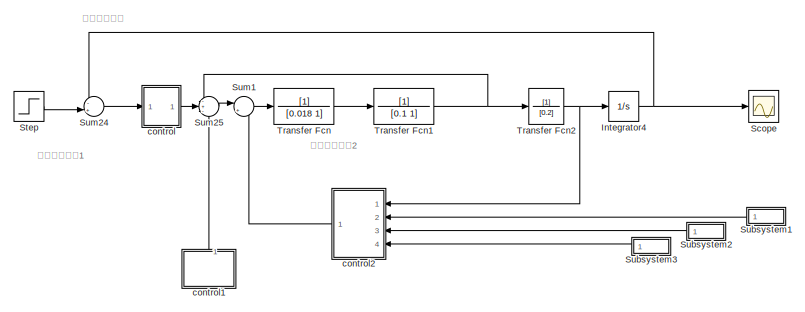
[diagram: root canvas - part 1/5, top left region]
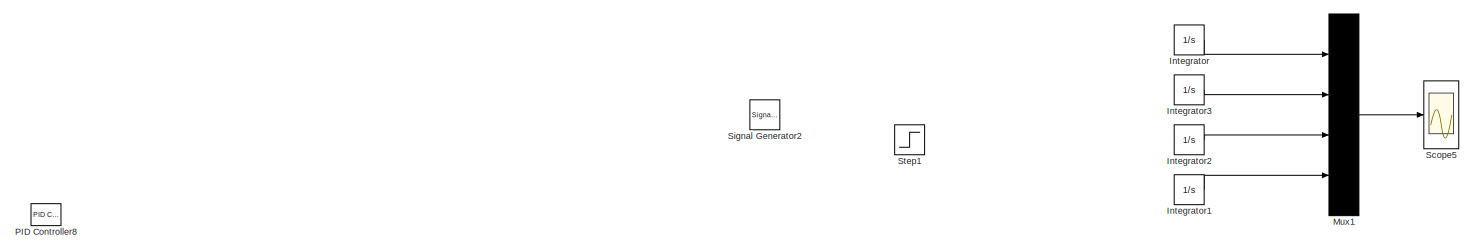
[diagram: root canvas - part 2/5, top right region]
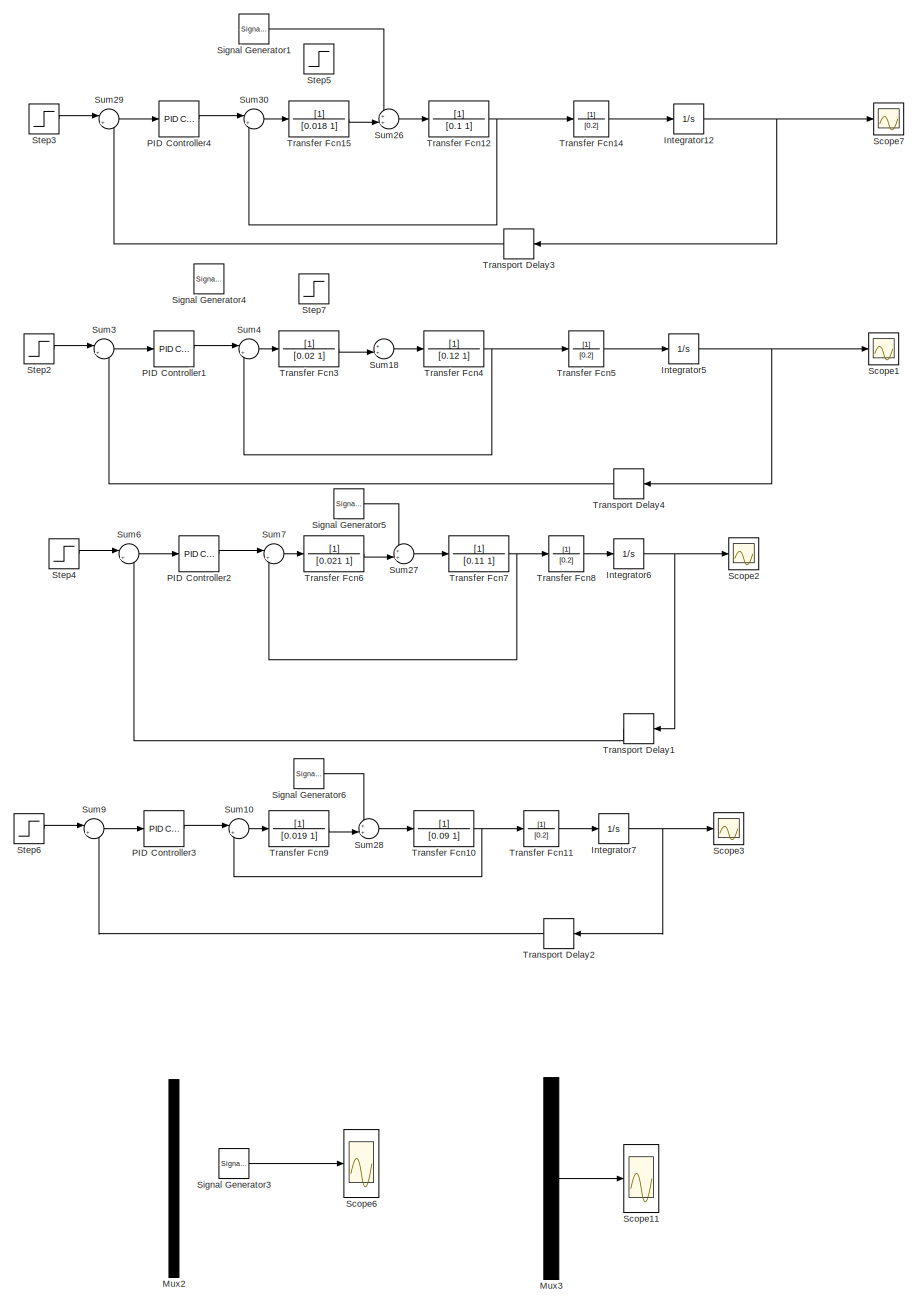
[diagram: root canvas - part 3/5, middle left region]
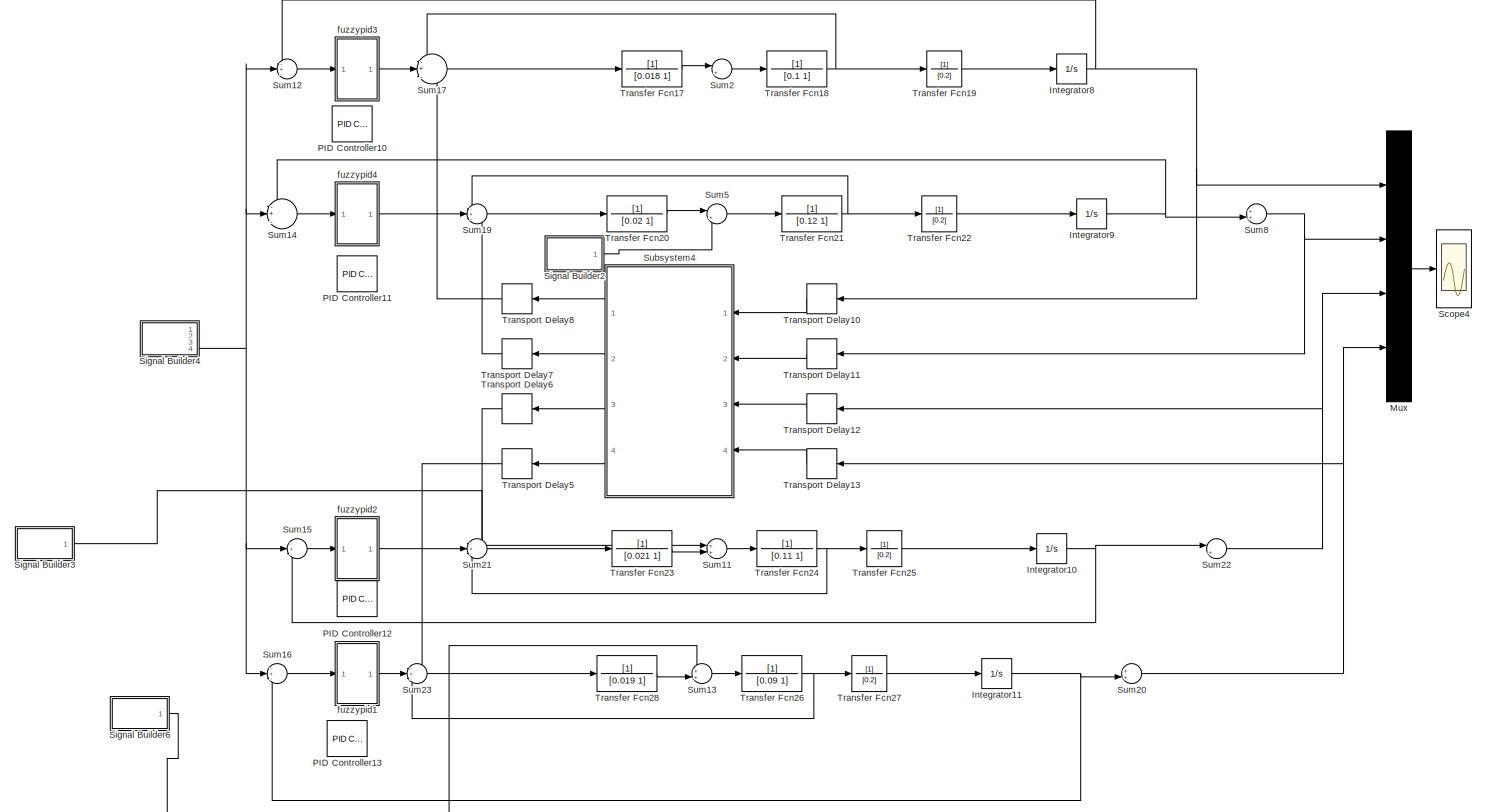
[diagram: root canvas - part 4/5, central region]
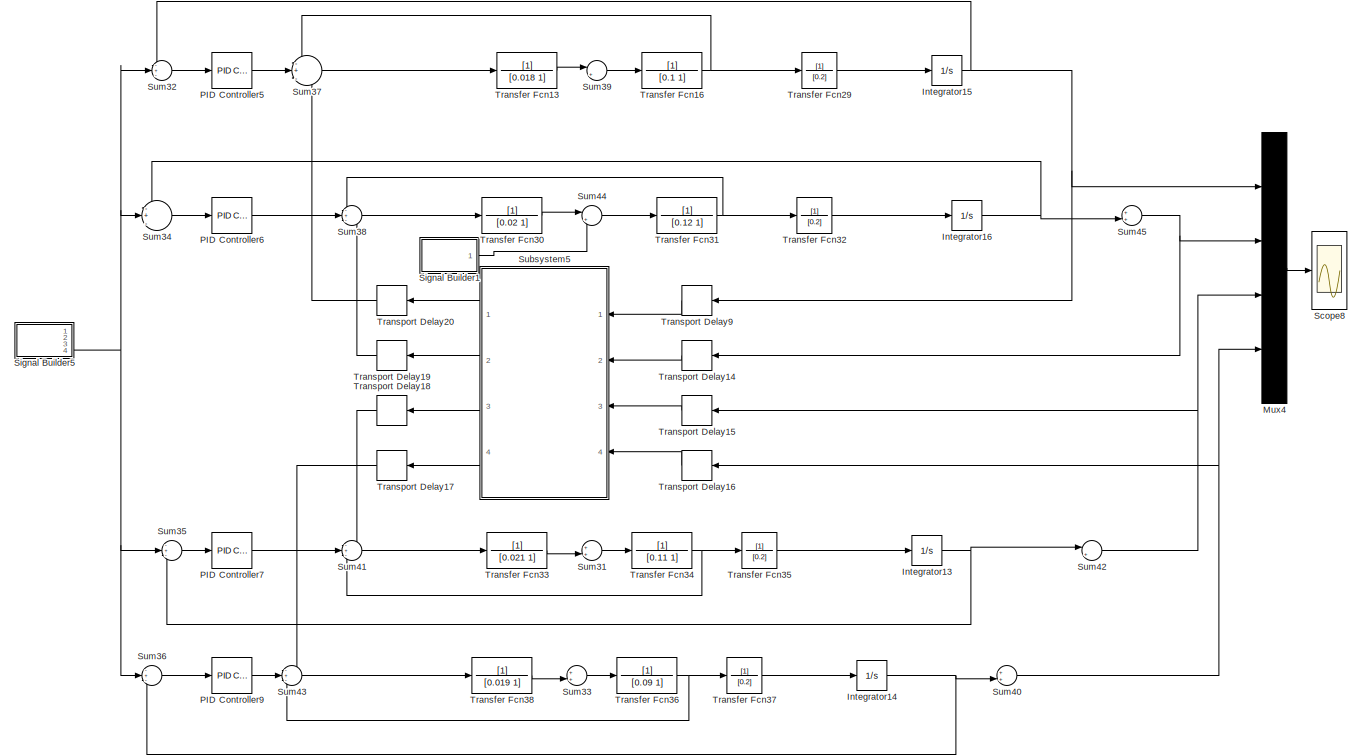
[diagram: root canvas - part 5/5, bottom right region]
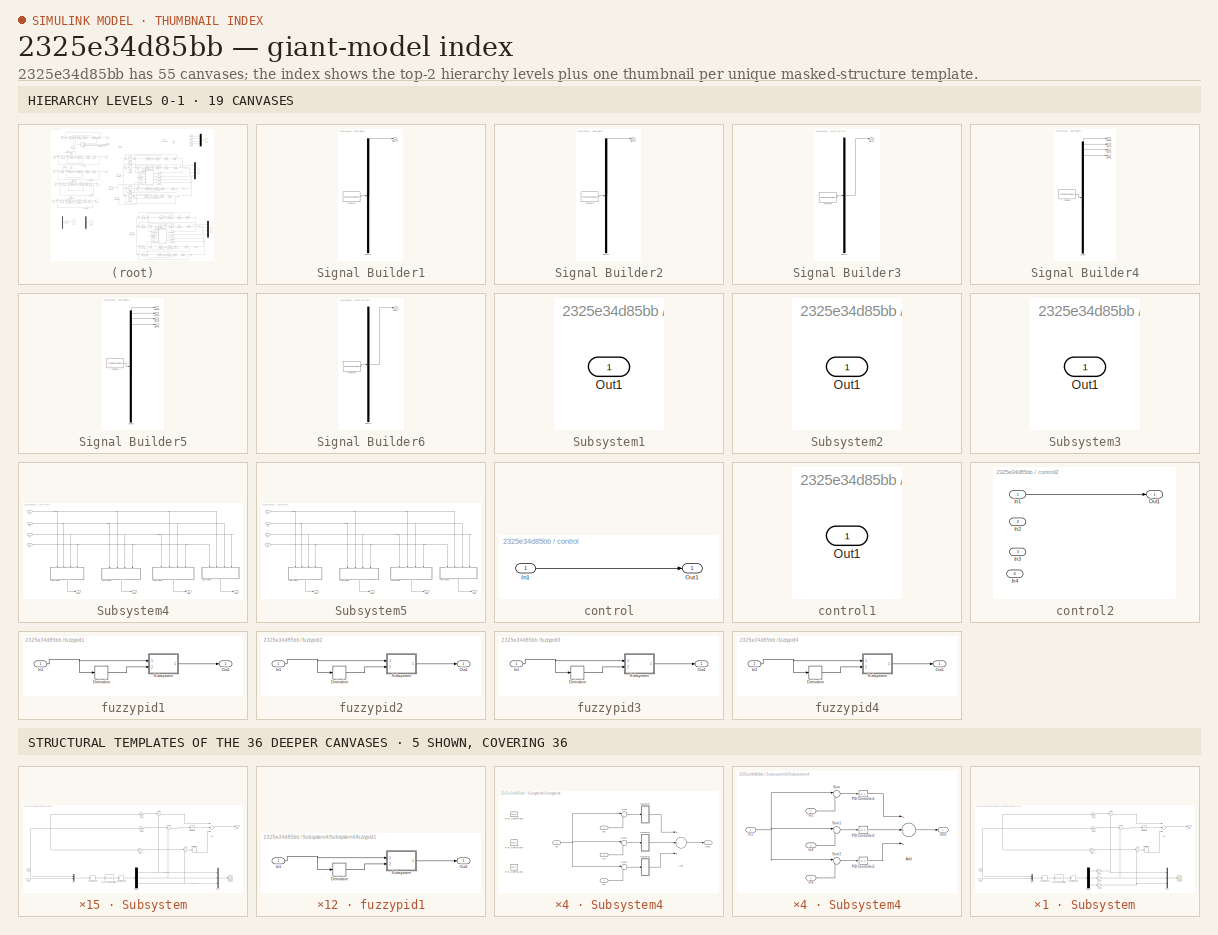
[diagram: thumbnail index - top-2 hierarchy levels (19 canvases) + 5 structural-template representatives of the remaining 36 canvases]
MODEL slx_2325e34d85bb
KIND model
BLOCK [Integrator] Integrator
  Ports = [1, 1]
BLOCK [Integrator] Integrator1
  Ports = [1, 1]
BLOCK [Integrator] Integrator10
  Ports = [1, 1]
BLOCK [Integrator] Integrator11
  Ports = [1, 1]
BLOCK [Integrator] Integrator12
  Ports = [1, 1]
BLOCK [Integrator] Integrator13
  Ports = [1, 1]
BLOCK [Integrator] Integrator14
  Ports = [1, 1]
BLOCK [Integrator] Integrator15
  Ports = [1, 1]
BLOCK [Integrator] Integrator16
  Ports = [1, 1]
BLOCK [Integrator] Integrator2
  Ports = [1, 1]
BLOCK [Integrator] Integrator3
  Ports = [1, 1]
BLOCK [Integrator] Integrator4
  Ports = [1, 1]
BLOCK [Integrator] Integrator5
  Ports = [1, 1]
BLOCK [Integrator] Integrator6
  Ports = [1, 1]
BLOCK [Integrator] Integrator7
  Ports = [1, 1]
BLOCK [Integrator] Integrator8
  Ports = [1, 1]
BLOCK [Integrator] Integrator9
  Ports = [1, 1]
BLOCK [Mux] Mux
  DisplayOption = bar
  Ports = [4, 1]
BLOCK [Mux] Mux1
  DisplayOption = bar
  Ports = [4, 1]
BLOCK [Mux] Mux2
  DisplayOption = bar
  Ports = [4, 1]
BLOCK [Mux] Mux3
  DisplayOption = bar
  Ports = [4, 1]
BLOCK [Mux] Mux4
  DisplayOption = bar
  Ports = [4, 1]
BLOCK [Reference] PID Controller1  REF=simulink/Continuous/PID Controller
  AntiWindupMode = none
  Controller = PID
  D = 0.190106280421876
  DOutDataTypeStr = Inherit: Inherit via internal rule
  DOutMax = []
  DOutMin = []
  DParamDataTypeStr = Inherit: Inherit via internal rule
  DParamMax = []
  DParamMin = []
  DifferentiatorICPrevScaledInput = 0
  DifferentiatorOutDataTypeStr = Inherit: Inherit via internal rule
  DifferentiatorOutMax = []
  DifferentiatorOutMin = []
  ExternalReset = none
  FilterContinuousStateAttributes = ''
  FilterMethod = Forward Euler
  FilterOutDataTypeStr = Inherit: Inherit via internal rule
  FilterOutMax = []
  FilterOutMin = []
  FilterRTWStateStorageClass = Auto
  FilterStateMustResolveToSignalObject = off
  Form = Parallel
  I = 0.409606906541511
  IOutDataTypeStr = Inherit: Inherit via internal rule
  IOutMax = []
  IOutMin = []
  IParamDataTypeStr = Inherit: Inherit via internal rule
  IParamMax = []
  IParamMin = []
  IgnoreLimit = off
  InitialConditionForFilter = 0
  InitialConditionForIntegrator = 0
  InitialConditionSource = internal
  IntegratorContinuousStateAttributes = ''
  IntegratorMethod = Forward Euler
  IntegratorOutDataTypeStr = Inherit: Inherit via internal rule
  IntegratorOutMax = []
  IntegratorOutMin = []
  IntegratorRTWStateStorageClass = Auto
  IntegratorStateMustResolveToSignalObject = off
  Kb = 1
  KbOutDataTypeStr = Inherit: Inherit via internal rule
  KbOutMax = []
  KbOutMin = []
  KbParamDataTypeStr = Inherit: Inherit via internal rule
  KbParamMax = []
  KbParamMin = []
  Kt = 1
  KtOutDataTypeStr = Inherit: Inherit via internal rule
  KtOutMax = []
  KtOutMin = []
  KtParamDataTypeStr = Inherit: Inherit via internal rule
  KtParamMax = []
  KtParamMin = []
  LimitOutput = off
  LinearizeAsGain = on
  LockScale = off
  LowerSaturationLimit = -inf
  N = 113.521570556965
  NOutDataTypeStr = Inherit: Inherit via internal rule
  NOutMax = []
  NOutMin = []
  NParamDataTypeStr = Inherit: Inherit via internal rule
  NParamMax = []
  NParamMin = []
  P = 4.34348893595362
  POutDataTypeStr = Inherit: Inherit via internal rule
  POutMax = []
  POutMin = []
  PParamDataTypeStr = Inherit: Inherit via internal rule
  PParamMax = []
  PParamMin = []
  Ports = [1, 1]
  RndMeth = Floor
  SampleTime = -1
  SaturateOnIntegerOverflow = off
  SaturationOutDataTypeStr = Inherit: Same as input
  SaturationOutMax = []
  SaturationOutMin = []
  SourceBlock = simulink/Continuous/PID Controller
  SourceType = PID 1dof
  SumAccumDataTypeStr = Inherit: Inherit via internal rule
  SumDAccumDataTypeStr = Inherit: Inherit via internal rule
  SumDOutDataTypeStr = Inherit: Inherit via internal rule
  SumDOutMax = []
  SumDOutMin = []
  SumI1AccumDataTypeStr = Inherit: Inherit via internal rule
  SumI1OutDataTypeStr = Inherit: Inherit via internal rule
  SumI1OutMax = []
  SumI1OutMin = []
  SumI2AccumDataTypeStr = Inherit: Inherit via internal rule
  SumI2OutDataTypeStr = Inherit: Inherit via internal rule
  SumI2OutMax = []
  SumI2OutMin = []
  SumI3AccumDataTypeStr = Inherit: Inherit via internal rule
  SumI3OutDataTypeStr = Inherit: Inherit via internal rule
  SumI3OutMax = []
  SumI3OutMin = []
  SumOutDataTypeStr = Inherit: Inherit via internal rule
  SumOutMax = []
  SumOutMin = []
  TimeDomain = Continuous-time
  TrackingMode = off
  UpperSaturationLimit = inf
  UseFilter = on
  ZeroCross = on
BLOCK [Reference] PID Controller10  REF=simulink/Continuous/PID Controller
  AntiWindupMode = none
  Controller = PID
  D = 0.147050814476134
  DOutDataTypeStr = Inherit: Inherit via internal rule
  DOutMax = []
  DOutMin = []
  DParamDataTypeStr = Inherit: Inherit via internal rule
  DParamMax = []
  DParamMin = []
  DifferentiatorICPrevScaledInput = 0
  DifferentiatorOutDataTypeStr = Inherit: Inherit via internal rule
  DifferentiatorOutMax = []
  DifferentiatorOutMin = []
  ExternalReset = none
  FilterContinuousStateAttributes = ''
  FilterMethod = Forward Euler
  FilterOutDataTypeStr = Inherit: Inherit via internal rule
  FilterOutMax = []
  FilterOutMin = []
  FilterRTWStateStorageClass = Auto
  FilterStateMustResolveToSignalObject = off
  Form = Parallel
  I = 0.428539114293849
  IOutDataTypeStr = Inherit: Inherit via internal rule
  IOutMax = []
  IOutMin = []
  IParamDataTypeStr = Inherit: Inherit via internal rule
  IParamMax = []
  IParamMin = []
  IgnoreLimit = off
  InitialConditionForFilter = 0
  InitialConditionForIntegrator = 0
  InitialConditionSource = internal
  IntegratorContinuousStateAttributes = ''
  IntegratorMethod = Forward Euler
  IntegratorOutDataTypeStr = Inherit: Inherit via internal rule
  IntegratorOutMax = []
  IntegratorOutMin = []
  IntegratorRTWStateStorageClass = Auto
  IntegratorStateMustResolveToSignalObject = off
  Kb = 1
  KbOutDataTypeStr = Inherit: Inherit via internal rule
  KbOutMax = []
  KbOutMin = []
  KbParamDataTypeStr = Inherit: Inherit via internal rule
  KbParamMax = []
  KbParamMin = []
  Kt = 1
  KtOutDataTypeStr = Inherit: Inherit via internal rule
  KtOutMax = []
  KtOutMin = []
  KtParamDataTypeStr = Inherit: Inherit via internal rule
  KtParamMax = []
  KtParamMin = []
  LimitOutput = off
  LinearizeAsGain = on
  LockScale = off
  LowerSaturationLimit = -inf
  N = 115.714109449814
  NOutDataTypeStr = Inherit: Inherit via internal rule
  NOutMax = []
  NOutMin = []
  NParamDataTypeStr = Inherit: Inherit via internal rule
  NParamMax = []
  NParamMin = []
  P = 4.45385591758043
  POutDataTypeStr = Inherit: Inherit via internal rule
  POutMax = []
  POutMin = []
  PParamDataTypeStr = Inherit: Inherit via internal rule
  PParamMax = []
  PParamMin = []
  Ports = [1, 1]
  RndMeth = Floor
  SampleTime = -1
  SaturateOnIntegerOverflow = off
  SaturationOutDataTypeStr = Inherit: Same as input
  SaturationOutMax = []
  SaturationOutMin = []
  SourceBlock = simulink/Continuous/PID Controller
  SourceType = PID 1dof
  SumAccumDataTypeStr = Inherit: Inherit via internal rule
  SumDAccumDataTypeStr = Inherit: Inherit via internal rule
  SumDOutDataTypeStr = Inherit: Inherit via internal rule
  SumDOutMax = []
  SumDOutMin = []
  SumI1AccumDataTypeStr = Inherit: Inherit via internal rule
  SumI1OutDataTypeStr = Inherit: Inherit via internal rule
  SumI1OutMax = []
  SumI1OutMin = []
  SumI2AccumDataTypeStr = Inherit: Inherit via internal rule
  SumI2OutDataTypeStr = Inherit: Inherit via internal rule
  SumI2OutMax = []
  SumI2OutMin = []
  SumI3AccumDataTypeStr = Inherit: Inherit via internal rule
  SumI3OutDataTypeStr = Inherit: Inherit via internal rule
  SumI3OutMax = []
  SumI3OutMin = []
  SumOutDataTypeStr = Inherit: Inherit via internal rule
  SumOutMax = []
  SumOutMin = []
  TimeDomain = Continuous-time
  TrackingMode = off
  UpperSaturationLimit = inf
  UseFilter = on
  ZeroCross = on
BLOCK [Reference] PID Controller11  REF=simulink/Continuous/PID Controller
  AntiWindupMode = none
  Controller = PID
  D = 0.190106280421876
  DOutDataTypeStr = Inherit: Inherit via internal rule
  DOutMax = []
  DOutMin = []
  DParamDataTypeStr = Inherit: Inherit via internal rule
  DParamMax = []
  DParamMin = []
  DifferentiatorICPrevScaledInput = 0
  DifferentiatorOutDataTypeStr = Inherit: Inherit via internal rule
  DifferentiatorOutMax = []
  DifferentiatorOutMin = []
  ExternalReset = none
  FilterContinuousStateAttributes = ''
  FilterMethod = Forward Euler
  FilterOutDataTypeStr = Inherit: Inherit via internal rule
  FilterOutMax = []
  FilterOutMin = []
  FilterRTWStateStorageClass = Auto
  FilterStateMustResolveToSignalObject = off
  Form = Parallel
  I = 0.409606906541511
  IOutDataTypeStr = Inherit: Inherit via internal rule
  IOutMax = []
  IOutMin = []
  IParamDataTypeStr = Inherit: Inherit via internal rule
  IParamMax = []
  IParamMin = []
  IgnoreLimit = off
  InitialConditionForFilter = 0
  InitialConditionForIntegrator = 0
  InitialConditionSource = internal
  IntegratorContinuousStateAttributes = ''
  IntegratorMethod = Forward Euler
  IntegratorOutDataTypeStr = Inherit: Inherit via internal rule
  IntegratorOutMax = []
  IntegratorOutMin = []
  IntegratorRTWStateStorageClass = Auto
  IntegratorStateMustResolveToSignalObject = off
  Kb = 1
  KbOutDataTypeStr = Inherit: Inherit via internal rule
  KbOutMax = []
  KbOutMin = []
  KbParamDataTypeStr = Inherit: Inherit via internal rule
  KbParamMax = []
  KbParamMin = []
  Kt = 1
  KtOutDataTypeStr = Inherit: Inherit via internal rule
  KtOutMax = []
  KtOutMin = []
  KtParamDataTypeStr = Inherit: Inherit via internal rule
  KtParamMax = []
  KtParamMin = []
  LimitOutput = off
  LinearizeAsGain = on
  LockScale = off
  LowerSaturationLimit = -inf
  N = 113.521570556965
  NOutDataTypeStr = Inherit: Inherit via internal rule
  NOutMax = []
  NOutMin = []
  NParamDataTypeStr = Inherit: Inherit via internal rule
  NParamMax = []
  NParamMin = []
  P = 4.34348893595362
  POutDataTypeStr = Inherit: Inherit via internal rule
  POutMax = []
  POutMin = []
  PParamDataTypeStr = Inherit: Inherit via internal rule
  PParamMax = []
  PParamMin = []
  Ports = [1, 1]
  RndMeth = Floor
  SampleTime = -1
  SaturateOnIntegerOverflow = off
  SaturationOutDataTypeStr = Inherit: Same as input
  SaturationOutMax = []
  SaturationOutMin = []
  SourceBlock = simulink/Continuous/PID Controller
  SourceType = PID 1dof
  SumAccumDataTypeStr = Inherit: Inherit via internal rule
  SumDAccumDataTypeStr = Inherit: Inherit via internal rule
  SumDOutDataTypeStr = Inherit: Inherit via internal rule
  SumDOutMax = []
  SumDOutMin = []
  SumI1AccumDataTypeStr = Inherit: Inherit via internal rule
  SumI1OutDataTypeStr = Inherit: Inherit via internal rule
  SumI1OutMax = []
  SumI1OutMin = []
  SumI2AccumDataTypeStr = Inherit: Inherit via internal rule
  SumI2OutDataTypeStr = Inherit: Inherit via internal rule
  SumI2OutMax = []
  SumI2OutMin = []
  SumI3AccumDataTypeStr = Inherit: Inherit via internal rule
  SumI3OutDataTypeStr = Inherit: Inherit via internal rule
  SumI3OutMax = []
  SumI3OutMin = []
  SumOutDataTypeStr = Inherit: Inherit via internal rule
  SumOutMax = []
  SumOutMin = []
  TimeDomain = Continuous-time
  TrackingMode = off
  UpperSaturationLimit = inf
  UseFilter = on
  ZeroCross = on
BLOCK [Reference] PID Controller12  REF=simulink/Continuous/PID Controller
  AntiWindupMode = none
  Controller = PID
  D = 0.176716531069936
  DOutDataTypeStr = Inherit: Inherit via internal rule
  DOutMax = []
  DOutMin = []
  DParamDataTypeStr = Inherit: Inherit via internal rule
  DParamMax = []
  DParamMin = []
  DifferentiatorICPrevScaledInput = 0
  DifferentiatorOutDataTypeStr = Inherit: Inherit via internal rule
  DifferentiatorOutMax = []
  DifferentiatorOutMin = []
  ExternalReset = none
  FilterContinuousStateAttributes = ''
  FilterMethod = Forward Euler
  FilterOutDataTypeStr = Inherit: Inherit via internal rule
  FilterOutMax = []
  FilterOutMin = []
  FilterRTWStateStorageClass = Auto
  FilterStateMustResolveToSignalObject = off
  Form = Parallel
  I = 0.418612157121434
  IOutDataTypeStr = Inherit: Inherit via internal rule
  IOutMax = []
  IOutMin = []
  IParamDataTypeStr = Inherit: Inherit via internal rule
  IParamMax = []
  IParamMin = []
  IgnoreLimit = off
  InitialConditionForFilter = 0
  InitialConditionForIntegrator = 0
  InitialConditionSource = internal
  IntegratorContinuousStateAttributes = ''
  IntegratorMethod = Forward Euler
  IntegratorOutDataTypeStr = Inherit: Inherit via internal rule
  IntegratorOutMax = []
  IntegratorOutMin = []
  IntegratorRTWStateStorageClass = Auto
  IntegratorStateMustResolveToSignalObject = off
  Kb = 1
  KbOutDataTypeStr = Inherit: Inherit via internal rule
  KbOutMax = []
  KbOutMin = []
  KbParamDataTypeStr = Inherit: Inherit via internal rule
  KbParamMax = []
  KbParamMin = []
  Kt = 1
  KtOutDataTypeStr = Inherit: Inherit via internal rule
  KtOutMax = []
  KtOutMin = []
  KtParamDataTypeStr = Inherit: Inherit via internal rule
  KtParamMax = []
  KtParamMin = []
  LimitOutput = off
  LinearizeAsGain = on
  LockScale = off
  LowerSaturationLimit = -inf
  N = 115.244644738995
  NOutDataTypeStr = Inherit: Inherit via internal rule
  NOutMax = []
  NOutMin = []
  NParamDataTypeStr = Inherit: Inherit via internal rule
  NParamMax = []
  NParamMin = []
  P = 4.3714761921553
  POutDataTypeStr = Inherit: Inherit via internal rule
  POutMax = []
  POutMin = []
  PParamDataTypeStr = Inherit: Inherit via internal rule
  PParamMax = []
  PParamMin = []
  Ports = [1, 1]
  RndMeth = Floor
  SampleTime = -1
  SaturateOnIntegerOverflow = off
  SaturationOutDataTypeStr = Inherit: Same as input
  SaturationOutMax = []
  SaturationOutMin = []
  SourceBlock = simulink/Continuous/PID Controller
  SourceType = PID 1dof
  SumAccumDataTypeStr = Inherit: Inherit via internal rule
  SumDAccumDataTypeStr = Inherit: Inherit via internal rule
  SumDOutDataTypeStr = Inherit: Inherit via internal rule
  SumDOutMax = []
  SumDOutMin = []
  SumI1AccumDataTypeStr = Inherit: Inherit via internal rule
  SumI1OutDataTypeStr = Inherit: Inherit via internal rule
  SumI1OutMax = []
  SumI1OutMin = []
  SumI2AccumDataTypeStr = Inherit: Inherit via internal rule
  SumI2OutDataTypeStr = Inherit: Inherit via internal rule
  SumI2OutMax = []
  SumI2OutMin = []
  SumI3AccumDataTypeStr = Inherit: Inherit via internal rule
  SumI3OutDataTypeStr = Inherit: Inherit via internal rule
  SumI3OutMax = []
  SumI3OutMin = []
  SumOutDataTypeStr = Inherit: Inherit via internal rule
  SumOutMax = []
  SumOutMin = []
  TimeDomain = Continuous-time
  TrackingMode = off
  UpperSaturationLimit = inf
  UseFilter = on
  ZeroCross = on
BLOCK [Reference] PID Controller13  REF=simulink/Continuous/PID Controller
  AntiWindupMode = none
  Controller = PID
  D = 0.137661903224342
  DOutDataTypeStr = Inherit: Inherit via internal rule
  DOutMax = []
  DOutMin = []
  DParamDataTypeStr = Inherit: Inherit via internal rule
  DParamMax = []
  DParamMin = []
  DifferentiatorICPrevScaledInput = 0
  DifferentiatorOutDataTypeStr = Inherit: Inherit via internal rule
  DifferentiatorOutMax = []
  DifferentiatorOutMin = []
  ExternalReset = none
  FilterContinuousStateAttributes = ''
  FilterMethod = Forward Euler
  FilterOutDataTypeStr = Inherit: Inherit via internal rule
  FilterOutMax = []
  FilterOutMin = []
  FilterRTWStateStorageClass = Auto
  FilterStateMustResolveToSignalObject = off
  Form = Parallel
  I = 0.450019772467081
  IOutDataTypeStr = Inherit: Inherit via internal rule
  IOutMax = []
  IOutMin = []
  IParamDataTypeStr = Inherit: Inherit via internal rule
  IParamMax = []
  IParamMin = []
  IgnoreLimit = off
  InitialConditionForFilter = 0
  InitialConditionForIntegrator = 0
  InitialConditionSource = internal
  IntegratorContinuousStateAttributes = ''
  IntegratorMethod = Forward Euler
  IntegratorOutDataTypeStr = Inherit: Inherit via internal rule
  IntegratorOutMax = []
  IntegratorOutMin = []
  IntegratorRTWStateStorageClass = Auto
  IntegratorStateMustResolveToSignalObject = off
  Kb = 1
  KbOutDataTypeStr = Inherit: Inherit via internal rule
  KbOutMax = []
  KbOutMin = []
  KbParamDataTypeStr = Inherit: Inherit via internal rule
  KbParamMax = []
  KbParamMin = []
  Kt = 1
  KtOutDataTypeStr = Inherit: Inherit via internal rule
  KtOutMax = []
  KtOutMin = []
  KtParamDataTypeStr = Inherit: Inherit via internal rule
  KtParamMax = []
  KtParamMin = []
  LimitOutput = off
  LinearizeAsGain = on
  LockScale = off
  LowerSaturationLimit = -inf
  N = 119.172045893014
  NOutDataTypeStr = Inherit: Inherit via internal rule
  NOutMax = []
  NOutMin = []
  NParamDataTypeStr = Inherit: Inherit via internal rule
  NParamMax = []
  NParamMin = []
  P = 4.54060551459518
  POutDataTypeStr = Inherit: Inherit via internal rule
  POutMax = []
  POutMin = []
  PParamDataTypeStr = Inherit: Inherit via internal rule
  PParamMax = []
  PParamMin = []
  Ports = [1, 1]
  RndMeth = Floor
  SampleTime = -1
  SaturateOnIntegerOverflow = off
  SaturationOutDataTypeStr = Inherit: Same as input
  SaturationOutMax = []
  SaturationOutMin = []
  SourceBlock = simulink/Continuous/PID Controller
  SourceType = PID 1dof
  SumAccumDataTypeStr = Inherit: Inherit via internal rule
  SumDAccumDataTypeStr = Inherit: Inherit via internal rule
  SumDOutDataTypeStr = Inherit: Inherit via internal rule
  SumDOutMax = []
  SumDOutMin = []
  SumI1AccumDataTypeStr = Inherit: Inherit via internal rule
  SumI1OutDataTypeStr = Inherit: Inherit via internal rule
  SumI1OutMax = []
  SumI1OutMin = []
  SumI2AccumDataTypeStr = Inherit: Inherit via internal rule
  SumI2OutDataTypeStr = Inherit: Inherit via internal rule
  SumI2OutMax = []
  SumI2OutMin = []
  SumI3AccumDataTypeStr = Inherit: Inherit via internal rule
  SumI3OutDataTypeStr = Inherit: Inherit via internal rule
  SumI3OutMax = []
  SumI3OutMin = []
  SumOutDataTypeStr = Inherit: Inherit via internal rule
  SumOutMax = []
  SumOutMin = []
  TimeDomain = Continuous-time
  TrackingMode = off
  UpperSaturationLimit = inf
  UseFilter = on
  ZeroCross = on
BLOCK [Reference] PID Controller2  REF=simulink/Continuous/PID Controller
  AntiWindupMode = none
  Controller = PID
  D = 0.176716531069936
  DOutDataTypeStr = Inherit: Inherit via internal rule
  DOutMax = []
  DOutMin = []
  DParamDataTypeStr = Inherit: Inherit via internal rule
  DParamMax = []
  DParamMin = []
  DifferentiatorICPrevScaledInput = 0
  DifferentiatorOutDataTypeStr = Inherit: Inherit via internal rule
  DifferentiatorOutMax = []
  DifferentiatorOutMin = []
  ExternalReset = none
  FilterContinuousStateAttributes = ''
  FilterMethod = Forward Euler
  FilterOutDataTypeStr = Inherit: Inherit via internal rule
  FilterOutMax = []
  FilterOutMin = []
  FilterRTWStateStorageClass = Auto
  FilterStateMustResolveToSignalObject = off
  Form = Parallel
  I = 0.418612157121434
  IOutDataTypeStr = Inherit: Inherit via internal rule
  IOutMax = []
  IOutMin = []
  IParamDataTypeStr = Inherit: Inherit via internal rule
  IParamMax = []
  IParamMin = []
  IgnoreLimit = off
  InitialConditionForFilter = 0
  InitialConditionForIntegrator = 0
  InitialConditionSource = internal
  IntegratorContinuousStateAttributes = ''
  IntegratorMethod = Forward Euler
  IntegratorOutDataTypeStr = Inherit: Inherit via internal rule
  IntegratorOutMax = []
  IntegratorOutMin = []
  IntegratorRTWStateStorageClass = Auto
  IntegratorStateMustResolveToSignalObject = off
  Kb = 1
  KbOutDataTypeStr = Inherit: Inherit via internal rule
  KbOutMax = []
  KbOutMin = []
  KbParamDataTypeStr = Inherit: Inherit via internal rule
  KbParamMax = []
  KbParamMin = []
  Kt = 1
  KtOutDataTypeStr = Inherit: Inherit via internal rule
  KtOutMax = []
  KtOutMin = []
  KtParamDataTypeStr = Inherit: Inherit via internal rule
  KtParamMax = []
  KtParamMin = []
  LimitOutput = off
  LinearizeAsGain = on
  LockScale = off
  LowerSaturationLimit = -inf
  N = 115.244644738995
  NOutDataTypeStr = Inherit: Inherit via internal rule
  NOutMax = []
  NOutMin = []
  NParamDataTypeStr = Inherit: Inherit via internal rule
  NParamMax = []
  NParamMin = []
  P = 4.3714761921553
  POutDataTypeStr = Inherit: Inherit via internal rule
  POutMax = []
  POutMin = []
  PParamDataTypeStr = Inherit: Inherit via internal rule
  PParamMax = []
  PParamMin = []
  Ports = [1, 1]
  RndMeth = Floor
  SampleTime = -1
  SaturateOnIntegerOverflow = off
  SaturationOutDataTypeStr = Inherit: Same as input
  SaturationOutMax = []
  SaturationOutMin = []
  SourceBlock = simulink/Continuous/PID Controller
  SourceType = PID 1dof
  SumAccumDataTypeStr = Inherit: Inherit via internal rule
  SumDAccumDataTypeStr = Inherit: Inherit via internal rule
  SumDOutDataTypeStr = Inherit: Inherit via internal rule
  SumDOutMax = []
  SumDOutMin = []
  SumI1AccumDataTypeStr = Inherit: Inherit via internal rule
  SumI1OutDataTypeStr = Inherit: Inherit via internal rule
  SumI1OutMax = []
  SumI1OutMin = []
  SumI2AccumDataTypeStr = Inherit: Inherit via internal rule
  SumI2OutDataTypeStr = Inherit: Inherit via internal rule
  SumI2OutMax = []
  SumI2OutMin = []
  SumI3AccumDataTypeStr = Inherit: Inherit via internal rule
  SumI3OutDataTypeStr = Inherit: Inherit via internal rule
  SumI3OutMax = []
  SumI3OutMin = []
  SumOutDataTypeStr = Inherit: Inherit via internal rule
  SumOutMax = []
  SumOutMin = []
  TimeDomain = Continuous-time
  TrackingMode = off
  UpperSaturationLimit = inf
  UseFilter = on
  ZeroCross = on
BLOCK [Reference] PID Controller3  REF=simulink/Continuous/PID Controller
  AntiWindupMode = none
  Controller = PID
  D = 0.137661903224342
  DOutDataTypeStr = Inherit: Inherit via internal rule
  DOutMax = []
  DOutMin = []
  DParamDataTypeStr = Inherit: Inherit via internal rule
  DParamMax = []
  DParamMin = []
  DifferentiatorICPrevScaledInput = 0
  DifferentiatorOutDataTypeStr = Inherit: Inherit via internal rule
  DifferentiatorOutMax = []
  DifferentiatorOutMin = []
  ExternalReset = none
  FilterContinuousStateAttributes = ''
  FilterMethod = Forward Euler
  FilterOutDataTypeStr = Inherit: Inherit via internal rule
  FilterOutMax = []
  FilterOutMin = []
  FilterRTWStateStorageClass = Auto
  FilterStateMustResolveToSignalObject = off
  Form = Parallel
  I = 0.450019772467081
  IOutDataTypeStr = Inherit: Inherit via internal rule
  IOutMax = []
  IOutMin = []
  IParamDataTypeStr = Inherit: Inherit via internal rule
  IParamMax = []
  IParamMin = []
  IgnoreLimit = off
  InitialConditionForFilter = 0
  InitialConditionForIntegrator = 0
  InitialConditionSource = internal
  IntegratorContinuousStateAttributes = ''
  IntegratorMethod = Forward Euler
  IntegratorOutDataTypeStr = Inherit: Inherit via internal rule
  IntegratorOutMax = []
  IntegratorOutMin = []
  IntegratorRTWStateStorageClass = Auto
  IntegratorStateMustResolveToSignalObject = off
  Kb = 1
  KbOutDataTypeStr = Inherit: Inherit via internal rule
  KbOutMax = []
  KbOutMin = []
  KbParamDataTypeStr = Inherit: Inherit via internal rule
  KbParamMax = []
  KbParamMin = []
  Kt = 1
  KtOutDataTypeStr = Inherit: Inherit via internal rule
  KtOutMax = []
  KtOutMin = []
  KtParamDataTypeStr = Inherit: Inherit via internal rule
  KtParamMax = []
  KtParamMin = []
  LimitOutput = off
  LinearizeAsGain = on
  LockScale = off
  LowerSaturationLimit = -inf
  N = 119.172045893014
  NOutDataTypeStr = Inherit: Inherit via internal rule
  NOutMax = []
  NOutMin = []
  NParamDataTypeStr = Inherit: Inherit via internal rule
  NParamMax = []
  NParamMin = []
  P = 4.54060551459518
  POutDataTypeStr = Inherit: Inherit via internal rule
  POutMax = []
  POutMin = []
  PParamDataTypeStr = Inherit: Inherit via internal rule
  PParamMax = []
  PParamMin = []
  Ports = [1, 1]
  RndMeth = Floor
  SampleTime = -1
  SaturateOnIntegerOverflow = off
  SaturationOutDataTypeStr = Inherit: Same as input
  SaturationOutMax = []
  SaturationOutMin = []
  SourceBlock = simulink/Continuous/PID Controller
  SourceType = PID 1dof
  SumAccumDataTypeStr = Inherit: Inherit via internal rule
  SumDAccumDataTypeStr = Inherit: Inherit via internal rule
  SumDOutDataTypeStr = Inherit: Inherit via internal rule
  SumDOutMax = []
  SumDOutMin = []
  SumI1AccumDataTypeStr = Inherit: Inherit via internal rule
  SumI1OutDataTypeStr = Inherit: Inherit via internal rule
  SumI1OutMax = []
  SumI1OutMin = []
  SumI2AccumDataTypeStr = Inherit: Inherit via internal rule
  SumI2OutDataTypeStr = Inherit: Inherit via internal rule
  SumI2OutMax = []
  SumI2OutMin = []
  SumI3AccumDataTypeStr = Inherit: Inherit via internal rule
  SumI3OutDataTypeStr = Inherit: Inherit via internal rule
  SumI3OutMax = []
  SumI3OutMin = []
  SumOutDataTypeStr = Inherit: Inherit via internal rule
  SumOutMax = []
  SumOutMin = []
  TimeDomain = Continuous-time
  TrackingMode = off
  UpperSaturationLimit = inf
  UseFilter = on
  ZeroCross = on
BLOCK [Reference] PID Controller4  REF=simulink/Continuous/PID Controller
  AntiWindupMode = none
  Controller = PID
  D = 0.147050814476134
  DOutDataTypeStr = Inherit: Inherit via internal rule
  DOutMax = []
  DOutMin = []
  DParamDataTypeStr = Inherit: Inherit via internal rule
  DParamMax = []
  DParamMin = []
  DifferentiatorICPrevScaledInput = 0
  DifferentiatorOutDataTypeStr = Inherit: Inherit via internal rule
  DifferentiatorOutMax = []
  DifferentiatorOutMin = []
  ExternalReset = none
  FilterContinuousStateAttributes = ''
  FilterMethod = Forward Euler
  FilterOutDataTypeStr = Inherit: Inherit via internal rule
  FilterOutMax = []
  FilterOutMin = []
  FilterRTWStateStorageClass = Auto
  FilterStateMustResolveToSignalObject = off
  Form = Parallel
  I = 0.428539114293849
  IOutDataTypeStr = Inherit: Inherit via internal rule
  IOutMax = []
  IOutMin = []
  IParamDataTypeStr = Inherit: Inherit via internal rule
  IParamMax = []
  IParamMin = []
  IgnoreLimit = off
  InitialConditionForFilter = 0
  InitialConditionForIntegrator = 0
  InitialConditionSource = internal
  IntegratorContinuousStateAttributes = ''
  IntegratorMethod = Forward Euler
  IntegratorOutDataTypeStr = Inherit: Inherit via internal rule
  IntegratorOutMax = []
  IntegratorOutMin = []
  IntegratorRTWStateStorageClass = Auto
  IntegratorStateMustResolveToSignalObject = off
  Kb = 1
  KbOutDataTypeStr = Inherit: Inherit via internal rule
  KbOutMax = []
  KbOutMin = []
  KbParamDataTypeStr = Inherit: Inherit via internal rule
  KbParamMax = []
  KbParamMin = []
  Kt = 1
  KtOutDataTypeStr = Inherit: Inherit via internal rule
  KtOutMax = []
  KtOutMin = []
  KtParamDataTypeStr = Inherit: Inherit via internal rule
  KtParamMax = []
  KtParamMin = []
  LimitOutput = off
  LinearizeAsGain = on
  LockScale = off
  LowerSaturationLimit = -inf
  N = 115.714109449814
  NOutDataTypeStr = Inherit: Inherit via internal rule
  NOutMax = []
  NOutMin = []
  NParamDataTypeStr = Inherit: Inherit via internal rule
  NParamMax = []
  NParamMin = []
  P = 4.45385591758043
  POutDataTypeStr = Inherit: Inherit via internal rule
  POutMax = []
  POutMin = []
  PParamDataTypeStr = Inherit: Inherit via internal rule
  PParamMax = []
  PParamMin = []
  Ports = [1, 1]
  RndMeth = Floor
  SampleTime = -1
  SaturateOnIntegerOverflow = off
  SaturationOutDataTypeStr = Inherit: Same as input
  SaturationOutMax = []
  SaturationOutMin = []
  SourceBlock = simulink/Continuous/PID Controller
  SourceType = PID 1dof
  SumAccumDataTypeStr = Inherit: Inherit via internal rule
  SumDAccumDataTypeStr = Inherit: Inherit via internal rule
  SumDOutDataTypeStr = Inherit: Inherit via internal rule
  SumDOutMax = []
  SumDOutMin = []
  SumI1AccumDataTypeStr = Inherit: Inherit via internal rule
  SumI1OutDataTypeStr = Inherit: Inherit via internal rule
  SumI1OutMax = []
  SumI1OutMin = []
  SumI2AccumDataTypeStr = Inherit: Inherit via internal rule
  SumI2OutDataTypeStr = Inherit: Inherit via internal rule
  SumI2OutMax = []
  SumI2OutMin = []
  SumI3AccumDataTypeStr = Inherit: Inherit via internal rule
  SumI3OutDataTypeStr = Inherit: Inherit via internal rule
  SumI3OutMax = []
  SumI3OutMin = []
  SumOutDataTypeStr = Inherit: Inherit via internal rule
  SumOutMax = []
  SumOutMin = []
  TimeDomain = Continuous-time
  TrackingMode = off
  UpperSaturationLimit = inf
  UseFilter = on
  ZeroCross = on
BLOCK [Reference] PID Controller5  REF=simulink/Continuous/PID Controller
  AntiWindupMode = none
  Controller = PID
  D = 0.147050814476134
  DOutDataTypeStr = Inherit: Inherit via internal rule
  DOutMax = []
  DOutMin = []
  DParamDataTypeStr = Inherit: Inherit via internal rule
  DParamMax = []
  DParamMin = []
  DifferentiatorICPrevScaledInput = 0
  DifferentiatorOutDataTypeStr = Inherit: Inherit via internal rule
  DifferentiatorOutMax = []
  DifferentiatorOutMin = []
  ExternalReset = none
  FilterContinuousStateAttributes = ''
  FilterMethod = Forward Euler
  FilterOutDataTypeStr = Inherit: Inherit via internal rule
  FilterOutMax = []
  FilterOutMin = []
  FilterRTWStateStorageClass = Auto
  FilterStateMustResolveToSignalObject = off
  Form = Parallel
  I = 0.428539114293849
  IOutDataTypeStr = Inherit: Inherit via internal rule
  IOutMax = []
  IOutMin = []
  IParamDataTypeStr = Inherit: Inherit via internal rule
  IParamMax = []
  IParamMin = []
  IgnoreLimit = off
  InitialConditionForFilter = 0
  InitialConditionForIntegrator = 0
  InitialConditionSource = internal
  IntegratorContinuousStateAttributes = ''
  IntegratorMethod = Forward Euler
  IntegratorOutDataTypeStr = Inherit: Inherit via internal rule
  IntegratorOutMax = []
  IntegratorOutMin = []
  IntegratorRTWStateStorageClass = Auto
  IntegratorStateMustResolveToSignalObject = off
  Kb = 1
  KbOutDataTypeStr = Inherit: Inherit via internal rule
  KbOutMax = []
  KbOutMin = []
  KbParamDataTypeStr = Inherit: Inherit via internal rule
  KbParamMax = []
  KbParamMin = []
  Kt = 1
  KtOutDataTypeStr = Inherit: Inherit via internal rule
  KtOutMax = []
  KtOutMin = []
  KtParamDataTypeStr = Inherit: Inherit via internal rule
  KtParamMax = []
  KtParamMin = []
  LimitOutput = off
  LinearizeAsGain = on
  LockScale = off
  LowerSaturationLimit = -inf
  N = 115.714109449814
  NOutDataTypeStr = Inherit: Inherit via internal rule
  NOutMax = []
  NOutMin = []
  NParamDataTypeStr = Inherit: Inherit via internal rule
  NParamMax = []
  NParamMin = []
  P = 4.45385591758043
  POutDataTypeStr = Inherit: Inherit via internal rule
  POutMax = []
  POutMin = []
  PParamDataTypeStr = Inherit: Inherit via internal rule
  PParamMax = []
  PParamMin = []
  Ports = [1, 1]
  RndMeth = Floor
  SampleTime = -1
  SaturateOnIntegerOverflow = off
  SaturationOutDataTypeStr = Inherit: Same as input
  SaturationOutMax = []
  SaturationOutMin = []
  SourceBlock = simulink/Continuous/PID Controller
  SourceType = PID 1dof
  SumAccumDataTypeStr = Inherit: Inherit via internal rule
  SumDAccumDataTypeStr = Inherit: Inherit via internal rule
  SumDOutDataTypeStr = Inherit: Inherit via internal rule
  SumDOutMax = []
  SumDOutMin = []
  SumI1AccumDataTypeStr = Inherit: Inherit via internal rule
  SumI1OutDataTypeStr = Inherit: Inherit via internal rule
  SumI1OutMax = []
  SumI1OutMin = []
  SumI2AccumDataTypeStr = Inherit: Inherit via internal rule
  SumI2OutDataTypeStr = Inherit: Inherit via internal rule
  SumI2OutMax = []
  SumI2OutMin = []
  SumI3AccumDataTypeStr = Inherit: Inherit via internal rule
  SumI3OutDataTypeStr = Inherit: Inherit via internal rule
  SumI3OutMax = []
  SumI3OutMin = []
  SumOutDataTypeStr = Inherit: Inherit via internal rule
  SumOutMax = []
  SumOutMin = []
  TimeDomain = Continuous-time
  TrackingMode = off
  UpperSaturationLimit = inf
  UseFilter = on
  ZeroCross = on
BLOCK [Reference] PID Controller6  REF=simulink/Continuous/PID Controller
  AntiWindupMode = none
  Controller = PID
  D = 0.190106280421876
  DOutDataTypeStr = Inherit: Inherit via internal rule
  DOutMax = []
  DOutMin = []
  DParamDataTypeStr = Inherit: Inherit via internal rule
  DParamMax = []
  DParamMin = []
  DifferentiatorICPrevScaledInput = 0
  DifferentiatorOutDataTypeStr = Inherit: Inherit via internal rule
  DifferentiatorOutMax = []
  DifferentiatorOutMin = []
  ExternalReset = none
  FilterContinuousStateAttributes = ''
  FilterMethod = Forward Euler
  FilterOutDataTypeStr = Inherit: Inherit via internal rule
  FilterOutMax = []
  FilterOutMin = []
  FilterRTWStateStorageClass = Auto
  FilterStateMustResolveToSignalObject = off
  Form = Parallel
  I = 0.409606906541511
  IOutDataTypeStr = Inherit: Inherit via internal rule
  IOutMax = []
  IOutMin = []
  IParamDataTypeStr = Inherit: Inherit via internal rule
  IParamMax = []
  IParamMin = []
  IgnoreLimit = off
  InitialConditionForFilter = 0
  InitialConditionForIntegrator = 0
  InitialConditionSource = internal
  IntegratorContinuousStateAttributes = ''
  IntegratorMethod = Forward Euler
  IntegratorOutDataTypeStr = Inherit: Inherit via internal rule
  IntegratorOutMax = []
  IntegratorOutMin = []
  IntegratorRTWStateStorageClass = Auto
  IntegratorStateMustResolveToSignalObject = off
  Kb = 1
  KbOutDataTypeStr = Inherit: Inherit via internal rule
  KbOutMax = []
  KbOutMin = []
  KbParamDataTypeStr = Inherit: Inherit via internal rule
  KbParamMax = []
  KbParamMin = []
  Kt = 1
  KtOutDataTypeStr = Inherit: Inherit via internal rule
  KtOutMax = []
  KtOutMin = []
  KtParamDataTypeStr = Inherit: Inherit via internal rule
  KtParamMax = []
  KtParamMin = []
  LimitOutput = off
  LinearizeAsGain = on
  LockScale = off
  LowerSaturationLimit = -inf
  N = 113.521570556965
  NOutDataTypeStr = Inherit: Inherit via internal rule
  NOutMax = []
  NOutMin = []
  NParamDataTypeStr = Inherit: Inherit via internal rule
  NParamMax = []
  NParamMin = []
  P = 4.34348893595362
  POutDataTypeStr = Inherit: Inherit via internal rule
  POutMax = []
  POutMin = []
  PParamDataTypeStr = Inherit: Inherit via internal rule
  PParamMax = []
  PParamMin = []
  Ports = [1, 1]
  RndMeth = Floor
  SampleTime = -1
  SaturateOnIntegerOverflow = off
  SaturationOutDataTypeStr = Inherit: Same as input
  SaturationOutMax = []
  SaturationOutMin = []
  SourceBlock = simulink/Continuous/PID Controller
  SourceType = PID 1dof
  SumAccumDataTypeStr = Inherit: Inherit via internal rule
  SumDAccumDataTypeStr = Inherit: Inherit via internal rule
  SumDOutDataTypeStr = Inherit: Inherit via internal rule
  SumDOutMax = []
  SumDOutMin = []
  SumI1AccumDataTypeStr = Inherit: Inherit via internal rule
  SumI1OutDataTypeStr = Inherit: Inherit via internal rule
  SumI1OutMax = []
  SumI1OutMin = []
  SumI2AccumDataTypeStr = Inherit: Inherit via internal rule
  SumI2OutDataTypeStr = Inherit: Inherit via internal rule
  SumI2OutMax = []
  SumI2OutMin = []
  SumI3AccumDataTypeStr = Inherit: Inherit via internal rule
  SumI3OutDataTypeStr = Inherit: Inherit via internal rule
  SumI3OutMax = []
  SumI3OutMin = []
  SumOutDataTypeStr = Inherit: Inherit via internal rule
  SumOutMax = []
  SumOutMin = []
  TimeDomain = Continuous-time
  TrackingMode = off
  UpperSaturationLimit = inf
  UseFilter = on
  ZeroCross = on
BLOCK [Reference] PID Controller7  REF=simulink/Continuous/PID Controller
  AntiWindupMode = none
  Controller = PID
  D = 0.176716531069936
  DOutDataTypeStr = Inherit: Inherit via internal rule
  DOutMax = []
  DOutMin = []
  DParamDataTypeStr = Inherit: Inherit via internal rule
  DParamMax = []
  DParamMin = []
  DifferentiatorICPrevScaledInput = 0
  DifferentiatorOutDataTypeStr = Inherit: Inherit via internal rule
  DifferentiatorOutMax = []
  DifferentiatorOutMin = []
  ExternalReset = none
  FilterContinuousStateAttributes = ''
  FilterMethod = Forward Euler
  FilterOutDataTypeStr = Inherit: Inherit via internal rule
  FilterOutMax = []
  FilterOutMin = []
  FilterRTWStateStorageClass = Auto
  FilterStateMustResolveToSignalObject = off
  Form = Parallel
  I = 0.418612157121434
  IOutDataTypeStr = Inherit: Inherit via internal rule
  IOutMax = []
  IOutMin = []
  IParamDataTypeStr = Inherit: Inherit via internal rule
  IParamMax = []
  IParamMin = []
  IgnoreLimit = off
  InitialConditionForFilter = 0
  InitialConditionForIntegrator = 0
  InitialConditionSource = internal
  IntegratorContinuousStateAttributes = ''
  IntegratorMethod = Forward Euler
  IntegratorOutDataTypeStr = Inherit: Inherit via internal rule
  IntegratorOutMax = []
  IntegratorOutMin = []
  IntegratorRTWStateStorageClass = Auto
  IntegratorStateMustResolveToSignalObject = off
  Kb = 1
  KbOutDataTypeStr = Inherit: Inherit via internal rule
  KbOutMax = []
  KbOutMin = []
  KbParamDataTypeStr = Inherit: Inherit via internal rule
  KbParamMax = []
  KbParamMin = []
  Kt = 1
  KtOutDataTypeStr = Inherit: Inherit via internal rule
  KtOutMax = []
  KtOutMin = []
  KtParamDataTypeStr = Inherit: Inherit via internal rule
  KtParamMax = []
  KtParamMin = []
  LimitOutput = off
  LinearizeAsGain = on
  LockScale = off
  LowerSaturationLimit = -inf
  N = 115.244644738995
  NOutDataTypeStr = Inherit: Inherit via internal rule
  NOutMax = []
  NOutMin = []
  NParamDataTypeStr = Inherit: Inherit via internal rule
  NParamMax = []
  NParamMin = []
  P = 4.3714761921553
  POutDataTypeStr = Inherit: Inherit via internal rule
  POutMax = []
  POutMin = []
  PParamDataTypeStr = Inherit: Inherit via internal rule
  PParamMax = []
  PParamMin = []
  Ports = [1, 1]
  RndMeth = Floor
  SampleTime = -1
  SaturateOnIntegerOverflow = off
  SaturationOutDataTypeStr = Inherit: Same as input
  SaturationOutMax = []
  SaturationOutMin = []
  SourceBlock = simulink/Continuous/PID Controller
  SourceType = PID 1dof
  SumAccumDataTypeStr = Inherit: Inherit via internal rule
  SumDAccumDataTypeStr = Inherit: Inherit via internal rule
  SumDOutDataTypeStr = Inherit: Inherit via internal rule
  SumDOutMax = []
  SumDOutMin = []
  SumI1AccumDataTypeStr = Inherit: Inherit via internal rule
  SumI1OutDataTypeStr = Inherit: Inherit via internal rule
  SumI1OutMax = []
  SumI1OutMin = []
  SumI2AccumDataTypeStr = Inherit: Inherit via internal rule
  SumI2OutDataTypeStr = Inherit: Inherit via internal rule
  SumI2OutMax = []
  SumI2OutMin = []
  SumI3AccumDataTypeStr = Inherit: Inherit via internal rule
  SumI3OutDataTypeStr = Inherit: Inherit via internal rule
  SumI3OutMax = []
  SumI3OutMin = []
  SumOutDataTypeStr = Inherit: Inherit via internal rule
  SumOutMax = []
  SumOutMin = []
  TimeDomain = Continuous-time
  TrackingMode = off
  UpperSaturationLimit = inf
  UseFilter = on
  ZeroCross = on
BLOCK [Reference] PID Controller8  REF=simulink/Continuous/PID Controller
  AntiWindupMode = none
  Controller = PID
  D = 0.756963167778154
  DOutDataTypeStr = Inherit: Inherit via internal rule
  DOutMax = []
  DOutMin = []
  DParamDataTypeStr = Inherit: Inherit via internal rule
  DParamMax = []
  DParamMin = []
  DifferentiatorICPrevScaledInput = 0
  DifferentiatorOutDataTypeStr = Inherit: Inherit via internal rule
  DifferentiatorOutMax = []
  DifferentiatorOutMin = []
  ExternalReset = none
  FilterContinuousStateAttributes = ''
  FilterMethod = Forward Euler
  FilterOutDataTypeStr = Inherit: Inherit via internal rule
  FilterOutMax = []
  FilterOutMin = []
  FilterRTWStateStorageClass = Auto
  FilterStateMustResolveToSignalObject = off
  Form = Parallel
  I = 3.96505413373294
  IOutDataTypeStr = Inherit: Inherit via internal rule
  IOutMax = []
  IOutMin = []
  IParamDataTypeStr = Inherit: Inherit via internal rule
  IParamMax = []
  IParamMin = []
  IgnoreLimit = off
  InitialConditionForFilter = 0
  InitialConditionForIntegrator = 0
  InitialConditionSource = internal
  IntegratorContinuousStateAttributes = ''
  IntegratorMethod = Forward Euler
  IntegratorOutDataTypeStr = Inherit: Inherit via internal rule
  IntegratorOutMax = []
  IntegratorOutMin = []
  IntegratorRTWStateStorageClass = Auto
  IntegratorStateMustResolveToSignalObject = off
  Kb = 1
  KbOutDataTypeStr = Inherit: Inherit via internal rule
  KbOutMax = []
  KbOutMin = []
  KbParamDataTypeStr = Inherit: Inherit via internal rule
  KbParamMax = []
  KbParamMin = []
  Kt = 1
  KtOutDataTypeStr = Inherit: Inherit via internal rule
  KtOutMax = []
  KtOutMin = []
  KtParamDataTypeStr = Inherit: Inherit via internal rule
  KtParamMax = []
  KtParamMin = []
  LimitOutput = off
  LinearizeAsGain = on
  LockScale = off
  LowerSaturationLimit = -inf
  N = 4061.73491108422
  NOutDataTypeStr = Inherit: Inherit via internal rule
  NOutMax = []
  NOutMin = []
  NParamDataTypeStr = Inherit: Inherit via internal rule
  NParamMax = []
  NParamMin = []
  P = 12.9851074749726
  POutDataTypeStr = Inherit: Inherit via internal rule
  POutMax = []
  POutMin = []
  PParamDataTypeStr = Inherit: Inherit via internal rule
  PParamMax = []
  PParamMin = []
  Ports = [1, 1]
  RndMeth = Floor
  SampleTime = -1
  SaturateOnIntegerOverflow = off
  SaturationOutDataTypeStr = Inherit: Same as input
  SaturationOutMax = []
  SaturationOutMin = []
  SourceBlock = simulink/Continuous/PID Controller
  SourceType = PID 1dof
  SumAccumDataTypeStr = Inherit: Inherit via internal rule
  SumDAccumDataTypeStr = Inherit: Inherit via internal rule
  SumDOutDataTypeStr = Inherit: Inherit via internal rule
  SumDOutMax = []
  SumDOutMin = []
  SumI1AccumDataTypeStr = Inherit: Inherit via internal rule
  SumI1OutDataTypeStr = Inherit: Inherit via internal rule
  SumI1OutMax = []
  SumI1OutMin = []
  SumI2AccumDataTypeStr = Inherit: Inherit via internal rule
  SumI2OutDataTypeStr = Inherit: Inherit via internal rule
  SumI2OutMax = []
  SumI2OutMin = []
  SumI3AccumDataTypeStr = Inherit: Inherit via internal rule
  SumI3OutDataTypeStr = Inherit: Inherit via internal rule
  SumI3OutMax = []
  SumI3OutMin = []
  SumOutDataTypeStr = Inherit: Inherit via internal rule
  SumOutMax = []
  SumOutMin = []
  TimeDomain = Continuous-time
  TrackingMode = off
  UpperSaturationLimit = inf
  UseFilter = on
  ZeroCross = on
BLOCK [Reference] PID Controller9  REF=simulink/Continuous/PID Controller
  AntiWindupMode = none
  Controller = PID
  D = 0.137661903224342
  DOutDataTypeStr = Inherit: Inherit via internal rule
  DOutMax = []
  DOutMin = []
  DParamDataTypeStr = Inherit: Inherit via internal rule
  DParamMax = []
  DParamMin = []
  DifferentiatorICPrevScaledInput = 0
  DifferentiatorOutDataTypeStr = Inherit: Inherit via internal rule
  DifferentiatorOutMax = []
  DifferentiatorOutMin = []
  ExternalReset = none
  FilterContinuousStateAttributes = ''
  FilterMethod = Forward Euler
  FilterOutDataTypeStr = Inherit: Inherit via internal rule
  FilterOutMax = []
  FilterOutMin = []
  FilterRTWStateStorageClass = Auto
  FilterStateMustResolveToSignalObject = off
  Form = Parallel
  I = 0.450019772467081
  IOutDataTypeStr = Inherit: Inherit via internal rule
  IOutMax = []
  IOutMin = []
  IParamDataTypeStr = Inherit: Inherit via internal rule
  IParamMax = []
  IParamMin = []
  IgnoreLimit = off
  InitialConditionForFilter = 0
  InitialConditionForIntegrator = 0
  InitialConditionSource = internal
  IntegratorContinuousStateAttributes = ''
  IntegratorMethod = Forward Euler
  IntegratorOutDataTypeStr = Inherit: Inherit via internal rule
  IntegratorOutMax = []
  IntegratorOutMin = []
  IntegratorRTWStateStorageClass = Auto
  IntegratorStateMustResolveToSignalObject = off
  Kb = 1
  KbOutDataTypeStr = Inherit: Inherit via internal rule
  KbOutMax = []
  KbOutMin = []
  KbParamDataTypeStr = Inherit: Inherit via internal rule
  KbParamMax = []
  KbParamMin = []
  Kt = 1
  KtOutDataTypeStr = Inherit: Inherit via internal rule
  KtOutMax = []
  KtOutMin = []
  KtParamDataTypeStr = Inherit: Inherit via internal rule
  KtParamMax = []
  KtParamMin = []
  LimitOutput = off
  LinearizeAsGain = on
  LockScale = off
  LowerSaturationLimit = -inf
  N = 119.172045893014
  NOutDataTypeStr = Inherit: Inherit via internal rule
  NOutMax = []
  NOutMin = []
  NParamDataTypeStr = Inherit: Inherit via internal rule
  NParamMax = []
  NParamMin = []
  P = 4.54060551459518
  POutDataTypeStr = Inherit: Inherit via internal rule
  POutMax = []
  POutMin = []
  PParamDataTypeStr = Inherit: Inherit via internal rule
  PParamMax = []
  PParamMin = []
  Ports = [1, 1]
  RndMeth = Floor
  SampleTime = -1
  SaturateOnIntegerOverflow = off
  SaturationOutDataTypeStr = Inherit: Same as input
  SaturationOutMax = []
  SaturationOutMin = []
  SourceBlock = simulink/Continuous/PID Controller
  SourceType = PID 1dof
  SumAccumDataTypeStr = Inherit: Inherit via internal rule
  SumDAccumDataTypeStr = Inherit: Inherit via internal rule
  SumDOutDataTypeStr = Inherit: Inherit via internal rule
  SumDOutMax = []
  SumDOutMin = []
  SumI1AccumDataTypeStr = Inherit: Inherit via internal rule
  SumI1OutDataTypeStr = Inherit: Inherit via internal rule
  SumI1OutMax = []
  SumI1OutMin = []
  SumI2AccumDataTypeStr = Inherit: Inherit via internal rule
  SumI2OutDataTypeStr = Inherit: Inherit via internal rule
  SumI2OutMax = []
  SumI2OutMin = []
  SumI3AccumDataTypeStr = Inherit: Inherit via internal rule
  SumI3OutDataTypeStr = Inherit: Inherit via internal rule
  SumI3OutMax = []
  SumI3OutMin = []
  SumOutDataTypeStr = Inherit: Inherit via internal rule
  SumOutMax = []
  SumOutMin = []
  TimeDomain = Continuous-time
  TrackingMode = off
  UpperSaturationLimit = inf
  UseFilter = on
  ZeroCross = on
BLOCK [Scope] Scope
  Floating = off
  LimitDataPoints = off
  NumInputPorts = 1
  Ports = [1]
  SaveName = dianji1
  SaveToWorkspace = on
  ShowLegends = off
BLOCK [Scope] Scope1
  Floating = off
  LimitDataPoints = off
  NumInputPorts = 1
  Ports = [1]
  SaveName = dianji2
  SaveToWorkspace = on
  ShowLegends = off
BLOCK [Scope] Scope11
  Floating = off
  LimitDataPoints = off
  NumInputPorts = 1
  Ports = [1]
  SaveName = wuraodongweizhi5
  SaveToWorkspace = on
  ShowLegends = off
  YMax = 460
  YMin = 260
BLOCK [Scope] Scope2
  Floating = off
  LimitDataPoints = off
  NumInputPorts = 1
  Ports = [1]
  SaveName = dianji3
  SaveToWorkspace = on
  ShowLegends = off
BLOCK [Scope] Scope3
  Floating = off
  LimitDataPoints = off
  NumInputPorts = 1
  Ports = [1]
  SaveName = dianji4
  SaveToWorkspace = on
  ShowLegends = off
BLOCK [Scope] Scope4
  Floating = off
  LimitDataPoints = off
  NumInputPorts = 1
  Ports = [1]
  SaveName = perfect
  SaveToWorkspace = on
  ShowLegends = off
  YMax = 5.02
  YMin = 4.94
BLOCK [Scope] Scope5
  Floating = off
  LimitDataPoints = off
  NumInputPorts = 1
  Ports = [1]
  SaveName = wuraodongweizhi
  SaveToWorkspace = on
  ShowLegends = off
  YMax = 460
  YMin = 260
BLOCK [Scope] Scope6
  Floating = off
  LimitDataPoints = off
  NumInputPorts = 1
  Ports = [1]
  SaveName = wuraodongweizhi1
  SaveToWorkspace = on
  ShowLegends = off
  YMax = 2000
  YMin = -500
BLOCK [Scope] Scope7
  Floating = off
  LimitDataPoints = off
  NumInputPorts = 1
  Ports = [1]
  SaveName = dianji
  SaveToWorkspace = on
  ShowLegends = off
BLOCK [Scope] Scope8
  Floating = off
  LimitDataPoints = off
  NumInputPorts = 1
  Ports = [1]
  SaveName = perfect1
  SaveToWorkspace = on
  ShowLegends = off
  YMax = 5.4
  YMin = 4.7
BLOCK [SubSystem] Signal Builder1
  ClipboardFcn = sigbuilder_block('clipboard');
  CloseFcn = sigbuilder_block('close');
  ContinueFcn = sigbuilder_block('continue');
  CopyFcn = sigbuilder_block('copy');
  DeleteFcn = sigbuilder_block('delete');
  LoadFcn = sigbuilder_block('load');
  MaskHideContents = on
  ModelCloseFcn = sigbuilder_block('modelClose');
  NameChangeFcn = sigbuilder_block('namechange');
  OpenFcn = sigbuilder_block('open',[437.6 199.2 550.4 400 ]);
  PauseFcn = sigbuilder_block('pause');
  Ports = [0, 1]
  PreSaveFcn = sigbuilder_block('preSave');
  RequestExecContextInheritance = off
  StartFcn = sigbuilder_block('start');
  StopFcn = sigbuilder_block('stop');
  Tag = STV Subsys
BLOCK [Demux] Signal Builder1/Demux
  Outputs = 1
  Ports = [1, 1]
  Tag = STV Demux
BLOCK [FromWorkspace] Signal Builder1/FromWs
  SampleTime = 0
  Tag = STV FromWs
  VariableName = tuvar
  ZeroCross = on
BLOCK [Outport] Signal Builder1/Signal 2
  IconDisplay = Port number
  Tag = STV Outport
BLOCK [SubSystem] Signal Builder2
  ClipboardFcn = sigbuilder_block('clipboard');
  CloseFcn = sigbuilder_block('close');
  ContinueFcn = sigbuilder_block('continue');
  CopyFcn = sigbuilder_block('copy');
  DeleteFcn = sigbuilder_block('delete');
  LoadFcn = sigbuilder_block('load');
  MaskHideContents = on
  ModelCloseFcn = sigbuilder_block('modelClose');
  NameChangeFcn = sigbuilder_block('namechange');
  OpenFcn = sigbuilder_block('open',[437.6 199.2 550.4 400 ]);
  PauseFcn = sigbuilder_block('pause');
  Ports = [0, 1]
  PreSaveFcn = sigbuilder_block('preSave');
  RequestExecContextInheritance = off
  StartFcn = sigbuilder_block('start');
  StopFcn = sigbuilder_block('stop');
  Tag = STV Subsys
BLOCK [Demux] Signal Builder2/Demux
  Outputs = 1
  Ports = [1, 1]
  Tag = STV Demux
BLOCK [FromWorkspace] Signal Builder2/FromWs
  SampleTime = 0
  Tag = STV FromWs
  VariableName = tuvar
  ZeroCross = on
BLOCK [Outport] Signal Builder2/Signal 2
  IconDisplay = Port number
  Tag = STV Outport
BLOCK [SubSystem] Signal Builder3
  ClipboardFcn = sigbuilder_block('clipboard');
  CloseFcn = sigbuilder_block('close');
  ContinueFcn = sigbuilder_block('continue');
  CopyFcn = sigbuilder_block('copy');
  DeleteFcn = sigbuilder_block('delete');
  LoadFcn = sigbuilder_block('load');
  MaskHideContents = on
  ModelCloseFcn = sigbuilder_block('modelClose');
  NameChangeFcn = sigbuilder_block('namechange');
  OpenFcn = sigbuilder_block('open',[437.6 199.2 550.4 400 ]);
  PauseFcn = sigbuilder_block('pause');
  Ports = [0, 1]
  PreSaveFcn = sigbuilder_block('preSave');
  RequestExecContextInheritance = off
  StartFcn = sigbuilder_block('start');
  StopFcn = sigbuilder_block('stop');
  Tag = STV Subsys
BLOCK [Demux] Signal Builder3/Demux
  Outputs = 1
  Ports = [1, 1]
  Tag = STV Demux
BLOCK [FromWorkspace] Signal Builder3/FromWs
  SampleTime = 0
  Tag = STV FromWs
  VariableName = tuvar
  ZeroCross = on
BLOCK [Outport] Signal Builder3/Signal 1
  IconDisplay = Port number
  Tag = STV Outport
BLOCK [SubSystem] Signal Builder4
  ClipboardFcn = sigbuilder_block('clipboard');
  CloseFcn = sigbuilder_block('close');
  ContinueFcn = sigbuilder_block('continue');
  CopyFcn = sigbuilder_block('copy');
  DeleteFcn = sigbuilder_block('delete');
  LoadFcn = sigbuilder_block('load');
  MaskHideContents = on
  ModelCloseFcn = sigbuilder_block('modelClose');
  NameChangeFcn = sigbuilder_block('namechange');
  OpenFcn = sigbuilder_block('open',[437.6 199.2 550.4 400 ]);
  PauseFcn = sigbuilder_block('pause');
  Ports = [0, 4]
  PreSaveFcn = sigbuilder_block('preSave');
  RequestExecContextInheritance = off
  StartFcn = sigbuilder_block('start');
  StopFcn = sigbuilder_block('stop');
  Tag = STV Subsys
BLOCK [Demux] Signal Builder4/Demux
  Ports = [1, 4]
  Tag = STV Demux
BLOCK [FromWorkspace] Signal Builder4/FromWs
  SampleTime = 0
  Tag = STV FromWs
  VariableName = tuvar
  ZeroCross = on
BLOCK [Outport] Signal Builder4/Signal 1
  IconDisplay = Port number
  Port = 4
  Tag = STV Outport
BLOCK [Outport] Signal Builder4/Signal 2
  IconDisplay = Port number
  Tag = STV Outport
BLOCK [Outport] Signal Builder4/Signal 3
  IconDisplay = Port number
  Port = 2
  Tag = STV Outport
BLOCK [Outport] Signal Builder4/Signal 4
  IconDisplay = Port number
  Port = 3
  Tag = STV Outport
BLOCK [SubSystem] Signal Builder5
  ClipboardFcn = sigbuilder_block('clipboard');
  CloseFcn = sigbuilder_block('close');
  ContinueFcn = sigbuilder_block('continue');
  CopyFcn = sigbuilder_block('copy');
  DeleteFcn = sigbuilder_block('delete');
  LoadFcn = sigbuilder_block('load');
  MaskHideContents = on
  ModelCloseFcn = sigbuilder_block('modelClose');
  NameChangeFcn = sigbuilder_block('namechange');
  OpenFcn = sigbuilder_block('open',[437.6 199.2 550.4 400 ]);
  PauseFcn = sigbuilder_block('pause');
  Ports = [0, 4]
  PreSaveFcn = sigbuilder_block('preSave');
  RequestExecContextInheritance = off
  StartFcn = sigbuilder_block('start');
  StopFcn = sigbuilder_block('stop');
  Tag = STV Subsys
BLOCK [Demux] Signal Builder5/Demux
  Ports = [1, 4]
  Tag = STV Demux
BLOCK [FromWorkspace] Signal Builder5/FromWs
  SampleTime = 0
  Tag = STV FromWs
  VariableName = tuvar
  ZeroCross = on
BLOCK [Outport] Signal Builder5/Signal 1
  IconDisplay = Port number
  Port = 4
  Tag = STV Outport
BLOCK [Outport] Signal Builder5/Signal 2
  IconDisplay = Port number
  Tag = STV Outport
BLOCK [Outport] Signal Builder5/Signal 3
  IconDisplay = Port number
  Port = 2
  Tag = STV Outport
BLOCK [Outport] Signal Builder5/Signal 4
  IconDisplay = Port number
  Port = 3
  Tag = STV Outport
BLOCK [SubSystem] Signal Builder6
  ClipboardFcn = sigbuilder_block('clipboard');
  CloseFcn = sigbuilder_block('close');
  ContinueFcn = sigbuilder_block('continue');
  CopyFcn = sigbuilder_block('copy');
  DeleteFcn = sigbuilder_block('delete');
  LoadFcn = sigbuilder_block('load');
  MaskHideContents = on
  ModelCloseFcn = sigbuilder_block('modelClose');
  NameChangeFcn = sigbuilder_block('namechange');
  OpenFcn = sigbuilder_block('open',[437.6 199.2 550.4 400 ]);
  PauseFcn = sigbuilder_block('pause');
  Ports = [0, 1]
  PreSaveFcn = sigbuilder_block('preSave');
  RequestExecContextInheritance = off
  StartFcn = sigbuilder_block('start');
  StopFcn = sigbuilder_block('stop');
  Tag = STV Subsys
BLOCK [Demux] Signal Builder6/Demux
  Outputs = 1
  Ports = [1, 1]
  Tag = STV Demux
BLOCK [FromWorkspace] Signal Builder6/FromWs
  SampleTime = 0
  Tag = STV FromWs
  VariableName = tuvar
  ZeroCross = on
BLOCK [Outport] Signal Builder6/Signal 1
  IconDisplay = Port number
  Tag = STV Outport
BLOCK [SignalGenerator] Signal Generator1
  Amplitude = 10
  Frequency = 2
  Ports = [0, 1]
  WaveForm = random
BLOCK [SignalGenerator] Signal Generator2
  Frequency = 2
  Ports = [0, 1]
  WaveForm = random
BLOCK [SignalGenerator] Signal Generator3
  Frequency = 2
  Ports = [0, 1]
  WaveForm = random
BLOCK [SignalGenerator] Signal Generator4
  Amplitude = 10
  Frequency = 2
  Ports = [0, 1]
  WaveForm = random
BLOCK [SignalGenerator] Signal Generator5
  Amplitude = 10
  Frequency = 2
  Ports = [0, 1]
  WaveForm = random
BLOCK [SignalGenerator] Signal Generator6
  Amplitude = 10
  Frequency = 2
  Ports = [0, 1]
  WaveForm = random
BLOCK [Step] Step
  SampleTime = 0
BLOCK [Step] Step1
  SampleTime = 0
  Time = 3
BLOCK [Step] Step2
  After = 50
  SampleTime = 0
BLOCK [Step] Step3
  After = 50
  SampleTime = 0
BLOCK [Step] Step4
  SampleTime = 0
BLOCK [Step] Step5
  After = -1
  SampleTime = 0
  Time = 5
BLOCK [Step] Step6
  SampleTime = 0
BLOCK [Step] Step7
  After = -1
  SampleTime = 0
  Time = 5
BLOCK [SubSystem] Subsystem1
  Ports = [0, 1]
  RequestExecContextInheritance = off
BLOCK [Outport] Subsystem1/Out1
  IconDisplay = Port number
BLOCK [SubSystem] Subsystem2
  Ports = [0, 1]
  RequestExecContextInheritance = off
BLOCK [Outport] Subsystem2/Out1
  IconDisplay = Port number
BLOCK [SubSystem] Subsystem3
  Ports = [0, 1]
  RequestExecContextInheritance = off
BLOCK [Outport] Subsystem3/Out1
  IconDisplay = Port number
BLOCK [SubSystem] Subsystem4
  Ports = [4, 4]
  RequestExecContextInheritance = off
BLOCK [Inport] Subsystem4/In1
  IconDisplay = Port number
BLOCK [Inport] Subsystem4/In2
  IconDisplay = Port number
  Port = 2
BLOCK [Inport] Subsystem4/In3
  IconDisplay = Port number
  Port = 3
BLOCK [Inport] Subsystem4/In4
  IconDisplay = Port number
  Port = 4
BLOCK [Outport] Subsystem4/Out1
  IconDisplay = Port number
BLOCK [Outport] Subsystem4/Out2
  IconDisplay = Port number
  Port = 2
BLOCK [Outport] Subsystem4/Out3
  IconDisplay = Port number
  Port = 3
BLOCK [Outport] Subsystem4/Out4
  IconDisplay = Port number
  Port = 4
BLOCK [SubSystem] Subsystem4/Subsystem4
  Ports = [4, 1]
  RequestExecContextInheritance = off
BLOCK [Sum] Subsystem4/Subsystem4/Add
  InputSameDT = off
  Inputs = +++
  OutDataTypeStr = Inherit: Inherit via internal rule
  Ports = [3, 1]
  SaturateOnIntegerOverflow = off
BLOCK [Inport] Subsystem4/Subsystem4/In1
  IconDisplay = Port number
BLOCK [Inport] Subsystem4/Subsystem4/In2
  IconDisplay = Port number
  Port = 2
BLOCK [Inport] Subsystem4/Subsystem4/In3
  IconDisplay = Port number
  Port = 3
BLOCK [Inport] Subsystem4/Subsystem4/In4
  IconDisplay = Port number
  Port = 4
BLOCK [Outport] Subsystem4/Subsystem4/Out1
  IconDisplay = Port number
BLOCK [Reference] Subsystem4/Subsystem4/PID Controller3  REF=simulink/Continuous/PID Controller
  AntiWindupMode = none
  Controller = PID
  D = 0.756963167778154
  DOutDataTypeStr = Inherit: Inherit via internal rule
  DOutMax = []
  DOutMin = []
  DParamDataTypeStr = Inherit: Inherit via internal rule
  DParamMax = []
  DParamMin = []
  DifferentiatorICPrevScaledInput = 0
  DifferentiatorOutDataTypeStr = Inherit: Inherit via internal rule
  DifferentiatorOutMax = []
  DifferentiatorOutMin = []
  ExternalReset = none
  FilterContinuousStateAttributes = ''
  FilterMethod = Forward Euler
  FilterOutDataTypeStr = Inherit: Inherit via internal rule
  FilterOutMax = []
  FilterOutMin = []
  FilterRTWStateStorageClass = Auto
  FilterStateMustResolveToSignalObject = off
  Form = Parallel
  I = 3.96505413373294
  IOutDataTypeStr = Inherit: Inherit via internal rule
  IOutMax = []
  IOutMin = []
  IParamDataTypeStr = Inherit: Inherit via internal rule
  IParamMax = []
  IParamMin = []
  IgnoreLimit = off
  InitialConditionForFilter = 0
  InitialConditionForIntegrator = 0
  InitialConditionSource = internal
  IntegratorContinuousStateAttributes = ''
  IntegratorMethod = Forward Euler
  IntegratorOutDataTypeStr = Inherit: Inherit via internal rule
  IntegratorOutMax = []
  IntegratorOutMin = []
  IntegratorRTWStateStorageClass = Auto
  IntegratorStateMustResolveToSignalObject = off
  Kb = 1
  KbOutDataTypeStr = Inherit: Inherit via internal rule
  KbOutMax = []
  KbOutMin = []
  KbParamDataTypeStr = Inherit: Inherit via internal rule
  KbParamMax = []
  KbParamMin = []
  Kt = 1
  KtOutDataTypeStr = Inherit: Inherit via internal rule
  KtOutMax = []
  KtOutMin = []
  KtParamDataTypeStr = Inherit: Inherit via internal rule
  KtParamMax = []
  KtParamMin = []
  LimitOutput = off
  LinearizeAsGain = on
  LockScale = off
  LowerSaturationLimit = -inf
  N = 4061.73491108422
  NOutDataTypeStr = Inherit: Inherit via internal rule
  NOutMax = []
  NOutMin = []
  NParamDataTypeStr = Inherit: Inherit via internal rule
  NParamMax = []
  NParamMin = []
  P = 12.9851074749726
  POutDataTypeStr = Inherit: Inherit via internal rule
  POutMax = []
  POutMin = []
  PParamDataTypeStr = Inherit: Inherit via internal rule
  PParamMax = []
  PParamMin = []
  Ports = [1, 1]
  RndMeth = Floor
  SampleTime = -1
  SaturateOnIntegerOverflow = off
  SaturationOutDataTypeStr = Inherit: Same as input
  SaturationOutMax = []
  SaturationOutMin = []
  SourceBlock = simulink/Continuous/PID Controller
  SourceType = PID 1dof
  SumAccumDataTypeStr = Inherit: Inherit via internal rule
  SumDAccumDataTypeStr = Inherit: Inherit via internal rule
  SumDOutDataTypeStr = Inherit: Inherit via internal rule
  SumDOutMax = []
  SumDOutMin = []
  SumI1AccumDataTypeStr = Inherit: Inherit via internal rule
  SumI1OutDataTypeStr = Inherit: Inherit via internal rule
  SumI1OutMax = []
  SumI1OutMin = []
  SumI2AccumDataTypeStr = Inherit: Inherit via internal rule
  SumI2OutDataTypeStr = Inherit: Inherit via internal rule
  SumI2OutMax = []
  SumI2OutMin = []
  SumI3AccumDataTypeStr = Inherit: Inherit via internal rule
  SumI3OutDataTypeStr = Inherit: Inherit via internal rule
  SumI3OutMax = []
  SumI3OutMin = []
  SumOutDataTypeStr = Inherit: Inherit via internal rule
  SumOutMax = []
  SumOutMin = []
  TimeDomain = Continuous-time
  TrackingMode = off
  UpperSaturationLimit = inf
  UseFilter = on
  ZeroCross = on
BLOCK [Reference] Subsystem4/Subsystem4/PID Controller4  REF=simulink/Continuous/PID Controller
  AntiWindupMode = none
  Controller = PID
  D = 0.756963167778154
  DOutDataTypeStr = Inherit: Inherit via internal rule
  DOutMax = []
  DOutMin = []
  DParamDataTypeStr = Inherit: Inherit via internal rule
  DParamMax = []
  DParamMin = []
  DifferentiatorICPrevScaledInput = 0
  DifferentiatorOutDataTypeStr = Inherit: Inherit via internal rule
  DifferentiatorOutMax = []
  DifferentiatorOutMin = []
  ExternalReset = none
  FilterContinuousStateAttributes = ''
  FilterMethod = Forward Euler
  FilterOutDataTypeStr = Inherit: Inherit via internal rule
  FilterOutMax = []
  FilterOutMin = []
  FilterRTWStateStorageClass = Auto
  FilterStateMustResolveToSignalObject = off
  Form = Parallel
  I = 3.96505413373294
  IOutDataTypeStr = Inherit: Inherit via internal rule
  IOutMax = []
  IOutMin = []
  IParamDataTypeStr = Inherit: Inherit via internal rule
  IParamMax = []
  IParamMin = []
  IgnoreLimit = off
  InitialConditionForFilter = 0
  InitialConditionForIntegrator = 0
  InitialConditionSource = internal
  IntegratorContinuousStateAttributes = ''
  IntegratorMethod = Forward Euler
  IntegratorOutDataTypeStr = Inherit: Inherit via internal rule
  IntegratorOutMax = []
  IntegratorOutMin = []
  IntegratorRTWStateStorageClass = Auto
  IntegratorStateMustResolveToSignalObject = off
  Kb = 1
  KbOutDataTypeStr = Inherit: Inherit via internal rule
  KbOutMax = []
  KbOutMin = []
  KbParamDataTypeStr = Inherit: Inherit via internal rule
  KbParamMax = []
  KbParamMin = []
  Kt = 1
  KtOutDataTypeStr = Inherit: Inherit via internal rule
  KtOutMax = []
  KtOutMin = []
  KtParamDataTypeStr = Inherit: Inherit via internal rule
  KtParamMax = []
  KtParamMin = []
  LimitOutput = off
  LinearizeAsGain = on
  LockScale = off
  LowerSaturationLimit = -inf
  N = 4061.73491108422
  NOutDataTypeStr = Inherit: Inherit via internal rule
  NOutMax = []
  NOutMin = []
  NParamDataTypeStr = Inherit: Inherit via internal rule
  NParamMax = []
  NParamMin = []
  P = 12.9851074749726
  POutDataTypeStr = Inherit: Inherit via internal rule
  POutMax = []
  POutMin = []
  PParamDataTypeStr = Inherit: Inherit via internal rule
  PParamMax = []
  PParamMin = []
  Ports = [1, 1]
  RndMeth = Floor
  SampleTime = -1
  SaturateOnIntegerOverflow = off
  SaturationOutDataTypeStr = Inherit: Same as input
  SaturationOutMax = []
  SaturationOutMin = []
  SourceBlock = simulink/Continuous/PID Controller
  SourceType = PID 1dof
  SumAccumDataTypeStr = Inherit: Inherit via internal rule
  SumDAccumDataTypeStr = Inherit: Inherit via internal rule
  SumDOutDataTypeStr = Inherit: Inherit via internal rule
  SumDOutMax = []
  SumDOutMin = []
  SumI1AccumDataTypeStr = Inherit: Inherit via internal rule
  SumI1OutDataTypeStr = Inherit: Inherit via internal rule
  SumI1OutMax = []
  SumI1OutMin = []
  SumI2AccumDataTypeStr = Inherit: Inherit via internal rule
  SumI2OutDataTypeStr = Inherit: Inherit via internal rule
  SumI2OutMax = []
  SumI2OutMin = []
  SumI3AccumDataTypeStr = Inherit: Inherit via internal rule
  SumI3OutDataTypeStr = Inherit: Inherit via internal rule
  SumI3OutMax = []
  SumI3OutMin = []
  SumOutDataTypeStr = Inherit: Inherit via internal rule
  SumOutMax = []
  SumOutMin = []
  TimeDomain = Continuous-time
  TrackingMode = off
  UpperSaturationLimit = inf
  UseFilter = on
  ZeroCross = on
BLOCK [Reference] Subsystem4/Subsystem4/PID Controller6  REF=simulink/Continuous/PID Controller
  AntiWindupMode = none
  Controller = PID
  D = 0.756963167778154
  DOutDataTypeStr = Inherit: Inherit via internal rule
  DOutMax = []
  DOutMin = []
  DParamDataTypeStr = Inherit: Inherit via internal rule
  DParamMax = []
  DParamMin = []
  DifferentiatorICPrevScaledInput = 0
  DifferentiatorOutDataTypeStr = Inherit: Inherit via internal rule
  DifferentiatorOutMax = []
  DifferentiatorOutMin = []
  ExternalReset = none
  FilterContinuousStateAttributes = ''
  FilterMethod = Forward Euler
  FilterOutDataTypeStr = Inherit: Inherit via internal rule
  FilterOutMax = []
  FilterOutMin = []
  FilterRTWStateStorageClass = Auto
  FilterStateMustResolveToSignalObject = off
  Form = Parallel
  I = 3.96505413373294
  IOutDataTypeStr = Inherit: Inherit via internal rule
  IOutMax = []
  IOutMin = []
  IParamDataTypeStr = Inherit: Inherit via internal rule
  IParamMax = []
  IParamMin = []
  IgnoreLimit = off
  InitialConditionForFilter = 0
  InitialConditionForIntegrator = 0
  InitialConditionSource = internal
  IntegratorContinuousStateAttributes = ''
  IntegratorMethod = Forward Euler
  IntegratorOutDataTypeStr = Inherit: Inherit via internal rule
  IntegratorOutMax = []
  IntegratorOutMin = []
  IntegratorRTWStateStorageClass = Auto
  IntegratorStateMustResolveToSignalObject = off
  Kb = 1
  KbOutDataTypeStr = Inherit: Inherit via internal rule
  KbOutMax = []
  KbOutMin = []
  KbParamDataTypeStr = Inherit: Inherit via internal rule
  KbParamMax = []
  KbParamMin = []
  Kt = 1
  KtOutDataTypeStr = Inherit: Inherit via internal rule
  KtOutMax = []
  KtOutMin = []
  KtParamDataTypeStr = Inherit: Inherit via internal rule
  KtParamMax = []
  KtParamMin = []
  LimitOutput = off
  LinearizeAsGain = on
  LockScale = off
  LowerSaturationLimit = -inf
  N = 4061.73491108422
  NOutDataTypeStr = Inherit: Inherit via internal rule
  NOutMax = []
  NOutMin = []
  NParamDataTypeStr = Inherit: Inherit via internal rule
  NParamMax = []
  NParamMin = []
  P = 12.9851074749726
  POutDataTypeStr = Inherit: Inherit via internal rule
  POutMax = []
  POutMin = []
  PParamDataTypeStr = Inherit: Inherit via internal rule
  PParamMax = []
  PParamMin = []
  Ports = [1, 1]
  RndMeth = Floor
  SampleTime = -1
  SaturateOnIntegerOverflow = off
  SaturationOutDataTypeStr = Inherit: Same as input
  SaturationOutMax = []
  SaturationOutMin = []
  SourceBlock = simulink/Continuous/PID Controller
  SourceType = PID 1dof
  SumAccumDataTypeStr = Inherit: Inherit via internal rule
  SumDAccumDataTypeStr = Inherit: Inherit via internal rule
  SumDOutDataTypeStr = Inherit: Inherit via internal rule
  SumDOutMax = []
  SumDOutMin = []
  SumI1AccumDataTypeStr = Inherit: Inherit via internal rule
  SumI1OutDataTypeStr = Inherit: Inherit via internal rule
  SumI1OutMax = []
  SumI1OutMin = []
  SumI2AccumDataTypeStr = Inherit: Inherit via internal rule
  SumI2OutDataTypeStr = Inherit: Inherit via internal rule
  SumI2OutMax = []
  SumI2OutMin = []
  SumI3AccumDataTypeStr = Inherit: Inherit via internal rule
  SumI3OutDataTypeStr = Inherit: Inherit via internal rule
  SumI3OutMax = []
  SumI3OutMin = []
  SumOutDataTypeStr = Inherit: Inherit via internal rule
  SumOutMax = []
  SumOutMin = []
  TimeDomain = Continuous-time
  TrackingMode = off
  UpperSaturationLimit = inf
  UseFilter = on
  ZeroCross = on
BLOCK [Sum] Subsystem4/Subsystem4/Sum
  IconShape = round
  InputSameDT = off
  Inputs = |+-
  OutDataTypeStr = Inherit: Inherit via internal rule
  Ports = [2, 1]
  SaturateOnIntegerOverflow = off
BLOCK [Sum] Subsystem4/Subsystem4/Sum1
  IconShape = round
  InputSameDT = off
  Inputs = |+-
  OutDataTypeStr = Inherit: Inherit via internal rule
  Ports = [2, 1]
  SaturateOnIntegerOverflow = off
BLOCK [Sum] Subsystem4/Subsystem4/Sum2
  IconShape = round
  InputSameDT = off
  Inputs = |+-
  OutDataTypeStr = Inherit: Inherit via internal rule
  Ports = [2, 1]
  SaturateOnIntegerOverflow = off
BLOCK [SubSystem] Subsystem4/Subsystem4/fuzzypid1
  Ports = [1, 1]
  RequestExecContextInheritance = off
BLOCK [Derivative] Subsystem4/Subsystem4/fuzzypid1/Derivative
BLOCK [Inport] Subsystem4/Subsystem4/fuzzypid1/In1
  IconDisplay = Port number
BLOCK [Outport] Subsystem4/Subsystem4/fuzzypid1/Out1
  IconDisplay = Port number
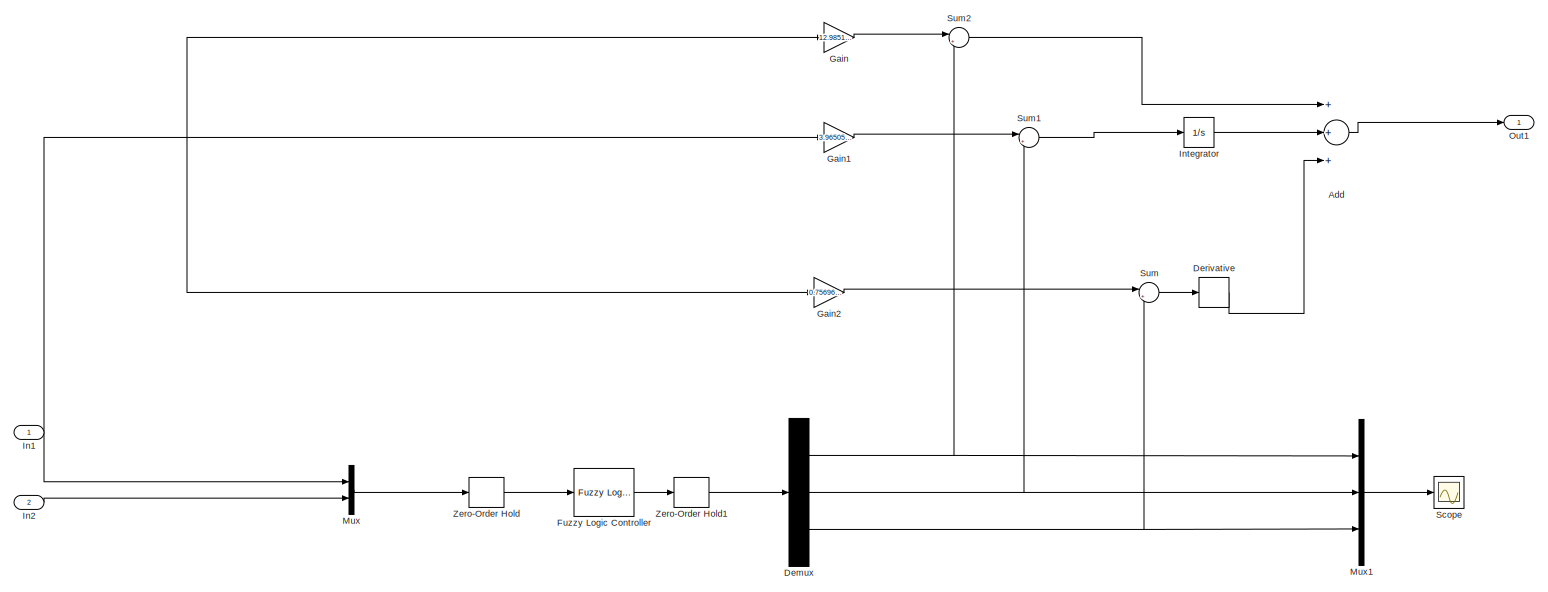
[diagram: Subsystem4/Subsystem4/fuzzypid1/Subsystem - part 1/1, most of the canvas]
BLOCK [SubSystem] Subsystem4/Subsystem4/fuzzypid1/Subsystem
  Ports = [2, 1]
  RequestExecContextInheritance = off
BLOCK [Sum] Subsystem4/Subsystem4/fuzzypid1/Subsystem/Add
  InputSameDT = off
  Inputs = +++
  OutDataTypeStr = Inherit: Inherit via internal rule
  Ports = [3, 1]
  SaturateOnIntegerOverflow = off
BLOCK [Demux] Subsystem4/Subsystem4/fuzzypid1/Subsystem/Demux
  DisplayOption = bar
  Outputs = 3
  Ports = [1, 3]
BLOCK [Derivative] Subsystem4/Subsystem4/fuzzypid1/Subsystem/Derivative
BLOCK [Reference] Subsystem4/Subsystem4/fuzzypid1/Subsystem/Fuzzy Logic Controller  REF=fuzblock/Fuzzy Logic   (lib defined in mdl_858b3b3e7478)
Controller
  Ports = [1, 1]
  SourceBlock = fuzblock/Fuzzy Logic \nController
  SourceType = FIS
  fis = fuzzy1
BLOCK [Gain] Subsystem4/Subsystem4/fuzzypid1/Subsystem/Gain
  Gain = 12.9851074749726
  OutDataTypeStr = Inherit: Inherit via internal rule
  ParamDataTypeStr = Inherit: Inherit via internal rule
  SaturateOnIntegerOverflow = off
BLOCK [Gain] Subsystem4/Subsystem4/fuzzypid1/Subsystem/Gain1
  Gain = 3.96505413373294
  OutDataTypeStr = Inherit: Inherit via internal rule
  ParamDataTypeStr = Inherit: Inherit via internal rule
  SaturateOnIntegerOverflow = off
BLOCK [Gain] Subsystem4/Subsystem4/fuzzypid1/Subsystem/Gain2
  Gain = 0.756963167778154
  OutDataTypeStr = Inherit: Inherit via internal rule
  ParamDataTypeStr = Inherit: Inherit via internal rule
  SaturateOnIntegerOverflow = off
BLOCK [Inport] Subsystem4/Subsystem4/fuzzypid1/Subsystem/In1
  IconDisplay = Port number
BLOCK [Inport] Subsystem4/Subsystem4/fuzzypid1/Subsystem/In2
  IconDisplay = Port number
  Port = 2
BLOCK [Integrator] Subsystem4/Subsystem4/fuzzypid1/Subsystem/Integrator
  Ports = [1, 1]
BLOCK [Mux] Subsystem4/Subsystem4/fuzzypid1/Subsystem/Mux
  DisplayOption = bar
  Inputs = 2
  Ports = [2, 1]
BLOCK [Mux] Subsystem4/Subsystem4/fuzzypid1/Subsystem/Mux1
  DisplayOption = bar
  Inputs = 3
  Ports = [3, 1]
BLOCK [Outport] Subsystem4/Subsystem4/fuzzypid1/Subsystem/Out1
  IconDisplay = Port number
BLOCK [Scope] Subsystem4/Subsystem4/fuzzypid1/Subsystem/Scope
  Floating = off
  NumInputPorts = 1
  Ports = [1]
  ShowLegends = off
BLOCK [Sum] Subsystem4/Subsystem4/fuzzypid1/Subsystem/Sum
  IconShape = round
  InputSameDT = off
  Inputs = |++
  OutDataTypeStr = Inherit: Inherit via internal rule
  Ports = [2, 1]
  SaturateOnIntegerOverflow = off
BLOCK [Sum] Subsystem4/Subsystem4/fuzzypid1/Subsystem/Sum1
  IconShape = round
  InputSameDT = off
  Inputs = |++
  OutDataTypeStr = Inherit: Inherit via internal rule
  Ports = [2, 1]
  SaturateOnIntegerOverflow = off
BLOCK [Sum] Subsystem4/Subsystem4/fuzzypid1/Subsystem/Sum2
  IconShape = round
  InputSameDT = off
  Inputs = |++
  OutDataTypeStr = Inherit: Inherit via internal rule
  Ports = [2, 1]
  SaturateOnIntegerOverflow = off
BLOCK [ZeroOrderHold] Subsystem4/Subsystem4/fuzzypid1/Subsystem/Zero-Order Hold
  SampleTime = 0.1
BLOCK [ZeroOrderHold] Subsystem4/Subsystem4/fuzzypid1/Subsystem/Zero-Order Hold1
  SampleTime = 0.1
BLOCK [SubSystem] Subsystem4/Subsystem4/fuzzypid2
  Ports = [1, 1]
  RequestExecContextInheritance = off
BLOCK [Derivative] Subsystem4/Subsystem4/fuzzypid2/Derivative
BLOCK [Inport] Subsystem4/Subsystem4/fuzzypid2/In1
  IconDisplay = Port number
BLOCK [Outport] Subsystem4/Subsystem4/fuzzypid2/Out1
  IconDisplay = Port number
BLOCK [SubSystem] Subsystem4/Subsystem4/fuzzypid2/Subsystem
  Ports = [2, 1]
  RequestExecContextInheritance = off
BLOCK [Sum] Subsystem4/Subsystem4/fuzzypid2/Subsystem/Add
  InputSameDT = off
  Inputs = +++
  OutDataTypeStr = Inherit: Inherit via internal rule
  Ports = [3, 1]
  SaturateOnIntegerOverflow = off
BLOCK [Demux] Subsystem4/Subsystem4/fuzzypid2/Subsystem/Demux
  DisplayOption = bar
  Outputs = 3
  Ports = [1, 3]
BLOCK [Derivative] Subsystem4/Subsystem4/fuzzypid2/Subsystem/Derivative
BLOCK [Reference] Subsystem4/Subsystem4/fuzzypid2/Subsystem/Fuzzy Logic Controller  REF=fuzblock/Fuzzy Logic   (lib defined in mdl_858b3b3e7478)
Controller
  Ports = [1, 1]
  SourceBlock = fuzblock/Fuzzy Logic \nController
  SourceType = FIS
  fis = fuzzy1
BLOCK [Gain] Subsystem4/Subsystem4/fuzzypid2/Subsystem/Gain
  Gain = 12.9851074749726
  OutDataTypeStr = Inherit: Inherit via internal rule
  ParamDataTypeStr = Inherit: Inherit via internal rule
  SaturateOnIntegerOverflow = off
BLOCK [Gain] Subsystem4/Subsystem4/fuzzypid2/Subsystem/Gain1
  Gain = 3.96505413373294
  OutDataTypeStr = Inherit: Inherit via internal rule
  ParamDataTypeStr = Inherit: Inherit via internal rule
  SaturateOnIntegerOverflow = off
BLOCK [Gain] Subsystem4/Subsystem4/fuzzypid2/Subsystem/Gain2
  Gain = 0.756963167778154
  OutDataTypeStr = Inherit: Inherit via internal rule
  ParamDataTypeStr = Inherit: Inherit via internal rule
  SaturateOnIntegerOverflow = off
BLOCK [Inport] Subsystem4/Subsystem4/fuzzypid2/Subsystem/In1
  IconDisplay = Port number
BLOCK [Inport] Subsystem4/Subsystem4/fuzzypid2/Subsystem/In2
  IconDisplay = Port number
  Port = 2
BLOCK [Integrator] Subsystem4/Subsystem4/fuzzypid2/Subsystem/Integrator
  Ports = [1, 1]
BLOCK [Mux] Subsystem4/Subsystem4/fuzzypid2/Subsystem/Mux
  DisplayOption = bar
  Inputs = 2
  Ports = [2, 1]
BLOCK [Mux] Subsystem4/Subsystem4/fuzzypid2/Subsystem/Mux1
  DisplayOption = bar
  Inputs = 3
  Ports = [3, 1]
BLOCK [Outport] Subsystem4/Subsystem4/fuzzypid2/Subsystem/Out1
  IconDisplay = Port number
BLOCK [Scope] Subsystem4/Subsystem4/fuzzypid2/Subsystem/Scope
  Floating = off
  NumInputPorts = 1
  Ports = [1]
  ShowLegends = off
BLOCK [Sum] Subsystem4/Subsystem4/fuzzypid2/Subsystem/Sum
  IconShape = round
  InputSameDT = off
  Inputs = |++
  OutDataTypeStr = Inherit: Inherit via internal rule
  Ports = [2, 1]
  SaturateOnIntegerOverflow = off
BLOCK [Sum] Subsystem4/Subsystem4/fuzzypid2/Subsystem/Sum1
  IconShape = round
  InputSameDT = off
  Inputs = |++
  OutDataTypeStr = Inherit: Inherit via internal rule
  Ports = [2, 1]
  SaturateOnIntegerOverflow = off
BLOCK [Sum] Subsystem4/Subsystem4/fuzzypid2/Subsystem/Sum2
  IconShape = round
  InputSameDT = off
  Inputs = |++
  OutDataTypeStr = Inherit: Inherit via internal rule
  Ports = [2, 1]
  SaturateOnIntegerOverflow = off
BLOCK [ZeroOrderHold] Subsystem4/Subsystem4/fuzzypid2/Subsystem/Zero-Order Hold
  SampleTime = 0.1
BLOCK [ZeroOrderHold] Subsystem4/Subsystem4/fuzzypid2/Subsystem/Zero-Order Hold1
  SampleTime = 0.1
BLOCK [SubSystem] Subsystem4/Subsystem4/fuzzypid3
  Ports = [1, 1]
  RequestExecContextInheritance = off
BLOCK [Derivative] Subsystem4/Subsystem4/fuzzypid3/Derivative
BLOCK [Inport] Subsystem4/Subsystem4/fuzzypid3/In1
  IconDisplay = Port number
BLOCK [Outport] Subsystem4/Subsystem4/fuzzypid3/Out1
  IconDisplay = Port number
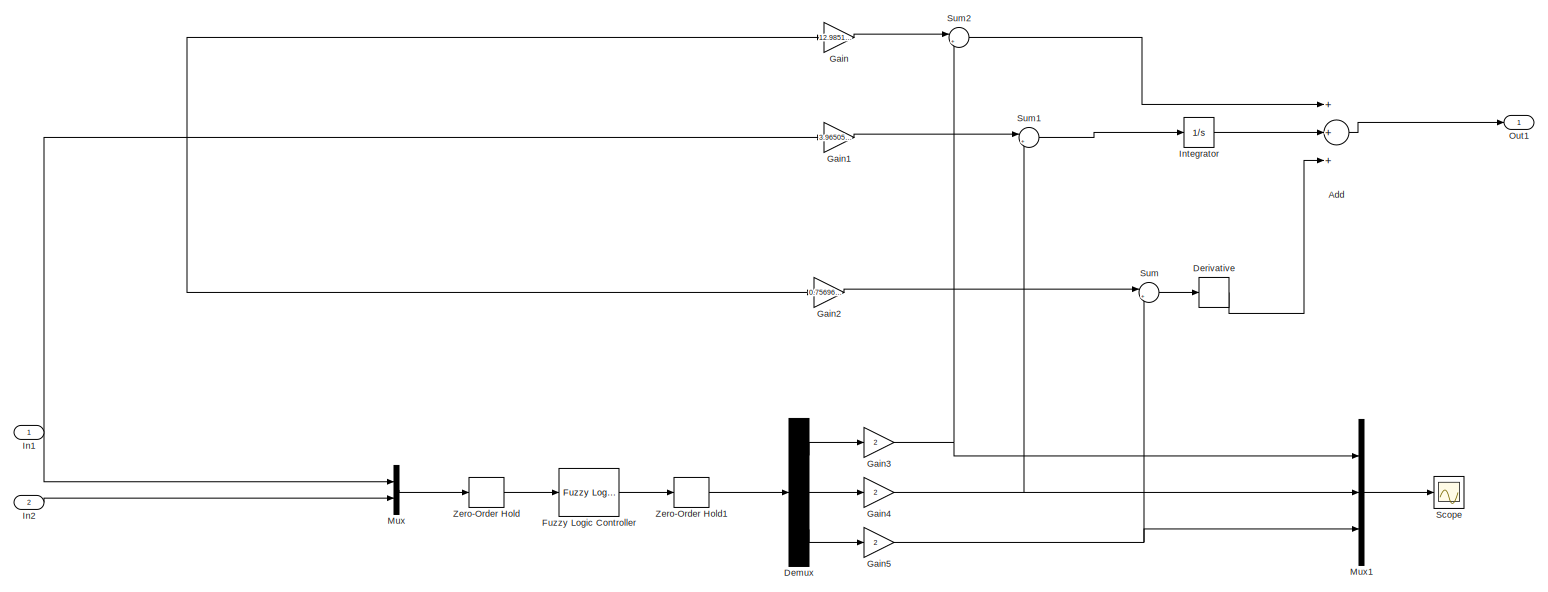
[diagram: Subsystem4/Subsystem4/fuzzypid3/Subsystem - part 1/1, most of the canvas]
BLOCK [SubSystem] Subsystem4/Subsystem4/fuzzypid3/Subsystem
  Ports = [2, 1]
  RequestExecContextInheritance = off
BLOCK [Sum] Subsystem4/Subsystem4/fuzzypid3/Subsystem/Add
  InputSameDT = off
  Inputs = +++
  OutDataTypeStr = Inherit: Inherit via internal rule
  Ports = [3, 1]
  SaturateOnIntegerOverflow = off
BLOCK [Demux] Subsystem4/Subsystem4/fuzzypid3/Subsystem/Demux
  DisplayOption = bar
  Outputs = 3
  Ports = [1, 3]
BLOCK [Derivative] Subsystem4/Subsystem4/fuzzypid3/Subsystem/Derivative
BLOCK [Reference] Subsystem4/Subsystem4/fuzzypid3/Subsystem/Fuzzy Logic Controller  REF=fuzblock/Fuzzy Logic   (lib defined in mdl_858b3b3e7478)
Controller
  Ports = [1, 1]
  SourceBlock = fuzblock/Fuzzy Logic \nController
  SourceType = FIS
  fis = fuzzy1
BLOCK [Gain] Subsystem4/Subsystem4/fuzzypid3/Subsystem/Gain
  Gain = 12.9851074749726
  OutDataTypeStr = Inherit: Inherit via internal rule
  ParamDataTypeStr = Inherit: Inherit via internal rule
  SaturateOnIntegerOverflow = off
BLOCK [Gain] Subsystem4/Subsystem4/fuzzypid3/Subsystem/Gain1
  Gain = 3.96505413373294
  OutDataTypeStr = Inherit: Inherit via internal rule
  ParamDataTypeStr = Inherit: Inherit via internal rule
  SaturateOnIntegerOverflow = off
BLOCK [Gain] Subsystem4/Subsystem4/fuzzypid3/Subsystem/Gain2
  Gain = 0.756963167778154
  OutDataTypeStr = Inherit: Inherit via internal rule
  ParamDataTypeStr = Inherit: Inherit via internal rule
  SaturateOnIntegerOverflow = off
BLOCK [Gain] Subsystem4/Subsystem4/fuzzypid3/Subsystem/Gain3
  Gain = 2
  OutDataTypeStr = Inherit: Inherit via internal rule
  ParamDataTypeStr = Inherit: Inherit via internal rule
  SaturateOnIntegerOverflow = off
BLOCK [Gain] Subsystem4/Subsystem4/fuzzypid3/Subsystem/Gain4
  Gain = 2
  OutDataTypeStr = Inherit: Inherit via internal rule
  ParamDataTypeStr = Inherit: Inherit via internal rule
  SaturateOnIntegerOverflow = off
BLOCK [Gain] Subsystem4/Subsystem4/fuzzypid3/Subsystem/Gain5
  Gain = 2
  OutDataTypeStr = Inherit: Inherit via internal rule
  ParamDataTypeStr = Inherit: Inherit via internal rule
  SaturateOnIntegerOverflow = off
BLOCK [Inport] Subsystem4/Subsystem4/fuzzypid3/Subsystem/In1
  IconDisplay = Port number
BLOCK [Inport] Subsystem4/Subsystem4/fuzzypid3/Subsystem/In2
  IconDisplay = Port number
  Port = 2
BLOCK [Integrator] Subsystem4/Subsystem4/fuzzypid3/Subsystem/Integrator
  Ports = [1, 1]
BLOCK [Mux] Subsystem4/Subsystem4/fuzzypid3/Subsystem/Mux
  DisplayOption = bar
  Inputs = 2
  Ports = [2, 1]
BLOCK [Mux] Subsystem4/Subsystem4/fuzzypid3/Subsystem/Mux1
  DisplayOption = bar
  Inputs = 3
  Ports = [3, 1]
BLOCK [Outport] Subsystem4/Subsystem4/fuzzypid3/Subsystem/Out1
  IconDisplay = Port number
BLOCK [Scope] Subsystem4/Subsystem4/fuzzypid3/Subsystem/Scope
  Floating = off
  LimitDataPoints = off
  NumInputPorts = 1
  Ports = [1]
  SaveName = mohu1
  SaveToWorkspace = on
  ShowLegends = off
  YMax = 0.05
  YMin = -0.2
BLOCK [Sum] Subsystem4/Subsystem4/fuzzypid3/Subsystem/Sum
  IconShape = round
  InputSameDT = off
  Inputs = |++
  OutDataTypeStr = Inherit: Inherit via internal rule
  Ports = [2, 1]
  SaturateOnIntegerOverflow = off
BLOCK [Sum] Subsystem4/Subsystem4/fuzzypid3/Subsystem/Sum1
  IconShape = round
  InputSameDT = off
  Inputs = |++
  OutDataTypeStr = Inherit: Inherit via internal rule
  Ports = [2, 1]
  SaturateOnIntegerOverflow = off
BLOCK [Sum] Subsystem4/Subsystem4/fuzzypid3/Subsystem/Sum2
  IconShape = round
  InputSameDT = off
  Inputs = |++
  OutDataTypeStr = Inherit: Inherit via internal rule
  Ports = [2, 1]
  SaturateOnIntegerOverflow = off
BLOCK [ZeroOrderHold] Subsystem4/Subsystem4/fuzzypid3/Subsystem/Zero-Order Hold
  SampleTime = 0.1
BLOCK [ZeroOrderHold] Subsystem4/Subsystem4/fuzzypid3/Subsystem/Zero-Order Hold1
  SampleTime = 0.1
BLOCK [SubSystem] Subsystem4/Subsystem5
  Ports = [4, 1]
  RequestExecContextInheritance = off
BLOCK [Sum] Subsystem4/Subsystem5/Add
  InputSameDT = off
  Inputs = +++
  OutDataTypeStr = Inherit: Inherit via internal rule
  Ports = [3, 1]
  SaturateOnIntegerOverflow = off
BLOCK [Inport] Subsystem4/Subsystem5/In1
  IconDisplay = Port number
  Port = 2
BLOCK [Inport] Subsystem4/Subsystem5/In2
  IconDisplay = Port number
BLOCK [Inport] Subsystem4/Subsystem5/In3
  IconDisplay = Port number
  Port = 3
BLOCK [Inport] Subsystem4/Subsystem5/In4
  IconDisplay = Port number
  Port = 4
BLOCK [Outport] Subsystem4/Subsystem5/Out1
  IconDisplay = Port number
BLOCK [Reference] Subsystem4/Subsystem5/PID Controller1  REF=simulink/Continuous/PID Controller
  AntiWindupMode = none
  Controller = PID
  D = 0.756963167778154
  DOutDataTypeStr = Inherit: Inherit via internal rule
  DOutMax = []
  DOutMin = []
  DParamDataTypeStr = Inherit: Inherit via internal rule
  DParamMax = []
  DParamMin = []
  DifferentiatorICPrevScaledInput = 0
  DifferentiatorOutDataTypeStr = Inherit: Inherit via internal rule
  DifferentiatorOutMax = []
  DifferentiatorOutMin = []
  ExternalReset = none
  FilterContinuousStateAttributes = ''
  FilterMethod = Forward Euler
  FilterOutDataTypeStr = Inherit: Inherit via internal rule
  FilterOutMax = []
  FilterOutMin = []
  FilterRTWStateStorageClass = Auto
  FilterStateMustResolveToSignalObject = off
  Form = Parallel
  I = 3.96505413373294
  IOutDataTypeStr = Inherit: Inherit via internal rule
  IOutMax = []
  IOutMin = []
  IParamDataTypeStr = Inherit: Inherit via internal rule
  IParamMax = []
  IParamMin = []
  IgnoreLimit = off
  InitialConditionForFilter = 0
  InitialConditionForIntegrator = 0
  InitialConditionSource = internal
  IntegratorContinuousStateAttributes = ''
  IntegratorMethod = Forward Euler
  IntegratorOutDataTypeStr = Inherit: Inherit via internal rule
  IntegratorOutMax = []
  IntegratorOutMin = []
  IntegratorRTWStateStorageClass = Auto
  IntegratorStateMustResolveToSignalObject = off
  Kb = 1
  KbOutDataTypeStr = Inherit: Inherit via internal rule
  KbOutMax = []
  KbOutMin = []
  KbParamDataTypeStr = Inherit: Inherit via internal rule
  KbParamMax = []
  KbParamMin = []
  Kt = 1
  KtOutDataTypeStr = Inherit: Inherit via internal rule
  KtOutMax = []
  KtOutMin = []
  KtParamDataTypeStr = Inherit: Inherit via internal rule
  KtParamMax = []
  KtParamMin = []
  LimitOutput = off
  LinearizeAsGain = on
  LockScale = off
  LowerSaturationLimit = -inf
  N = 4061.73491108422
  NOutDataTypeStr = Inherit: Inherit via internal rule
  NOutMax = []
  NOutMin = []
  NParamDataTypeStr = Inherit: Inherit via internal rule
  NParamMax = []
  NParamMin = []
  P = 12.9851074749726
  POutDataTypeStr = Inherit: Inherit via internal rule
  POutMax = []
  POutMin = []
  PParamDataTypeStr = Inherit: Inherit via internal rule
  PParamMax = []
  PParamMin = []
  Ports = [1, 1]
  RndMeth = Floor
  SampleTime = -1
  SaturateOnIntegerOverflow = off
  SaturationOutDataTypeStr = Inherit: Same as input
  SaturationOutMax = []
  SaturationOutMin = []
  SourceBlock = simulink/Continuous/PID Controller
  SourceType = PID 1dof
  SumAccumDataTypeStr = Inherit: Inherit via internal rule
  SumDAccumDataTypeStr = Inherit: Inherit via internal rule
  SumDOutDataTypeStr = Inherit: Inherit via internal rule
  SumDOutMax = []
  SumDOutMin = []
  SumI1AccumDataTypeStr = Inherit: Inherit via internal rule
  SumI1OutDataTypeStr = Inherit: Inherit via internal rule
  SumI1OutMax = []
  SumI1OutMin = []
  SumI2AccumDataTypeStr = Inherit: Inherit via internal rule
  SumI2OutDataTypeStr = Inherit: Inherit via internal rule
  SumI2OutMax = []
  SumI2OutMin = []
  SumI3AccumDataTypeStr = Inherit: Inherit via internal rule
  SumI3OutDataTypeStr = Inherit: Inherit via internal rule
  SumI3OutMax = []
  SumI3OutMin = []
  SumOutDataTypeStr = Inherit: Inherit via internal rule
  SumOutMax = []
  SumOutMin = []
  TimeDomain = Continuous-time
  TrackingMode = off
  UpperSaturationLimit = inf
  UseFilter = on
  ZeroCross = on
BLOCK [Reference] Subsystem4/Subsystem5/PID Controller2  REF=simulink/Continuous/PID Controller
  AntiWindupMode = none
  Controller = PID
  D = 0.756963167778154
  DOutDataTypeStr = Inherit: Inherit via internal rule
  DOutMax = []
  DOutMin = []
  DParamDataTypeStr = Inherit: Inherit via internal rule
  DParamMax = []
  DParamMin = []
  DifferentiatorICPrevScaledInput = 0
  DifferentiatorOutDataTypeStr = Inherit: Inherit via internal rule
  DifferentiatorOutMax = []
  DifferentiatorOutMin = []
  ExternalReset = none
  FilterContinuousStateAttributes = ''
  FilterMethod = Forward Euler
  FilterOutDataTypeStr = Inherit: Inherit via internal rule
  FilterOutMax = []
  FilterOutMin = []
  FilterRTWStateStorageClass = Auto
  FilterStateMustResolveToSignalObject = off
  Form = Parallel
  I = 3.96505413373294
  IOutDataTypeStr = Inherit: Inherit via internal rule
  IOutMax = []
  IOutMin = []
  IParamDataTypeStr = Inherit: Inherit via internal rule
  IParamMax = []
  IParamMin = []
  IgnoreLimit = off
  InitialConditionForFilter = 0
  InitialConditionForIntegrator = 0
  InitialConditionSource = internal
  IntegratorContinuousStateAttributes = ''
  IntegratorMethod = Forward Euler
  IntegratorOutDataTypeStr = Inherit: Inherit via internal rule
  IntegratorOutMax = []
  IntegratorOutMin = []
  IntegratorRTWStateStorageClass = Auto
  IntegratorStateMustResolveToSignalObject = off
  Kb = 1
  KbOutDataTypeStr = Inherit: Inherit via internal rule
  KbOutMax = []
  KbOutMin = []
  KbParamDataTypeStr = Inherit: Inherit via internal rule
  KbParamMax = []
  KbParamMin = []
  Kt = 1
  KtOutDataTypeStr = Inherit: Inherit via internal rule
  KtOutMax = []
  KtOutMin = []
  KtParamDataTypeStr = Inherit: Inherit via internal rule
  KtParamMax = []
  KtParamMin = []
  LimitOutput = off
  LinearizeAsGain = on
  LockScale = off
  LowerSaturationLimit = -inf
  N = 4061.73491108422
  NOutDataTypeStr = Inherit: Inherit via internal rule
  NOutMax = []
  NOutMin = []
  NParamDataTypeStr = Inherit: Inherit via internal rule
  NParamMax = []
  NParamMin = []
  P = 12.9851074749726
  POutDataTypeStr = Inherit: Inherit via internal rule
  POutMax = []
  POutMin = []
  PParamDataTypeStr = Inherit: Inherit via internal rule
  PParamMax = []
  PParamMin = []
  Ports = [1, 1]
  RndMeth = Floor
  SampleTime = -1
  SaturateOnIntegerOverflow = off
  SaturationOutDataTypeStr = Inherit: Same as input
  SaturationOutMax = []
  SaturationOutMin = []
  SourceBlock = simulink/Continuous/PID Controller
  SourceType = PID 1dof
  SumAccumDataTypeStr = Inherit: Inherit via internal rule
  SumDAccumDataTypeStr = Inherit: Inherit via internal rule
  SumDOutDataTypeStr = Inherit: Inherit via internal rule
  SumDOutMax = []
  SumDOutMin = []
  SumI1AccumDataTypeStr = Inherit: Inherit via internal rule
  SumI1OutDataTypeStr = Inherit: Inherit via internal rule
  SumI1OutMax = []
  SumI1OutMin = []
  SumI2AccumDataTypeStr = Inherit: Inherit via internal rule
  SumI2OutDataTypeStr = Inherit: Inherit via internal rule
  SumI2OutMax = []
  SumI2OutMin = []
  SumI3AccumDataTypeStr = Inherit: Inherit via internal rule
  SumI3OutDataTypeStr = Inherit: Inherit via internal rule
  SumI3OutMax = []
  SumI3OutMin = []
  SumOutDataTypeStr = Inherit: Inherit via internal rule
  SumOutMax = []
  SumOutMin = []
  TimeDomain = Continuous-time
  TrackingMode = off
  UpperSaturationLimit = inf
  UseFilter = on
  ZeroCross = on
BLOCK [Reference] Subsystem4/Subsystem5/PID Controller5  REF=simulink/Continuous/PID Controller
  AntiWindupMode = none
  Controller = PID
  D = 0.756963167778154
  DOutDataTypeStr = Inherit: Inherit via internal rule
  DOutMax = []
  DOutMin = []
  DParamDataTypeStr = Inherit: Inherit via internal rule
  DParamMax = []
  DParamMin = []
  DifferentiatorICPrevScaledInput = 0
  DifferentiatorOutDataTypeStr = Inherit: Inherit via internal rule
  DifferentiatorOutMax = []
  DifferentiatorOutMin = []
  ExternalReset = none
  FilterContinuousStateAttributes = ''
  FilterMethod = Forward Euler
  FilterOutDataTypeStr = Inherit: Inherit via internal rule
  FilterOutMax = []
  FilterOutMin = []
  FilterRTWStateStorageClass = Auto
  FilterStateMustResolveToSignalObject = off
  Form = Parallel
  I = 3.96505413373294
  IOutDataTypeStr = Inherit: Inherit via internal rule
  IOutMax = []
  IOutMin = []
  IParamDataTypeStr = Inherit: Inherit via internal rule
  IParamMax = []
  IParamMin = []
  IgnoreLimit = off
  InitialConditionForFilter = 0
  InitialConditionForIntegrator = 0
  InitialConditionSource = internal
  IntegratorContinuousStateAttributes = ''
  IntegratorMethod = Forward Euler
  IntegratorOutDataTypeStr = Inherit: Inherit via internal rule
  IntegratorOutMax = []
  IntegratorOutMin = []
  IntegratorRTWStateStorageClass = Auto
  IntegratorStateMustResolveToSignalObject = off
  Kb = 1
  KbOutDataTypeStr = Inherit: Inherit via internal rule
  KbOutMax = []
  KbOutMin = []
  KbParamDataTypeStr = Inherit: Inherit via internal rule
  KbParamMax = []
  KbParamMin = []
  Kt = 1
  KtOutDataTypeStr = Inherit: Inherit via internal rule
  KtOutMax = []
  KtOutMin = []
  KtParamDataTypeStr = Inherit: Inherit via internal rule
  KtParamMax = []
  KtParamMin = []
  LimitOutput = off
  LinearizeAsGain = on
  LockScale = off
  LowerSaturationLimit = -inf
  N = 4061.73491108422
  NOutDataTypeStr = Inherit: Inherit via internal rule
  NOutMax = []
  NOutMin = []
  NParamDataTypeStr = Inherit: Inherit via internal rule
  NParamMax = []
  NParamMin = []
  P = 12.9851074749726
  POutDataTypeStr = Inherit: Inherit via internal rule
  POutMax = []
  POutMin = []
  PParamDataTypeStr = Inherit: Inherit via internal rule
  PParamMax = []
  PParamMin = []
  Ports = [1, 1]
  RndMeth = Floor
  SampleTime = -1
  SaturateOnIntegerOverflow = off
  SaturationOutDataTypeStr = Inherit: Same as input
  SaturationOutMax = []
  SaturationOutMin = []
  SourceBlock = simulink/Continuous/PID Controller
  SourceType = PID 1dof
  SumAccumDataTypeStr = Inherit: Inherit via internal rule
  SumDAccumDataTypeStr = Inherit: Inherit via internal rule
  SumDOutDataTypeStr = Inherit: Inherit via internal rule
  SumDOutMax = []
  SumDOutMin = []
  SumI1AccumDataTypeStr = Inherit: Inherit via internal rule
  SumI1OutDataTypeStr = Inherit: Inherit via internal rule
  SumI1OutMax = []
  SumI1OutMin = []
  SumI2AccumDataTypeStr = Inherit: Inherit via internal rule
  SumI2OutDataTypeStr = Inherit: Inherit via internal rule
  SumI2OutMax = []
  SumI2OutMin = []
  SumI3AccumDataTypeStr = Inherit: Inherit via internal rule
  SumI3OutDataTypeStr = Inherit: Inherit via internal rule
  SumI3OutMax = []
  SumI3OutMin = []
  SumOutDataTypeStr = Inherit: Inherit via internal rule
  SumOutMax = []
  SumOutMin = []
  TimeDomain = Continuous-time
  TrackingMode = off
  UpperSaturationLimit = inf
  UseFilter = on
  ZeroCross = on
BLOCK [Sum] Subsystem4/Subsystem5/Sum
  IconShape = round
  InputSameDT = off
  Inputs = |+-
  OutDataTypeStr = Inherit: Inherit via internal rule
  Ports = [2, 1]
  SaturateOnIntegerOverflow = off
BLOCK [Sum] Subsystem4/Subsystem5/Sum1
  IconShape = round
  InputSameDT = off
  Inputs = |+-
  OutDataTypeStr = Inherit: Inherit via internal rule
  Ports = [2, 1]
  SaturateOnIntegerOverflow = off
BLOCK [Sum] Subsystem4/Subsystem5/Sum2
  IconShape = round
  InputSameDT = off
  Inputs = |+-
  OutDataTypeStr = Inherit: Inherit via internal rule
  Ports = [2, 1]
  SaturateOnIntegerOverflow = off
BLOCK [SubSystem] Subsystem4/Subsystem5/fuzzypid1
  Ports = [1, 1]
  RequestExecContextInheritance = off
BLOCK [Derivative] Subsystem4/Subsystem5/fuzzypid1/Derivative
BLOCK [Inport] Subsystem4/Subsystem5/fuzzypid1/In1
  IconDisplay = Port number
BLOCK [Outport] Subsystem4/Subsystem5/fuzzypid1/Out1
  IconDisplay = Port number
BLOCK [SubSystem] Subsystem4/Subsystem5/fuzzypid1/Subsystem
  Ports = [2, 1]
  RequestExecContextInheritance = off
BLOCK [Sum] Subsystem4/Subsystem5/fuzzypid1/Subsystem/Add
  InputSameDT = off
  Inputs = +++
  OutDataTypeStr = Inherit: Inherit via internal rule
  Ports = [3, 1]
  SaturateOnIntegerOverflow = off
BLOCK [Demux] Subsystem4/Subsystem5/fuzzypid1/Subsystem/Demux
  DisplayOption = bar
  Outputs = 3
  Ports = [1, 3]
BLOCK [Derivative] Subsystem4/Subsystem5/fuzzypid1/Subsystem/Derivative
BLOCK [Reference] Subsystem4/Subsystem5/fuzzypid1/Subsystem/Fuzzy Logic Controller  REF=fuzblock/Fuzzy Logic   (lib defined in mdl_858b3b3e7478)
Controller
  Ports = [1, 1]
  SourceBlock = fuzblock/Fuzzy Logic \nController
  SourceType = FIS
  fis = fuzzy1
BLOCK [Gain] Subsystem4/Subsystem5/fuzzypid1/Subsystem/Gain
  Gain = 12.9851074749726
  OutDataTypeStr = Inherit: Inherit via internal rule
  ParamDataTypeStr = Inherit: Inherit via internal rule
  SaturateOnIntegerOverflow = off
BLOCK [Gain] Subsystem4/Subsystem5/fuzzypid1/Subsystem/Gain1
  Gain = 3.96505413373294
  OutDataTypeStr = Inherit: Inherit via internal rule
  ParamDataTypeStr = Inherit: Inherit via internal rule
  SaturateOnIntegerOverflow = off
BLOCK [Gain] Subsystem4/Subsystem5/fuzzypid1/Subsystem/Gain2
  Gain = 0.756963167778154
  OutDataTypeStr = Inherit: Inherit via internal rule
  ParamDataTypeStr = Inherit: Inherit via internal rule
  SaturateOnIntegerOverflow = off
BLOCK [Inport] Subsystem4/Subsystem5/fuzzypid1/Subsystem/In1
  IconDisplay = Port number
BLOCK [Inport] Subsystem4/Subsystem5/fuzzypid1/Subsystem/In2
  IconDisplay = Port number
  Port = 2
BLOCK [Integrator] Subsystem4/Subsystem5/fuzzypid1/Subsystem/Integrator
  Ports = [1, 1]
BLOCK [Mux] Subsystem4/Subsystem5/fuzzypid1/Subsystem/Mux
  DisplayOption = bar
  Inputs = 2
  Ports = [2, 1]
BLOCK [Mux] Subsystem4/Subsystem5/fuzzypid1/Subsystem/Mux1
  DisplayOption = bar
  Inputs = 3
  Ports = [3, 1]
BLOCK [Outport] Subsystem4/Subsystem5/fuzzypid1/Subsystem/Out1
  IconDisplay = Port number
BLOCK [Scope] Subsystem4/Subsystem5/fuzzypid1/Subsystem/Scope
  Floating = off
  LimitDataPoints = off
  NumInputPorts = 1
  Ports = [1]
  SaveName = mohu2
  ShowLegends = off
BLOCK [Sum] Subsystem4/Subsystem5/fuzzypid1/Subsystem/Sum
  IconShape = round
  InputSameDT = off
  Inputs = |++
  OutDataTypeStr = Inherit: Inherit via internal rule
  Ports = [2, 1]
  SaturateOnIntegerOverflow = off
BLOCK [Sum] Subsystem4/Subsystem5/fuzzypid1/Subsystem/Sum1
  IconShape = round
  InputSameDT = off
  Inputs = |++
  OutDataTypeStr = Inherit: Inherit via internal rule
  Ports = [2, 1]
  SaturateOnIntegerOverflow = off
BLOCK [Sum] Subsystem4/Subsystem5/fuzzypid1/Subsystem/Sum2
  IconShape = round
  InputSameDT = off
  Inputs = |++
  OutDataTypeStr = Inherit: Inherit via internal rule
  Ports = [2, 1]
  SaturateOnIntegerOverflow = off
BLOCK [ZeroOrderHold] Subsystem4/Subsystem5/fuzzypid1/Subsystem/Zero-Order Hold
  SampleTime = 0.2
BLOCK [ZeroOrderHold] Subsystem4/Subsystem5/fuzzypid1/Subsystem/Zero-Order Hold1
  SampleTime = 0.2
BLOCK [SubSystem] Subsystem4/Subsystem5/fuzzypid2
  Ports = [1, 1]
  RequestExecContextInheritance = off
BLOCK [Derivative] Subsystem4/Subsystem5/fuzzypid2/Derivative
BLOCK [Inport] Subsystem4/Subsystem5/fuzzypid2/In1
  IconDisplay = Port number
BLOCK [Outport] Subsystem4/Subsystem5/fuzzypid2/Out1
  IconDisplay = Port number
BLOCK [SubSystem] Subsystem4/Subsystem5/fuzzypid2/Subsystem
  Ports = [2, 1]
  RequestExecContextInheritance = off
BLOCK [Sum] Subsystem4/Subsystem5/fuzzypid2/Subsystem/Add
  InputSameDT = off
  Inputs = +++
  OutDataTypeStr = Inherit: Inherit via internal rule
  Ports = [3, 1]
  SaturateOnIntegerOverflow = off
BLOCK [Demux] Subsystem4/Subsystem5/fuzzypid2/Subsystem/Demux
  DisplayOption = bar
  Outputs = 3
  Ports = [1, 3]
BLOCK [Derivative] Subsystem4/Subsystem5/fuzzypid2/Subsystem/Derivative
BLOCK [Reference] Subsystem4/Subsystem5/fuzzypid2/Subsystem/Fuzzy Logic Controller  REF=fuzblock/Fuzzy Logic   (lib defined in mdl_858b3b3e7478)
Controller
  Ports = [1, 1]
  SourceBlock = fuzblock/Fuzzy Logic \nController
  SourceType = FIS
  fis = fuzzy1
BLOCK [Gain] Subsystem4/Subsystem5/fuzzypid2/Subsystem/Gain
  Gain = 12.9851074749726
  OutDataTypeStr = Inherit: Inherit via internal rule
  ParamDataTypeStr = Inherit: Inherit via internal rule
  SaturateOnIntegerOverflow = off
BLOCK [Gain] Subsystem4/Subsystem5/fuzzypid2/Subsystem/Gain1
  Gain = 3.96505413373294
  OutDataTypeStr = Inherit: Inherit via internal rule
  ParamDataTypeStr = Inherit: Inherit via internal rule
  SaturateOnIntegerOverflow = off
BLOCK [Gain] Subsystem4/Subsystem5/fuzzypid2/Subsystem/Gain2
  Gain = 0.756963167778154
  OutDataTypeStr = Inherit: Inherit via internal rule
  ParamDataTypeStr = Inherit: Inherit via internal rule
  SaturateOnIntegerOverflow = off
BLOCK [Inport] Subsystem4/Subsystem5/fuzzypid2/Subsystem/In1
  IconDisplay = Port number
BLOCK [Inport] Subsystem4/Subsystem5/fuzzypid2/Subsystem/In2
  IconDisplay = Port number
  Port = 2
BLOCK [Integrator] Subsystem4/Subsystem5/fuzzypid2/Subsystem/Integrator
  Ports = [1, 1]
BLOCK [Mux] Subsystem4/Subsystem5/fuzzypid2/Subsystem/Mux
  DisplayOption = bar
  Inputs = 2
  Ports = [2, 1]
BLOCK [Mux] Subsystem4/Subsystem5/fuzzypid2/Subsystem/Mux1
  DisplayOption = bar
  Inputs = 3
  Ports = [3, 1]
BLOCK [Outport] Subsystem4/Subsystem5/fuzzypid2/Subsystem/Out1
  IconDisplay = Port number
BLOCK [Scope] Subsystem4/Subsystem5/fuzzypid2/Subsystem/Scope
  Floating = off
  LimitDataPoints = off
  NumInputPorts = 1
  Ports = [1]
  SaveName = mohu2
  SaveToWorkspace = on
  ShowLegends = off
BLOCK [Sum] Subsystem4/Subsystem5/fuzzypid2/Subsystem/Sum
  IconShape = round
  InputSameDT = off
  Inputs = |++
  OutDataTypeStr = Inherit: Inherit via internal rule
  Ports = [2, 1]
  SaturateOnIntegerOverflow = off
BLOCK [Sum] Subsystem4/Subsystem5/fuzzypid2/Subsystem/Sum1
  IconShape = round
  InputSameDT = off
  Inputs = |++
  OutDataTypeStr = Inherit: Inherit via internal rule
  Ports = [2, 1]
  SaturateOnIntegerOverflow = off
BLOCK [Sum] Subsystem4/Subsystem5/fuzzypid2/Subsystem/Sum2
  IconShape = round
  InputSameDT = off
  Inputs = |++
  OutDataTypeStr = Inherit: Inherit via internal rule
  Ports = [2, 1]
  SaturateOnIntegerOverflow = off
BLOCK [ZeroOrderHold] Subsystem4/Subsystem5/fuzzypid2/Subsystem/Zero-Order Hold
  SampleTime = 0.1
BLOCK [ZeroOrderHold] Subsystem4/Subsystem5/fuzzypid2/Subsystem/Zero-Order Hold1
  SampleTime = 0.1
BLOCK [SubSystem] Subsystem4/Subsystem5/fuzzypid3
  Ports = [1, 1]
  RequestExecContextInheritance = off
BLOCK [Derivative] Subsystem4/Subsystem5/fuzzypid3/Derivative
BLOCK [Inport] Subsystem4/Subsystem5/fuzzypid3/In1
  IconDisplay = Port number
BLOCK [Outport] Subsystem4/Subsystem5/fuzzypid3/Out1
  IconDisplay = Port number
BLOCK [SubSystem] Subsystem4/Subsystem5/fuzzypid3/Subsystem
  Ports = [2, 1]
  RequestExecContextInheritance = off
BLOCK [Sum] Subsystem4/Subsystem5/fuzzypid3/Subsystem/Add
  InputSameDT = off
  Inputs = +++
  OutDataTypeStr = Inherit: Inherit via internal rule
  Ports = [3, 1]
  SaturateOnIntegerOverflow = off
BLOCK [Demux] Subsystem4/Subsystem5/fuzzypid3/Subsystem/Demux
  DisplayOption = bar
  Outputs = 3
  Ports = [1, 3]
BLOCK [Derivative] Subsystem4/Subsystem5/fuzzypid3/Subsystem/Derivative
BLOCK [Reference] Subsystem4/Subsystem5/fuzzypid3/Subsystem/Fuzzy Logic Controller  REF=fuzblock/Fuzzy Logic   (lib defined in mdl_858b3b3e7478)
Controller
  Ports = [1, 1]
  SourceBlock = fuzblock/Fuzzy Logic \nController
  SourceType = FIS
  fis = fuzzy1
BLOCK [Gain] Subsystem4/Subsystem5/fuzzypid3/Subsystem/Gain
  Gain = 12.9851074749726
  OutDataTypeStr = Inherit: Inherit via internal rule
  ParamDataTypeStr = Inherit: Inherit via internal rule
  SaturateOnIntegerOverflow = off
BLOCK [Gain] Subsystem4/Subsystem5/fuzzypid3/Subsystem/Gain1
  Gain = 3.96505413373294
  OutDataTypeStr = Inherit: Inherit via internal rule
  ParamDataTypeStr = Inherit: Inherit via internal rule
  SaturateOnIntegerOverflow = off
BLOCK [Gain] Subsystem4/Subsystem5/fuzzypid3/Subsystem/Gain2
  Gain = 0.756963167778154
  OutDataTypeStr = Inherit: Inherit via internal rule
  ParamDataTypeStr = Inherit: Inherit via internal rule
  SaturateOnIntegerOverflow = off
BLOCK [Inport] Subsystem4/Subsystem5/fuzzypid3/Subsystem/In1
  IconDisplay = Port number
BLOCK [Inport] Subsystem4/Subsystem5/fuzzypid3/Subsystem/In2
  IconDisplay = Port number
  Port = 2
BLOCK [Integrator] Subsystem4/Subsystem5/fuzzypid3/Subsystem/Integrator
  Ports = [1, 1]
BLOCK [Mux] Subsystem4/Subsystem5/fuzzypid3/Subsystem/Mux
  DisplayOption = bar
  Inputs = 2
  Ports = [2, 1]
BLOCK [Mux] Subsystem4/Subsystem5/fuzzypid3/Subsystem/Mux1
  DisplayOption = bar
  Inputs = 3
  Ports = [3, 1]
BLOCK [Outport] Subsystem4/Subsystem5/fuzzypid3/Subsystem/Out1
  IconDisplay = Port number
BLOCK [Scope] Subsystem4/Subsystem5/fuzzypid3/Subsystem/Scope
  Floating = off
  NumInputPorts = 1
  Ports = [1]
  ShowLegends = off
BLOCK [Sum] Subsystem4/Subsystem5/fuzzypid3/Subsystem/Sum
  IconShape = round
  InputSameDT = off
  Inputs = |++
  OutDataTypeStr = Inherit: Inherit via internal rule
  Ports = [2, 1]
  SaturateOnIntegerOverflow = off
BLOCK [Sum] Subsystem4/Subsystem5/fuzzypid3/Subsystem/Sum1
  IconShape = round
  InputSameDT = off
  Inputs = |++
  OutDataTypeStr = Inherit: Inherit via internal rule
  Ports = [2, 1]
  SaturateOnIntegerOverflow = off
BLOCK [Sum] Subsystem4/Subsystem5/fuzzypid3/Subsystem/Sum2
  IconShape = round
  InputSameDT = off
  Inputs = |++
  OutDataTypeStr = Inherit: Inherit via internal rule
  Ports = [2, 1]
  SaturateOnIntegerOverflow = off
BLOCK [ZeroOrderHold] Subsystem4/Subsystem5/fuzzypid3/Subsystem/Zero-Order Hold
  SampleTime = 0.2
BLOCK [ZeroOrderHold] Subsystem4/Subsystem5/fuzzypid3/Subsystem/Zero-Order Hold1
  SampleTime = 0.2
BLOCK [SubSystem] Subsystem4/Subsystem6
  Ports = [4, 1]
  RequestExecContextInheritance = off
BLOCK [Sum] Subsystem4/Subsystem6/Add
  InputSameDT = off
  Inputs = +++
  OutDataTypeStr = Inherit: Inherit via internal rule
  Ports = [3, 1]
  SaturateOnIntegerOverflow = off
BLOCK [Inport] Subsystem4/Subsystem6/In1
  IconDisplay = Port number
  Port = 2
BLOCK [Inport] Subsystem4/Subsystem6/In2
  IconDisplay = Port number
  Port = 3
BLOCK [Inport] Subsystem4/Subsystem6/In3
  IconDisplay = Port number
BLOCK [Inport] Subsystem4/Subsystem6/In4
  IconDisplay = Port number
  Port = 4
BLOCK [Outport] Subsystem4/Subsystem6/Out1
  IconDisplay = Port number
BLOCK [Reference] Subsystem4/Subsystem6/PID Controller3  REF=simulink/Continuous/PID Controller
  AntiWindupMode = none
  Controller = PID
  D = 0.756963167778154
  DOutDataTypeStr = Inherit: Inherit via internal rule
  DOutMax = []
  DOutMin = []
  DParamDataTypeStr = Inherit: Inherit via internal rule
  DParamMax = []
  DParamMin = []
  DifferentiatorICPrevScaledInput = 0
  DifferentiatorOutDataTypeStr = Inherit: Inherit via internal rule
  DifferentiatorOutMax = []
  DifferentiatorOutMin = []
  ExternalReset = none
  FilterContinuousStateAttributes = ''
  FilterMethod = Forward Euler
  FilterOutDataTypeStr = Inherit: Inherit via internal rule
  FilterOutMax = []
  FilterOutMin = []
  FilterRTWStateStorageClass = Auto
  FilterStateMustResolveToSignalObject = off
  Form = Parallel
  I = 3.96505413373294
  IOutDataTypeStr = Inherit: Inherit via internal rule
  IOutMax = []
  IOutMin = []
  IParamDataTypeStr = Inherit: Inherit via internal rule
  IParamMax = []
  IParamMin = []
  IgnoreLimit = off
  InitialConditionForFilter = 0
  InitialConditionForIntegrator = 0
  InitialConditionSource = internal
  IntegratorContinuousStateAttributes = ''
  IntegratorMethod = Forward Euler
  IntegratorOutDataTypeStr = Inherit: Inherit via internal rule
  IntegratorOutMax = []
  IntegratorOutMin = []
  IntegratorRTWStateStorageClass = Auto
  IntegratorStateMustResolveToSignalObject = off
  Kb = 1
  KbOutDataTypeStr = Inherit: Inherit via internal rule
  KbOutMax = []
  KbOutMin = []
  KbParamDataTypeStr = Inherit: Inherit via internal rule
  KbParamMax = []
  KbParamMin = []
  Kt = 1
  KtOutDataTypeStr = Inherit: Inherit via internal rule
  KtOutMax = []
  KtOutMin = []
  KtParamDataTypeStr = Inherit: Inherit via internal rule
  KtParamMax = []
  KtParamMin = []
  LimitOutput = off
  LinearizeAsGain = on
  LockScale = off
  LowerSaturationLimit = -inf
  N = 4061.73491108422
  NOutDataTypeStr = Inherit: Inherit via internal rule
  NOutMax = []
  NOutMin = []
  NParamDataTypeStr = Inherit: Inherit via internal rule
  NParamMax = []
  NParamMin = []
  P = 12.9851074749726
  POutDataTypeStr = Inherit: Inherit via internal rule
  POutMax = []
  POutMin = []
  PParamDataTypeStr = Inherit: Inherit via internal rule
  PParamMax = []
  PParamMin = []
  Ports = [1, 1]
  RndMeth = Floor
  SampleTime = -1
  SaturateOnIntegerOverflow = off
  SaturationOutDataTypeStr = Inherit: Same as input
  SaturationOutMax = []
  SaturationOutMin = []
  SourceBlock = simulink/Continuous/PID Controller
  SourceType = PID 1dof
  SumAccumDataTypeStr = Inherit: Inherit via internal rule
  SumDAccumDataTypeStr = Inherit: Inherit via internal rule
  SumDOutDataTypeStr = Inherit: Inherit via internal rule
  SumDOutMax = []
  SumDOutMin = []
  SumI1AccumDataTypeStr = Inherit: Inherit via internal rule
  SumI1OutDataTypeStr = Inherit: Inherit via internal rule
  SumI1OutMax = []
  SumI1OutMin = []
  SumI2AccumDataTypeStr = Inherit: Inherit via internal rule
  SumI2OutDataTypeStr = Inherit: Inherit via internal rule
  SumI2OutMax = []
  SumI2OutMin = []
  SumI3AccumDataTypeStr = Inherit: Inherit via internal rule
  SumI3OutDataTypeStr = Inherit: Inherit via internal rule
  SumI3OutMax = []
  SumI3OutMin = []
  SumOutDataTypeStr = Inherit: Inherit via internal rule
  SumOutMax = []
  SumOutMin = []
  TimeDomain = Continuous-time
  TrackingMode = off
  UpperSaturationLimit = inf
  UseFilter = on
  ZeroCross = on
BLOCK [Reference] Subsystem4/Subsystem6/PID Controller4  REF=simulink/Continuous/PID Controller
  AntiWindupMode = none
  Controller = PID
  D = 0.756963167778154
  DOutDataTypeStr = Inherit: Inherit via internal rule
  DOutMax = []
  DOutMin = []
  DParamDataTypeStr = Inherit: Inherit via internal rule
  DParamMax = []
  DParamMin = []
  DifferentiatorICPrevScaledInput = 0
  DifferentiatorOutDataTypeStr = Inherit: Inherit via internal rule
  DifferentiatorOutMax = []
  DifferentiatorOutMin = []
  ExternalReset = none
  FilterContinuousStateAttributes = ''
  FilterMethod = Forward Euler
  FilterOutDataTypeStr = Inherit: Inherit via internal rule
  FilterOutMax = []
  FilterOutMin = []
  FilterRTWStateStorageClass = Auto
  FilterStateMustResolveToSignalObject = off
  Form = Parallel
  I = 3.96505413373294
  IOutDataTypeStr = Inherit: Inherit via internal rule
  IOutMax = []
  IOutMin = []
  IParamDataTypeStr = Inherit: Inherit via internal rule
  IParamMax = []
  IParamMin = []
  IgnoreLimit = off
  InitialConditionForFilter = 0
  InitialConditionForIntegrator = 0
  InitialConditionSource = internal
  IntegratorContinuousStateAttributes = ''
  IntegratorMethod = Forward Euler
  IntegratorOutDataTypeStr = Inherit: Inherit via internal rule
  IntegratorOutMax = []
  IntegratorOutMin = []
  IntegratorRTWStateStorageClass = Auto
  IntegratorStateMustResolveToSignalObject = off
  Kb = 1
  KbOutDataTypeStr = Inherit: Inherit via internal rule
  KbOutMax = []
  KbOutMin = []
  KbParamDataTypeStr = Inherit: Inherit via internal rule
  KbParamMax = []
  KbParamMin = []
  Kt = 1
  KtOutDataTypeStr = Inherit: Inherit via internal rule
  KtOutMax = []
  KtOutMin = []
  KtParamDataTypeStr = Inherit: Inherit via internal rule
  KtParamMax = []
  KtParamMin = []
  LimitOutput = off
  LinearizeAsGain = on
  LockScale = off
  LowerSaturationLimit = -inf
  N = 4061.73491108422
  NOutDataTypeStr = Inherit: Inherit via internal rule
  NOutMax = []
  NOutMin = []
  NParamDataTypeStr = Inherit: Inherit via internal rule
  NParamMax = []
  NParamMin = []
  P = 12.9851074749726
  POutDataTypeStr = Inherit: Inherit via internal rule
  POutMax = []
  POutMin = []
  PParamDataTypeStr = Inherit: Inherit via internal rule
  PParamMax = []
  PParamMin = []
  Ports = [1, 1]
  RndMeth = Floor
  SampleTime = -1
  SaturateOnIntegerOverflow = off
  SaturationOutDataTypeStr = Inherit: Same as input
  SaturationOutMax = []
  SaturationOutMin = []
  SourceBlock = simulink/Continuous/PID Controller
  SourceType = PID 1dof
  SumAccumDataTypeStr = Inherit: Inherit via internal rule
  SumDAccumDataTypeStr = Inherit: Inherit via internal rule
  SumDOutDataTypeStr = Inherit: Inherit via internal rule
  SumDOutMax = []
  SumDOutMin = []
  SumI1AccumDataTypeStr = Inherit: Inherit via internal rule
  SumI1OutDataTypeStr = Inherit: Inherit via internal rule
  SumI1OutMax = []
  SumI1OutMin = []
  SumI2AccumDataTypeStr = Inherit: Inherit via internal rule
  SumI2OutDataTypeStr = Inherit: Inherit via internal rule
  SumI2OutMax = []
  SumI2OutMin = []
  SumI3AccumDataTypeStr = Inherit: Inherit via internal rule
  SumI3OutDataTypeStr = Inherit: Inherit via internal rule
  SumI3OutMax = []
  SumI3OutMin = []
  SumOutDataTypeStr = Inherit: Inherit via internal rule
  SumOutMax = []
  SumOutMin = []
  TimeDomain = Continuous-time
  TrackingMode = off
  UpperSaturationLimit = inf
  UseFilter = on
  ZeroCross = on
BLOCK [Reference] Subsystem4/Subsystem6/PID Controller6  REF=simulink/Continuous/PID Controller
  AntiWindupMode = none
  Controller = PID
  D = 0.756963167778154
  DOutDataTypeStr = Inherit: Inherit via internal rule
  DOutMax = []
  DOutMin = []
  DParamDataTypeStr = Inherit: Inherit via internal rule
  DParamMax = []
  DParamMin = []
  DifferentiatorICPrevScaledInput = 0
  DifferentiatorOutDataTypeStr = Inherit: Inherit via internal rule
  DifferentiatorOutMax = []
  DifferentiatorOutMin = []
  ExternalReset = none
  FilterContinuousStateAttributes = ''
  FilterMethod = Forward Euler
  FilterOutDataTypeStr = Inherit: Inherit via internal rule
  FilterOutMax = []
  FilterOutMin = []
  FilterRTWStateStorageClass = Auto
  FilterStateMustResolveToSignalObject = off
  Form = Parallel
  I = 3.96505413373294
  IOutDataTypeStr = Inherit: Inherit via internal rule
  IOutMax = []
  IOutMin = []
  IParamDataTypeStr = Inherit: Inherit via internal rule
  IParamMax = []
  IParamMin = []
  IgnoreLimit = off
  InitialConditionForFilter = 0
  InitialConditionForIntegrator = 0
  InitialConditionSource = internal
  IntegratorContinuousStateAttributes = ''
  IntegratorMethod = Forward Euler
  IntegratorOutDataTypeStr = Inherit: Inherit via internal rule
  IntegratorOutMax = []
  IntegratorOutMin = []
  IntegratorRTWStateStorageClass = Auto
  IntegratorStateMustResolveToSignalObject = off
  Kb = 1
  KbOutDataTypeStr = Inherit: Inherit via internal rule
  KbOutMax = []
  KbOutMin = []
  KbParamDataTypeStr = Inherit: Inherit via internal rule
  KbParamMax = []
  KbParamMin = []
  Kt = 1
  KtOutDataTypeStr = Inherit: Inherit via internal rule
  KtOutMax = []
  KtOutMin = []
  KtParamDataTypeStr = Inherit: Inherit via internal rule
  KtParamMax = []
  KtParamMin = []
  LimitOutput = off
  LinearizeAsGain = on
  LockScale = off
  LowerSaturationLimit = -inf
  N = 4061.73491108422
  NOutDataTypeStr = Inherit: Inherit via internal rule
  NOutMax = []
  NOutMin = []
  NParamDataTypeStr = Inherit: Inherit via internal rule
  NParamMax = []
  NParamMin = []
  P = 12.9851074749726
  POutDataTypeStr = Inherit: Inherit via internal rule
  POutMax = []
  POutMin = []
  PParamDataTypeStr = Inherit: Inherit via internal rule
  PParamMax = []
  PParamMin = []
  Ports = [1, 1]
  RndMeth = Floor
  SampleTime = -1
  SaturateOnIntegerOverflow = off
  SaturationOutDataTypeStr = Inherit: Same as input
  SaturationOutMax = []
  SaturationOutMin = []
  SourceBlock = simulink/Continuous/PID Controller
  SourceType = PID 1dof
  SumAccumDataTypeStr = Inherit: Inherit via internal rule
  SumDAccumDataTypeStr = Inherit: Inherit via internal rule
  SumDOutDataTypeStr = Inherit: Inherit via internal rule
  SumDOutMax = []
  SumDOutMin = []
  SumI1AccumDataTypeStr = Inherit: Inherit via internal rule
  SumI1OutDataTypeStr = Inherit: Inherit via internal rule
  SumI1OutMax = []
  SumI1OutMin = []
  SumI2AccumDataTypeStr = Inherit: Inherit via internal rule
  SumI2OutDataTypeStr = Inherit: Inherit via internal rule
  SumI2OutMax = []
  SumI2OutMin = []
  SumI3AccumDataTypeStr = Inherit: Inherit via internal rule
  SumI3OutDataTypeStr = Inherit: Inherit via internal rule
  SumI3OutMax = []
  SumI3OutMin = []
  SumOutDataTypeStr = Inherit: Inherit via internal rule
  SumOutMax = []
  SumOutMin = []
  TimeDomain = Continuous-time
  TrackingMode = off
  UpperSaturationLimit = inf
  UseFilter = on
  ZeroCross = on
BLOCK [Sum] Subsystem4/Subsystem6/Sum
  IconShape = round
  InputSameDT = off
  Inputs = |+-
  OutDataTypeStr = Inherit: Inherit via internal rule
  Ports = [2, 1]
  SaturateOnIntegerOverflow = off
BLOCK [Sum] Subsystem4/Subsystem6/Sum1
  IconShape = round
  InputSameDT = off
  Inputs = |+-
  OutDataTypeStr = Inherit: Inherit via internal rule
  Ports = [2, 1]
  SaturateOnIntegerOverflow = off
BLOCK [Sum] Subsystem4/Subsystem6/Sum2
  IconShape = round
  InputSameDT = off
  Inputs = |+-
  OutDataTypeStr = Inherit: Inherit via internal rule
  Ports = [2, 1]
  SaturateOnIntegerOverflow = off
BLOCK [SubSystem] Subsystem4/Subsystem6/fuzzypid1
  Ports = [1, 1]
  RequestExecContextInheritance = off
BLOCK [Derivative] Subsystem4/Subsystem6/fuzzypid1/Derivative
BLOCK [Inport] Subsystem4/Subsystem6/fuzzypid1/In1
  IconDisplay = Port number
BLOCK [Outport] Subsystem4/Subsystem6/fuzzypid1/Out1
  IconDisplay = Port number
BLOCK [SubSystem] Subsystem4/Subsystem6/fuzzypid1/Subsystem
  Ports = [2, 1]
  RequestExecContextInheritance = off
BLOCK [Sum] Subsystem4/Subsystem6/fuzzypid1/Subsystem/Add
  InputSameDT = off
  Inputs = +++
  OutDataTypeStr = Inherit: Inherit via internal rule
  Ports = [3, 1]
  SaturateOnIntegerOverflow = off
BLOCK [Demux] Subsystem4/Subsystem6/fuzzypid1/Subsystem/Demux
  DisplayOption = bar
  Outputs = 3
  Ports = [1, 3]
BLOCK [Derivative] Subsystem4/Subsystem6/fuzzypid1/Subsystem/Derivative
BLOCK [Reference] Subsystem4/Subsystem6/fuzzypid1/Subsystem/Fuzzy Logic Controller  REF=fuzblock/Fuzzy Logic   (lib defined in mdl_858b3b3e7478)
Controller
  Ports = [1, 1]
  SourceBlock = fuzblock/Fuzzy Logic \nController
  SourceType = FIS
  fis = fuzzy1
BLOCK [Gain] Subsystem4/Subsystem6/fuzzypid1/Subsystem/Gain
  Gain = 12.9851074749726
  OutDataTypeStr = Inherit: Inherit via internal rule
  ParamDataTypeStr = Inherit: Inherit via internal rule
  SaturateOnIntegerOverflow = off
BLOCK [Gain] Subsystem4/Subsystem6/fuzzypid1/Subsystem/Gain1
  Gain = 3.96505413373294
  OutDataTypeStr = Inherit: Inherit via internal rule
  ParamDataTypeStr = Inherit: Inherit via internal rule
  SaturateOnIntegerOverflow = off
BLOCK [Gain] Subsystem4/Subsystem6/fuzzypid1/Subsystem/Gain2
  Gain = 0.756963167778154
  OutDataTypeStr = Inherit: Inherit via internal rule
  ParamDataTypeStr = Inherit: Inherit via internal rule
  SaturateOnIntegerOverflow = off
BLOCK [Inport] Subsystem4/Subsystem6/fuzzypid1/Subsystem/In1
  IconDisplay = Port number
BLOCK [Inport] Subsystem4/Subsystem6/fuzzypid1/Subsystem/In2
  IconDisplay = Port number
  Port = 2
BLOCK [Integrator] Subsystem4/Subsystem6/fuzzypid1/Subsystem/Integrator
  Ports = [1, 1]
BLOCK [Mux] Subsystem4/Subsystem6/fuzzypid1/Subsystem/Mux
  DisplayOption = bar
  Inputs = 2
  Ports = [2, 1]
BLOCK [Mux] Subsystem4/Subsystem6/fuzzypid1/Subsystem/Mux1
  DisplayOption = bar
  Inputs = 3
  Ports = [3, 1]
BLOCK [Outport] Subsystem4/Subsystem6/fuzzypid1/Subsystem/Out1
  IconDisplay = Port number
BLOCK [Scope] Subsystem4/Subsystem6/fuzzypid1/Subsystem/Scope
  Floating = off
  LimitDataPoints = off
  NumInputPorts = 1
  Ports = [1]
  SaveName = mohu3
  SaveToWorkspace = on
  ShowLegends = off
BLOCK [Sum] Subsystem4/Subsystem6/fuzzypid1/Subsystem/Sum
  IconShape = round
  InputSameDT = off
  Inputs = |++
  OutDataTypeStr = Inherit: Inherit via internal rule
  Ports = [2, 1]
  SaturateOnIntegerOverflow = off
BLOCK [Sum] Subsystem4/Subsystem6/fuzzypid1/Subsystem/Sum1
  IconShape = round
  InputSameDT = off
  Inputs = |++
  OutDataTypeStr = Inherit: Inherit via internal rule
  Ports = [2, 1]
  SaturateOnIntegerOverflow = off
BLOCK [Sum] Subsystem4/Subsystem6/fuzzypid1/Subsystem/Sum2
  IconShape = round
  InputSameDT = off
  Inputs = |++
  OutDataTypeStr = Inherit: Inherit via internal rule
  Ports = [2, 1]
  SaturateOnIntegerOverflow = off
BLOCK [ZeroOrderHold] Subsystem4/Subsystem6/fuzzypid1/Subsystem/Zero-Order Hold
  SampleTime = 0.1
BLOCK [ZeroOrderHold] Subsystem4/Subsystem6/fuzzypid1/Subsystem/Zero-Order Hold1
  SampleTime = 0.1
BLOCK [SubSystem] Subsystem4/Subsystem6/fuzzypid2
  Ports = [1, 1]
  RequestExecContextInheritance = off
BLOCK [Derivative] Subsystem4/Subsystem6/fuzzypid2/Derivative
BLOCK [Inport] Subsystem4/Subsystem6/fuzzypid2/In1
  IconDisplay = Port number
BLOCK [Outport] Subsystem4/Subsystem6/fuzzypid2/Out1
  IconDisplay = Port number
BLOCK [SubSystem] Subsystem4/Subsystem6/fuzzypid2/Subsystem
  Ports = [2, 1]
  RequestExecContextInheritance = off
BLOCK [Sum] Subsystem4/Subsystem6/fuzzypid2/Subsystem/Add
  InputSameDT = off
  Inputs = +++
  OutDataTypeStr = Inherit: Inherit via internal rule
  Ports = [3, 1]
  SaturateOnIntegerOverflow = off
BLOCK [Demux] Subsystem4/Subsystem6/fuzzypid2/Subsystem/Demux
  DisplayOption = bar
  Outputs = 3
  Ports = [1, 3]
BLOCK [Derivative] Subsystem4/Subsystem6/fuzzypid2/Subsystem/Derivative
BLOCK [Reference] Subsystem4/Subsystem6/fuzzypid2/Subsystem/Fuzzy Logic Controller  REF=fuzblock/Fuzzy Logic   (lib defined in mdl_858b3b3e7478)
Controller
  Ports = [1, 1]
  SourceBlock = fuzblock/Fuzzy Logic \nController
  SourceType = FIS
  fis = fuzzy1
BLOCK [Gain] Subsystem4/Subsystem6/fuzzypid2/Subsystem/Gain
  Gain = 12.9851074749726
  OutDataTypeStr = Inherit: Inherit via internal rule
  ParamDataTypeStr = Inherit: Inherit via internal rule
  SaturateOnIntegerOverflow = off
BLOCK [Gain] Subsystem4/Subsystem6/fuzzypid2/Subsystem/Gain1
  Gain = 3.96505413373294
  OutDataTypeStr = Inherit: Inherit via internal rule
  ParamDataTypeStr = Inherit: Inherit via internal rule
  SaturateOnIntegerOverflow = off
BLOCK [Gain] Subsystem4/Subsystem6/fuzzypid2/Subsystem/Gain2
  Gain = 0.756963167778154
  OutDataTypeStr = Inherit: Inherit via internal rule
  ParamDataTypeStr = Inherit: Inherit via internal rule
  SaturateOnIntegerOverflow = off
BLOCK [Inport] Subsystem4/Subsystem6/fuzzypid2/Subsystem/In1
  IconDisplay = Port number
BLOCK [Inport] Subsystem4/Subsystem6/fuzzypid2/Subsystem/In2
  IconDisplay = Port number
  Port = 2
BLOCK [Integrator] Subsystem4/Subsystem6/fuzzypid2/Subsystem/Integrator
  Ports = [1, 1]
BLOCK [Mux] Subsystem4/Subsystem6/fuzzypid2/Subsystem/Mux
  DisplayOption = bar
  Inputs = 2
  Ports = [2, 1]
BLOCK [Mux] Subsystem4/Subsystem6/fuzzypid2/Subsystem/Mux1
  DisplayOption = bar
  Inputs = 3
  Ports = [3, 1]
BLOCK [Outport] Subsystem4/Subsystem6/fuzzypid2/Subsystem/Out1
  IconDisplay = Port number
BLOCK [Scope] Subsystem4/Subsystem6/fuzzypid2/Subsystem/Scope
  Floating = off
  NumInputPorts = 1
  Ports = [1]
  ShowLegends = off
BLOCK [Sum] Subsystem4/Subsystem6/fuzzypid2/Subsystem/Sum
  IconShape = round
  InputSameDT = off
  Inputs = |++
  OutDataTypeStr = Inherit: Inherit via internal rule
  Ports = [2, 1]
  SaturateOnIntegerOverflow = off
BLOCK [Sum] Subsystem4/Subsystem6/fuzzypid2/Subsystem/Sum1
  IconShape = round
  InputSameDT = off
  Inputs = |++
  OutDataTypeStr = Inherit: Inherit via internal rule
  Ports = [2, 1]
  SaturateOnIntegerOverflow = off
BLOCK [Sum] Subsystem4/Subsystem6/fuzzypid2/Subsystem/Sum2
  IconShape = round
  InputSameDT = off
  Inputs = |++
  OutDataTypeStr = Inherit: Inherit via internal rule
  Ports = [2, 1]
  SaturateOnIntegerOverflow = off
BLOCK [ZeroOrderHold] Subsystem4/Subsystem6/fuzzypid2/Subsystem/Zero-Order Hold
  SampleTime = 0.2
BLOCK [ZeroOrderHold] Subsystem4/Subsystem6/fuzzypid2/Subsystem/Zero-Order Hold1
  SampleTime = 0.2
BLOCK [SubSystem] Subsystem4/Subsystem6/fuzzypid3
  Ports = [1, 1]
  RequestExecContextInheritance = off
BLOCK [Derivative] Subsystem4/Subsystem6/fuzzypid3/Derivative
BLOCK [Inport] Subsystem4/Subsystem6/fuzzypid3/In1
  IconDisplay = Port number
BLOCK [Outport] Subsystem4/Subsystem6/fuzzypid3/Out1
  IconDisplay = Port number
BLOCK [SubSystem] Subsystem4/Subsystem6/fuzzypid3/Subsystem
  Ports = [2, 1]
  RequestExecContextInheritance = off
BLOCK [Sum] Subsystem4/Subsystem6/fuzzypid3/Subsystem/Add
  InputSameDT = off
  Inputs = +++
  OutDataTypeStr = Inherit: Inherit via internal rule
  Ports = [3, 1]
  SaturateOnIntegerOverflow = off
BLOCK [Demux] Subsystem4/Subsystem6/fuzzypid3/Subsystem/Demux
  DisplayOption = bar
  Outputs = 3
  Ports = [1, 3]
BLOCK [Derivative] Subsystem4/Subsystem6/fuzzypid3/Subsystem/Derivative
BLOCK [Reference] Subsystem4/Subsystem6/fuzzypid3/Subsystem/Fuzzy Logic Controller  REF=fuzblock/Fuzzy Logic   (lib defined in mdl_858b3b3e7478)
Controller
  Ports = [1, 1]
  SourceBlock = fuzblock/Fuzzy Logic \nController
  SourceType = FIS
  fis = fuzzy1
BLOCK [Gain] Subsystem4/Subsystem6/fuzzypid3/Subsystem/Gain
  Gain = 12.9851074749726
  OutDataTypeStr = Inherit: Inherit via internal rule
  ParamDataTypeStr = Inherit: Inherit via internal rule
  SaturateOnIntegerOverflow = off
BLOCK [Gain] Subsystem4/Subsystem6/fuzzypid3/Subsystem/Gain1
  Gain = 3.96505413373294
  OutDataTypeStr = Inherit: Inherit via internal rule
  ParamDataTypeStr = Inherit: Inherit via internal rule
  SaturateOnIntegerOverflow = off
BLOCK [Gain] Subsystem4/Subsystem6/fuzzypid3/Subsystem/Gain2
  Gain = 0.756963167778154
  OutDataTypeStr = Inherit: Inherit via internal rule
  ParamDataTypeStr = Inherit: Inherit via internal rule
  SaturateOnIntegerOverflow = off
BLOCK [Inport] Subsystem4/Subsystem6/fuzzypid3/Subsystem/In1
  IconDisplay = Port number
BLOCK [Inport] Subsystem4/Subsystem6/fuzzypid3/Subsystem/In2
  IconDisplay = Port number
  Port = 2
BLOCK [Integrator] Subsystem4/Subsystem6/fuzzypid3/Subsystem/Integrator
  Ports = [1, 1]
BLOCK [Mux] Subsystem4/Subsystem6/fuzzypid3/Subsystem/Mux
  DisplayOption = bar
  Inputs = 2
  Ports = [2, 1]
BLOCK [Mux] Subsystem4/Subsystem6/fuzzypid3/Subsystem/Mux1
  DisplayOption = bar
  Inputs = 3
  Ports = [3, 1]
BLOCK [Outport] Subsystem4/Subsystem6/fuzzypid3/Subsystem/Out1
  IconDisplay = Port number
BLOCK [Scope] Subsystem4/Subsystem6/fuzzypid3/Subsystem/Scope
  Floating = off
  NumInputPorts = 1
  Ports = [1]
  ShowLegends = off
BLOCK [Sum] Subsystem4/Subsystem6/fuzzypid3/Subsystem/Sum
  IconShape = round
  InputSameDT = off
  Inputs = |++
  OutDataTypeStr = Inherit: Inherit via internal rule
  Ports = [2, 1]
  SaturateOnIntegerOverflow = off
BLOCK [Sum] Subsystem4/Subsystem6/fuzzypid3/Subsystem/Sum1
  IconShape = round
  InputSameDT = off
  Inputs = |++
  OutDataTypeStr = Inherit: Inherit via internal rule
  Ports = [2, 1]
  SaturateOnIntegerOverflow = off
BLOCK [Sum] Subsystem4/Subsystem6/fuzzypid3/Subsystem/Sum2
  IconShape = round
  InputSameDT = off
  Inputs = |++
  OutDataTypeStr = Inherit: Inherit via internal rule
  Ports = [2, 1]
  SaturateOnIntegerOverflow = off
BLOCK [ZeroOrderHold] Subsystem4/Subsystem6/fuzzypid3/Subsystem/Zero-Order Hold
  SampleTime = 0.2
BLOCK [ZeroOrderHold] Subsystem4/Subsystem6/fuzzypid3/Subsystem/Zero-Order Hold1
  SampleTime = 0.2
BLOCK [SubSystem] Subsystem4/Subsystem7
  Ports = [4, 1]
  RequestExecContextInheritance = off
BLOCK [Sum] Subsystem4/Subsystem7/Add
  InputSameDT = off
  Inputs = +++
  OutDataTypeStr = Inherit: Inherit via internal rule
  Ports = [3, 1]
  SaturateOnIntegerOverflow = off
BLOCK [Inport] Subsystem4/Subsystem7/In1
  IconDisplay = Port number
  Port = 2
BLOCK [Inport] Subsystem4/Subsystem7/In2
  IconDisplay = Port number
  Port = 3
BLOCK [Inport] Subsystem4/Subsystem7/In3
  IconDisplay = Port number
  Port = 4
BLOCK [Inport] Subsystem4/Subsystem7/In4
  IconDisplay = Port number
BLOCK [Outport] Subsystem4/Subsystem7/Out1
  IconDisplay = Port number
BLOCK [Reference] Subsystem4/Subsystem7/PID Controller3  REF=simulink/Continuous/PID Controller
  AntiWindupMode = none
  Controller = PID
  D = 0.756963167778154
  DOutDataTypeStr = Inherit: Inherit via internal rule
  DOutMax = []
  DOutMin = []
  DParamDataTypeStr = Inherit: Inherit via internal rule
  DParamMax = []
  DParamMin = []
  DifferentiatorICPrevScaledInput = 0
  DifferentiatorOutDataTypeStr = Inherit: Inherit via internal rule
  DifferentiatorOutMax = []
  DifferentiatorOutMin = []
  ExternalReset = none
  FilterContinuousStateAttributes = ''
  FilterMethod = Forward Euler
  FilterOutDataTypeStr = Inherit: Inherit via internal rule
  FilterOutMax = []
  FilterOutMin = []
  FilterRTWStateStorageClass = Auto
  FilterStateMustResolveToSignalObject = off
  Form = Parallel
  I = 3.96505413373294
  IOutDataTypeStr = Inherit: Inherit via internal rule
  IOutMax = []
  IOutMin = []
  IParamDataTypeStr = Inherit: Inherit via internal rule
  IParamMax = []
  IParamMin = []
  IgnoreLimit = off
  InitialConditionForFilter = 0
  InitialConditionForIntegrator = 0
  InitialConditionSource = internal
  IntegratorContinuousStateAttributes = ''
  IntegratorMethod = Forward Euler
  IntegratorOutDataTypeStr = Inherit: Inherit via internal rule
  IntegratorOutMax = []
  IntegratorOutMin = []
  IntegratorRTWStateStorageClass = Auto
  IntegratorStateMustResolveToSignalObject = off
  Kb = 1
  KbOutDataTypeStr = Inherit: Inherit via internal rule
  KbOutMax = []
  KbOutMin = []
  KbParamDataTypeStr = Inherit: Inherit via internal rule
  KbParamMax = []
  KbParamMin = []
  Kt = 1
  KtOutDataTypeStr = Inherit: Inherit via internal rule
  KtOutMax = []
  KtOutMin = []
  KtParamDataTypeStr = Inherit: Inherit via internal rule
  KtParamMax = []
  KtParamMin = []
  LimitOutput = off
  LinearizeAsGain = on
  LockScale = off
  LowerSaturationLimit = -inf
  N = 4061.73491108422
  NOutDataTypeStr = Inherit: Inherit via internal rule
  NOutMax = []
  NOutMin = []
  NParamDataTypeStr = Inherit: Inherit via internal rule
  NParamMax = []
  NParamMin = []
  P = 12.9851074749726
  POutDataTypeStr = Inherit: Inherit via internal rule
  POutMax = []
  POutMin = []
  PParamDataTypeStr = Inherit: Inherit via internal rule
  PParamMax = []
  PParamMin = []
  Ports = [1, 1]
  RndMeth = Floor
  SampleTime = -1
  SaturateOnIntegerOverflow = off
  SaturationOutDataTypeStr = Inherit: Same as input
  SaturationOutMax = []
  SaturationOutMin = []
  SourceBlock = simulink/Continuous/PID Controller
  SourceType = PID 1dof
  SumAccumDataTypeStr = Inherit: Inherit via internal rule
  SumDAccumDataTypeStr = Inherit: Inherit via internal rule
  SumDOutDataTypeStr = Inherit: Inherit via internal rule
  SumDOutMax = []
  SumDOutMin = []
  SumI1AccumDataTypeStr = Inherit: Inherit via internal rule
  SumI1OutDataTypeStr = Inherit: Inherit via internal rule
  SumI1OutMax = []
  SumI1OutMin = []
  SumI2AccumDataTypeStr = Inherit: Inherit via internal rule
  SumI2OutDataTypeStr = Inherit: Inherit via internal rule
  SumI2OutMax = []
  SumI2OutMin = []
  SumI3AccumDataTypeStr = Inherit: Inherit via internal rule
  SumI3OutDataTypeStr = Inherit: Inherit via internal rule
  SumI3OutMax = []
  SumI3OutMin = []
  SumOutDataTypeStr = Inherit: Inherit via internal rule
  SumOutMax = []
  SumOutMin = []
  TimeDomain = Continuous-time
  TrackingMode = off
  UpperSaturationLimit = inf
  UseFilter = on
  ZeroCross = on
BLOCK [Reference] Subsystem4/Subsystem7/PID Controller4  REF=simulink/Continuous/PID Controller
  AntiWindupMode = none
  Controller = PID
  D = 0.756963167778154
  DOutDataTypeStr = Inherit: Inherit via internal rule
  DOutMax = []
  DOutMin = []
  DParamDataTypeStr = Inherit: Inherit via internal rule
  DParamMax = []
  DParamMin = []
  DifferentiatorICPrevScaledInput = 0
  DifferentiatorOutDataTypeStr = Inherit: Inherit via internal rule
  DifferentiatorOutMax = []
  DifferentiatorOutMin = []
  ExternalReset = none
  FilterContinuousStateAttributes = ''
  FilterMethod = Forward Euler
  FilterOutDataTypeStr = Inherit: Inherit via internal rule
  FilterOutMax = []
  FilterOutMin = []
  FilterRTWStateStorageClass = Auto
  FilterStateMustResolveToSignalObject = off
  Form = Parallel
  I = 3.96505413373294
  IOutDataTypeStr = Inherit: Inherit via internal rule
  IOutMax = []
  IOutMin = []
  IParamDataTypeStr = Inherit: Inherit via internal rule
  IParamMax = []
  IParamMin = []
  IgnoreLimit = off
  InitialConditionForFilter = 0
  InitialConditionForIntegrator = 0
  InitialConditionSource = internal
  IntegratorContinuousStateAttributes = ''
  IntegratorMethod = Forward Euler
  IntegratorOutDataTypeStr = Inherit: Inherit via internal rule
  IntegratorOutMax = []
  IntegratorOutMin = []
  IntegratorRTWStateStorageClass = Auto
  IntegratorStateMustResolveToSignalObject = off
  Kb = 1
  KbOutDataTypeStr = Inherit: Inherit via internal rule
  KbOutMax = []
  KbOutMin = []
  KbParamDataTypeStr = Inherit: Inherit via internal rule
  KbParamMax = []
  KbParamMin = []
  Kt = 1
  KtOutDataTypeStr = Inherit: Inherit via internal rule
  KtOutMax = []
  KtOutMin = []
  KtParamDataTypeStr = Inherit: Inherit via internal rule
  KtParamMax = []
  KtParamMin = []
  LimitOutput = off
  LinearizeAsGain = on
  LockScale = off
  LowerSaturationLimit = -inf
  N = 4061.73491108422
  NOutDataTypeStr = Inherit: Inherit via internal rule
  NOutMax = []
  NOutMin = []
  NParamDataTypeStr = Inherit: Inherit via internal rule
  NParamMax = []
  NParamMin = []
  P = 12.9851074749726
  POutDataTypeStr = Inherit: Inherit via internal rule
  POutMax = []
  POutMin = []
  PParamDataTypeStr = Inherit: Inherit via internal rule
  PParamMax = []
  PParamMin = []
  Ports = [1, 1]
  RndMeth = Floor
  SampleTime = -1
  SaturateOnIntegerOverflow = off
  SaturationOutDataTypeStr = Inherit: Same as input
  SaturationOutMax = []
  SaturationOutMin = []
  SourceBlock = simulink/Continuous/PID Controller
  SourceType = PID 1dof
  SumAccumDataTypeStr = Inherit: Inherit via internal rule
  SumDAccumDataTypeStr = Inherit: Inherit via internal rule
  SumDOutDataTypeStr = Inherit: Inherit via internal rule
  SumDOutMax = []
  SumDOutMin = []
  SumI1AccumDataTypeStr = Inherit: Inherit via internal rule
  SumI1OutDataTypeStr = Inherit: Inherit via internal rule
  SumI1OutMax = []
  SumI1OutMin = []
  SumI2AccumDataTypeStr = Inherit: Inherit via internal rule
  SumI2OutDataTypeStr = Inherit: Inherit via internal rule
  SumI2OutMax = []
  SumI2OutMin = []
  SumI3AccumDataTypeStr = Inherit: Inherit via internal rule
  SumI3OutDataTypeStr = Inherit: Inherit via internal rule
  SumI3OutMax = []
  SumI3OutMin = []
  SumOutDataTypeStr = Inherit: Inherit via internal rule
  SumOutMax = []
  SumOutMin = []
  TimeDomain = Continuous-time
  TrackingMode = off
  UpperSaturationLimit = inf
  UseFilter = on
  ZeroCross = on
BLOCK [Reference] Subsystem4/Subsystem7/PID Controller6  REF=simulink/Continuous/PID Controller
  AntiWindupMode = none
  Controller = PID
  D = 0.756963167778154
  DOutDataTypeStr = Inherit: Inherit via internal rule
  DOutMax = []
  DOutMin = []
  DParamDataTypeStr = Inherit: Inherit via internal rule
  DParamMax = []
  DParamMin = []
  DifferentiatorICPrevScaledInput = 0
  DifferentiatorOutDataTypeStr = Inherit: Inherit via internal rule
  DifferentiatorOutMax = []
  DifferentiatorOutMin = []
  ExternalReset = none
  FilterContinuousStateAttributes = ''
  FilterMethod = Forward Euler
  FilterOutDataTypeStr = Inherit: Inherit via internal rule
  FilterOutMax = []
  FilterOutMin = []
  FilterRTWStateStorageClass = Auto
  FilterStateMustResolveToSignalObject = off
  Form = Parallel
  I = 3.96505413373294
  IOutDataTypeStr = Inherit: Inherit via internal rule
  IOutMax = []
  IOutMin = []
  IParamDataTypeStr = Inherit: Inherit via internal rule
  IParamMax = []
  IParamMin = []
  IgnoreLimit = off
  InitialConditionForFilter = 0
  InitialConditionForIntegrator = 0
  InitialConditionSource = internal
  IntegratorContinuousStateAttributes = ''
  IntegratorMethod = Forward Euler
  IntegratorOutDataTypeStr = Inherit: Inherit via internal rule
  IntegratorOutMax = []
  IntegratorOutMin = []
  IntegratorRTWStateStorageClass = Auto
  IntegratorStateMustResolveToSignalObject = off
  Kb = 1
  KbOutDataTypeStr = Inherit: Inherit via internal rule
  KbOutMax = []
  KbOutMin = []
  KbParamDataTypeStr = Inherit: Inherit via internal rule
  KbParamMax = []
  KbParamMin = []
  Kt = 1
  KtOutDataTypeStr = Inherit: Inherit via internal rule
  KtOutMax = []
  KtOutMin = []
  KtParamDataTypeStr = Inherit: Inherit via internal rule
  KtParamMax = []
  KtParamMin = []
  LimitOutput = off
  LinearizeAsGain = on
  LockScale = off
  LowerSaturationLimit = -inf
  N = 4061.73491108422
  NOutDataTypeStr = Inherit: Inherit via internal rule
  NOutMax = []
  NOutMin = []
  NParamDataTypeStr = Inherit: Inherit via internal rule
  NParamMax = []
  NParamMin = []
  P = 12.9851074749726
  POutDataTypeStr = Inherit: Inherit via internal rule
  POutMax = []
  POutMin = []
  PParamDataTypeStr = Inherit: Inherit via internal rule
  PParamMax = []
  PParamMin = []
  Ports = [1, 1]
  RndMeth = Floor
  SampleTime = -1
  SaturateOnIntegerOverflow = off
  SaturationOutDataTypeStr = Inherit: Same as input
  SaturationOutMax = []
  SaturationOutMin = []
  SourceBlock = simulink/Continuous/PID Controller
  SourceType = PID 1dof
  SumAccumDataTypeStr = Inherit: Inherit via internal rule
  SumDAccumDataTypeStr = Inherit: Inherit via internal rule
  SumDOutDataTypeStr = Inherit: Inherit via internal rule
  SumDOutMax = []
  SumDOutMin = []
  SumI1AccumDataTypeStr = Inherit: Inherit via internal rule
  SumI1OutDataTypeStr = Inherit: Inherit via internal rule
  SumI1OutMax = []
  SumI1OutMin = []
  SumI2AccumDataTypeStr = Inherit: Inherit via internal rule
  SumI2OutDataTypeStr = Inherit: Inherit via internal rule
  SumI2OutMax = []
  SumI2OutMin = []
  SumI3AccumDataTypeStr = Inherit: Inherit via internal rule
  SumI3OutDataTypeStr = Inherit: Inherit via internal rule
  SumI3OutMax = []
  SumI3OutMin = []
  SumOutDataTypeStr = Inherit: Inherit via internal rule
  SumOutMax = []
  SumOutMin = []
  TimeDomain = Continuous-time
  TrackingMode = off
  UpperSaturationLimit = inf
  UseFilter = on
  ZeroCross = on
BLOCK [Sum] Subsystem4/Subsystem7/Sum
  IconShape = round
  InputSameDT = off
  Inputs = |+-
  OutDataTypeStr = Inherit: Inherit via internal rule
  Ports = [2, 1]
  SaturateOnIntegerOverflow = off
BLOCK [Sum] Subsystem4/Subsystem7/Sum1
  IconShape = round
  InputSameDT = off
  Inputs = |+-
  OutDataTypeStr = Inherit: Inherit via internal rule
  Ports = [2, 1]
  SaturateOnIntegerOverflow = off
BLOCK [Sum] Subsystem4/Subsystem7/Sum2
  IconShape = round
  InputSameDT = off
  Inputs = |+-
  OutDataTypeStr = Inherit: Inherit via internal rule
  Ports = [2, 1]
  SaturateOnIntegerOverflow = off
BLOCK [SubSystem] Subsystem4/Subsystem7/fuzzypid1
  Ports = [1, 1]
  RequestExecContextInheritance = off
BLOCK [Derivative] Subsystem4/Subsystem7/fuzzypid1/Derivative
BLOCK [Inport] Subsystem4/Subsystem7/fuzzypid1/In1
  IconDisplay = Port number
BLOCK [Outport] Subsystem4/Subsystem7/fuzzypid1/Out1
  IconDisplay = Port number
BLOCK [SubSystem] Subsystem4/Subsystem7/fuzzypid1/Subsystem
  Ports = [2, 1]
  RequestExecContextInheritance = off
BLOCK [Sum] Subsystem4/Subsystem7/fuzzypid1/Subsystem/Add
  InputSameDT = off
  Inputs = +++
  OutDataTypeStr = Inherit: Inherit via internal rule
  Ports = [3, 1]
  SaturateOnIntegerOverflow = off
BLOCK [Demux] Subsystem4/Subsystem7/fuzzypid1/Subsystem/Demux
  DisplayOption = bar
  Outputs = 3
  Ports = [1, 3]
BLOCK [Derivative] Subsystem4/Subsystem7/fuzzypid1/Subsystem/Derivative
BLOCK [Reference] Subsystem4/Subsystem7/fuzzypid1/Subsystem/Fuzzy Logic Controller  REF=fuzblock/Fuzzy Logic   (lib defined in mdl_858b3b3e7478)
Controller
  Ports = [1, 1]
  SourceBlock = fuzblock/Fuzzy Logic \nController
  SourceType = FIS
  fis = fuzzy1
BLOCK [Gain] Subsystem4/Subsystem7/fuzzypid1/Subsystem/Gain
  Gain = 12.9851074749726
  OutDataTypeStr = Inherit: Inherit via internal rule
  ParamDataTypeStr = Inherit: Inherit via internal rule
  SaturateOnIntegerOverflow = off
BLOCK [Gain] Subsystem4/Subsystem7/fuzzypid1/Subsystem/Gain1
  Gain = 3.96505413373294
  OutDataTypeStr = Inherit: Inherit via internal rule
  ParamDataTypeStr = Inherit: Inherit via internal rule
  SaturateOnIntegerOverflow = off
BLOCK [Gain] Subsystem4/Subsystem7/fuzzypid1/Subsystem/Gain2
  Gain = 0.756963167778154
  OutDataTypeStr = Inherit: Inherit via internal rule
  ParamDataTypeStr = Inherit: Inherit via internal rule
  SaturateOnIntegerOverflow = off
BLOCK [Inport] Subsystem4/Subsystem7/fuzzypid1/Subsystem/In1
  IconDisplay = Port number
BLOCK [Inport] Subsystem4/Subsystem7/fuzzypid1/Subsystem/In2
  IconDisplay = Port number
  Port = 2
BLOCK [Integrator] Subsystem4/Subsystem7/fuzzypid1/Subsystem/Integrator
  Ports = [1, 1]
BLOCK [Mux] Subsystem4/Subsystem7/fuzzypid1/Subsystem/Mux
  DisplayOption = bar
  Inputs = 2
  Ports = [2, 1]
BLOCK [Mux] Subsystem4/Subsystem7/fuzzypid1/Subsystem/Mux1
  DisplayOption = bar
  Inputs = 3
  Ports = [3, 1]
BLOCK [Outport] Subsystem4/Subsystem7/fuzzypid1/Subsystem/Out1
  IconDisplay = Port number
BLOCK [Scope] Subsystem4/Subsystem7/fuzzypid1/Subsystem/Scope
  Floating = off
  NumInputPorts = 1
  Ports = [1]
  ShowLegends = off
BLOCK [Sum] Subsystem4/Subsystem7/fuzzypid1/Subsystem/Sum
  IconShape = round
  InputSameDT = off
  Inputs = |++
  OutDataTypeStr = Inherit: Inherit via internal rule
  Ports = [2, 1]
  SaturateOnIntegerOverflow = off
BLOCK [Sum] Subsystem4/Subsystem7/fuzzypid1/Subsystem/Sum1
  IconShape = round
  InputSameDT = off
  Inputs = |++
  OutDataTypeStr = Inherit: Inherit via internal rule
  Ports = [2, 1]
  SaturateOnIntegerOverflow = off
BLOCK [Sum] Subsystem4/Subsystem7/fuzzypid1/Subsystem/Sum2
  IconShape = round
  InputSameDT = off
  Inputs = |++
  OutDataTypeStr = Inherit: Inherit via internal rule
  Ports = [2, 1]
  SaturateOnIntegerOverflow = off
BLOCK [ZeroOrderHold] Subsystem4/Subsystem7/fuzzypid1/Subsystem/Zero-Order Hold
  SampleTime = 0.2
BLOCK [ZeroOrderHold] Subsystem4/Subsystem7/fuzzypid1/Subsystem/Zero-Order Hold1
  SampleTime = 0.2
BLOCK [SubSystem] Subsystem4/Subsystem7/fuzzypid2
  Ports = [1, 1]
  RequestExecContextInheritance = off
BLOCK [Derivative] Subsystem4/Subsystem7/fuzzypid2/Derivative
BLOCK [Inport] Subsystem4/Subsystem7/fuzzypid2/In1
  IconDisplay = Port number
BLOCK [Outport] Subsystem4/Subsystem7/fuzzypid2/Out1
  IconDisplay = Port number
BLOCK [SubSystem] Subsystem4/Subsystem7/fuzzypid2/Subsystem
  Ports = [2, 1]
  RequestExecContextInheritance = off
BLOCK [Sum] Subsystem4/Subsystem7/fuzzypid2/Subsystem/Add
  InputSameDT = off
  Inputs = +++
  OutDataTypeStr = Inherit: Inherit via internal rule
  Ports = [3, 1]
  SaturateOnIntegerOverflow = off
BLOCK [Demux] Subsystem4/Subsystem7/fuzzypid2/Subsystem/Demux
  DisplayOption = bar
  Outputs = 3
  Ports = [1, 3]
BLOCK [Derivative] Subsystem4/Subsystem7/fuzzypid2/Subsystem/Derivative
BLOCK [Reference] Subsystem4/Subsystem7/fuzzypid2/Subsystem/Fuzzy Logic Controller  REF=fuzblock/Fuzzy Logic   (lib defined in mdl_858b3b3e7478)
Controller
  Ports = [1, 1]
  SourceBlock = fuzblock/Fuzzy Logic \nController
  SourceType = FIS
  fis = fuzzy1
BLOCK [Gain] Subsystem4/Subsystem7/fuzzypid2/Subsystem/Gain
  Gain = 12.9851074749726
  OutDataTypeStr = Inherit: Inherit via internal rule
  ParamDataTypeStr = Inherit: Inherit via internal rule
  SaturateOnIntegerOverflow = off
BLOCK [Gain] Subsystem4/Subsystem7/fuzzypid2/Subsystem/Gain1
  Gain = 3.96505413373294
  OutDataTypeStr = Inherit: Inherit via internal rule
  ParamDataTypeStr = Inherit: Inherit via internal rule
  SaturateOnIntegerOverflow = off
BLOCK [Gain] Subsystem4/Subsystem7/fuzzypid2/Subsystem/Gain2
  Gain = 0.756963167778154
  OutDataTypeStr = Inherit: Inherit via internal rule
  ParamDataTypeStr = Inherit: Inherit via internal rule
  SaturateOnIntegerOverflow = off
BLOCK [Inport] Subsystem4/Subsystem7/fuzzypid2/Subsystem/In1
  IconDisplay = Port number
BLOCK [Inport] Subsystem4/Subsystem7/fuzzypid2/Subsystem/In2
  IconDisplay = Port number
  Port = 2
BLOCK [Integrator] Subsystem4/Subsystem7/fuzzypid2/Subsystem/Integrator
  Ports = [1, 1]
BLOCK [Mux] Subsystem4/Subsystem7/fuzzypid2/Subsystem/Mux
  DisplayOption = bar
  Inputs = 2
  Ports = [2, 1]
BLOCK [Mux] Subsystem4/Subsystem7/fuzzypid2/Subsystem/Mux1
  DisplayOption = bar
  Inputs = 3
  Ports = [3, 1]
BLOCK [Outport] Subsystem4/Subsystem7/fuzzypid2/Subsystem/Out1
  IconDisplay = Port number
BLOCK [Scope] Subsystem4/Subsystem7/fuzzypid2/Subsystem/Scope
  Floating = off
  NumInputPorts = 1
  Ports = [1]
  ShowLegends = off
BLOCK [Sum] Subsystem4/Subsystem7/fuzzypid2/Subsystem/Sum
  IconShape = round
  InputSameDT = off
  Inputs = |++
  OutDataTypeStr = Inherit: Inherit via internal rule
  Ports = [2, 1]
  SaturateOnIntegerOverflow = off
BLOCK [Sum] Subsystem4/Subsystem7/fuzzypid2/Subsystem/Sum1
  IconShape = round
  InputSameDT = off
  Inputs = |++
  OutDataTypeStr = Inherit: Inherit via internal rule
  Ports = [2, 1]
  SaturateOnIntegerOverflow = off
BLOCK [Sum] Subsystem4/Subsystem7/fuzzypid2/Subsystem/Sum2
  IconShape = round
  InputSameDT = off
  Inputs = |++
  OutDataTypeStr = Inherit: Inherit via internal rule
  Ports = [2, 1]
  SaturateOnIntegerOverflow = off
BLOCK [ZeroOrderHold] Subsystem4/Subsystem7/fuzzypid2/Subsystem/Zero-Order Hold
  SampleTime = 0.2
BLOCK [ZeroOrderHold] Subsystem4/Subsystem7/fuzzypid2/Subsystem/Zero-Order Hold1
  SampleTime = 0.2
BLOCK [SubSystem] Subsystem4/Subsystem7/fuzzypid3
  Ports = [1, 1]
  RequestExecContextInheritance = off
BLOCK [Derivative] Subsystem4/Subsystem7/fuzzypid3/Derivative
BLOCK [Inport] Subsystem4/Subsystem7/fuzzypid3/In1
  IconDisplay = Port number
BLOCK [Outport] Subsystem4/Subsystem7/fuzzypid3/Out1
  IconDisplay = Port number
BLOCK [SubSystem] Subsystem4/Subsystem7/fuzzypid3/Subsystem
  Ports = [2, 1]
  RequestExecContextInheritance = off
BLOCK [Sum] Subsystem4/Subsystem7/fuzzypid3/Subsystem/Add
  InputSameDT = off
  Inputs = +++
  OutDataTypeStr = Inherit: Inherit via internal rule
  Ports = [3, 1]
  SaturateOnIntegerOverflow = off
BLOCK [Demux] Subsystem4/Subsystem7/fuzzypid3/Subsystem/Demux
  DisplayOption = bar
  Outputs = 3
  Ports = [1, 3]
BLOCK [Derivative] Subsystem4/Subsystem7/fuzzypid3/Subsystem/Derivative
BLOCK [Reference] Subsystem4/Subsystem7/fuzzypid3/Subsystem/Fuzzy Logic Controller  REF=fuzblock/Fuzzy Logic   (lib defined in mdl_858b3b3e7478)
Controller
  Ports = [1, 1]
  SourceBlock = fuzblock/Fuzzy Logic \nController
  SourceType = FIS
  fis = fuzzy1
BLOCK [Gain] Subsystem4/Subsystem7/fuzzypid3/Subsystem/Gain
  Gain = 12.9851074749726
  OutDataTypeStr = Inherit: Inherit via internal rule
  ParamDataTypeStr = Inherit: Inherit via internal rule
  SaturateOnIntegerOverflow = off
BLOCK [Gain] Subsystem4/Subsystem7/fuzzypid3/Subsystem/Gain1
  Gain = 3.96505413373294
  OutDataTypeStr = Inherit: Inherit via internal rule
  ParamDataTypeStr = Inherit: Inherit via internal rule
  SaturateOnIntegerOverflow = off
BLOCK [Gain] Subsystem4/Subsystem7/fuzzypid3/Subsystem/Gain2
  Gain = 0.756963167778154
  OutDataTypeStr = Inherit: Inherit via internal rule
  ParamDataTypeStr = Inherit: Inherit via internal rule
  SaturateOnIntegerOverflow = off
BLOCK [Inport] Subsystem4/Subsystem7/fuzzypid3/Subsystem/In1
  IconDisplay = Port number
BLOCK [Inport] Subsystem4/Subsystem7/fuzzypid3/Subsystem/In2
  IconDisplay = Port number
  Port = 2
BLOCK [Integrator] Subsystem4/Subsystem7/fuzzypid3/Subsystem/Integrator
  Ports = [1, 1]
BLOCK [Mux] Subsystem4/Subsystem7/fuzzypid3/Subsystem/Mux
  DisplayOption = bar
  Inputs = 2
  Ports = [2, 1]
BLOCK [Mux] Subsystem4/Subsystem7/fuzzypid3/Subsystem/Mux1
  DisplayOption = bar
  Inputs = 3
  Ports = [3, 1]
BLOCK [Outport] Subsystem4/Subsystem7/fuzzypid3/Subsystem/Out1
  IconDisplay = Port number
BLOCK [Scope] Subsystem4/Subsystem7/fuzzypid3/Subsystem/Scope
  Floating = off
  LimitDataPoints = off
  NumInputPorts = 1
  Ports = [1]
  SaveName = mohu4
  SaveToWorkspace = on
  ShowLegends = off
BLOCK [Sum] Subsystem4/Subsystem7/fuzzypid3/Subsystem/Sum
  IconShape = round
  InputSameDT = off
  Inputs = |++
  OutDataTypeStr = Inherit: Inherit via internal rule
  Ports = [2, 1]
  SaturateOnIntegerOverflow = off
BLOCK [Sum] Subsystem4/Subsystem7/fuzzypid3/Subsystem/Sum1
  IconShape = round
  InputSameDT = off
  Inputs = |++
  OutDataTypeStr = Inherit: Inherit via internal rule
  Ports = [2, 1]
  SaturateOnIntegerOverflow = off
BLOCK [Sum] Subsystem4/Subsystem7/fuzzypid3/Subsystem/Sum2
  IconShape = round
  InputSameDT = off
  Inputs = |++
  OutDataTypeStr = Inherit: Inherit via internal rule
  Ports = [2, 1]
  SaturateOnIntegerOverflow = off
BLOCK [ZeroOrderHold] Subsystem4/Subsystem7/fuzzypid3/Subsystem/Zero-Order Hold
  SampleTime = 0.1
BLOCK [ZeroOrderHold] Subsystem4/Subsystem7/fuzzypid3/Subsystem/Zero-Order Hold1
  SampleTime = 0.1
BLOCK [SubSystem] Subsystem5
  Ports = [4, 4]
  RequestExecContextInheritance = off
BLOCK [Inport] Subsystem5/In1
  IconDisplay = Port number
BLOCK [Inport] Subsystem5/In2
  IconDisplay = Port number
  Port = 2
BLOCK [Inport] Subsystem5/In3
  IconDisplay = Port number
  Port = 3
BLOCK [Inport] Subsystem5/In4
  IconDisplay = Port number
  Port = 4
BLOCK [Outport] Subsystem5/Out1
  IconDisplay = Port number
BLOCK [Outport] Subsystem5/Out2
  IconDisplay = Port number
  Port = 2
BLOCK [Outport] Subsystem5/Out3
  IconDisplay = Port number
  Port = 3
BLOCK [Outport] Subsystem5/Out4
  IconDisplay = Port number
  Port = 4
BLOCK [SubSystem] Subsystem5/Subsystem4
  Ports = [4, 1]
  RequestExecContextInheritance = off
BLOCK [Sum] Subsystem5/Subsystem4/Add
  InputSameDT = off
  Inputs = +++
  OutDataTypeStr = Inherit: Inherit via internal rule
  Ports = [3, 1]
  SaturateOnIntegerOverflow = off
BLOCK [Inport] Subsystem5/Subsystem4/In1
  IconDisplay = Port number
BLOCK [Inport] Subsystem5/Subsystem4/In2
  IconDisplay = Port number
  Port = 2
BLOCK [Inport] Subsystem5/Subsystem4/In3
  IconDisplay = Port number
  Port = 3
BLOCK [Inport] Subsystem5/Subsystem4/In4
  IconDisplay = Port number
  Port = 4
BLOCK [Outport] Subsystem5/Subsystem4/Out1
  IconDisplay = Port number
BLOCK [Reference] Subsystem5/Subsystem4/PID Controller1  REF=simulink/Continuous/PID Controller
  AntiWindupMode = none
  Controller = PID
  D = 0.756963167778154
  DOutDataTypeStr = Inherit: Inherit via internal rule
  DOutMax = []
  DOutMin = []
  DParamDataTypeStr = Inherit: Inherit via internal rule
  DParamMax = []
  DParamMin = []
  DifferentiatorICPrevScaledInput = 0
  DifferentiatorOutDataTypeStr = Inherit: Inherit via internal rule
  DifferentiatorOutMax = []
  DifferentiatorOutMin = []
  ExternalReset = none
  FilterContinuousStateAttributes = ''
  FilterMethod = Forward Euler
  FilterOutDataTypeStr = Inherit: Inherit via internal rule
  FilterOutMax = []
  FilterOutMin = []
  FilterRTWStateStorageClass = Auto
  FilterStateMustResolveToSignalObject = off
  Form = Parallel
  I = 3.96505413373294
  IOutDataTypeStr = Inherit: Inherit via internal rule
  IOutMax = []
  IOutMin = []
  IParamDataTypeStr = Inherit: Inherit via internal rule
  IParamMax = []
  IParamMin = []
  IgnoreLimit = off
  InitialConditionForFilter = 0
  InitialConditionForIntegrator = 0
  InitialConditionSource = internal
  IntegratorContinuousStateAttributes = ''
  IntegratorMethod = Forward Euler
  IntegratorOutDataTypeStr = Inherit: Inherit via internal rule
  IntegratorOutMax = []
  IntegratorOutMin = []
  IntegratorRTWStateStorageClass = Auto
  IntegratorStateMustResolveToSignalObject = off
  Kb = 1
  KbOutDataTypeStr = Inherit: Inherit via internal rule
  KbOutMax = []
  KbOutMin = []
  KbParamDataTypeStr = Inherit: Inherit via internal rule
  KbParamMax = []
  KbParamMin = []
  Kt = 1
  KtOutDataTypeStr = Inherit: Inherit via internal rule
  KtOutMax = []
  KtOutMin = []
  KtParamDataTypeStr = Inherit: Inherit via internal rule
  KtParamMax = []
  KtParamMin = []
  LimitOutput = off
  LinearizeAsGain = on
  LockScale = off
  LowerSaturationLimit = -inf
  N = 4061.73491108422
  NOutDataTypeStr = Inherit: Inherit via internal rule
  NOutMax = []
  NOutMin = []
  NParamDataTypeStr = Inherit: Inherit via internal rule
  NParamMax = []
  NParamMin = []
  P = 12.9851074749726
  POutDataTypeStr = Inherit: Inherit via internal rule
  POutMax = []
  POutMin = []
  PParamDataTypeStr = Inherit: Inherit via internal rule
  PParamMax = []
  PParamMin = []
  Ports = [1, 1]
  RndMeth = Floor
  SampleTime = -1
  SaturateOnIntegerOverflow = off
  SaturationOutDataTypeStr = Inherit: Same as input
  SaturationOutMax = []
  SaturationOutMin = []
  SourceBlock = simulink/Continuous/PID Controller
  SourceType = PID 1dof
  SumAccumDataTypeStr = Inherit: Inherit via internal rule
  SumDAccumDataTypeStr = Inherit: Inherit via internal rule
  SumDOutDataTypeStr = Inherit: Inherit via internal rule
  SumDOutMax = []
  SumDOutMin = []
  SumI1AccumDataTypeStr = Inherit: Inherit via internal rule
  SumI1OutDataTypeStr = Inherit: Inherit via internal rule
  SumI1OutMax = []
  SumI1OutMin = []
  SumI2AccumDataTypeStr = Inherit: Inherit via internal rule
  SumI2OutDataTypeStr = Inherit: Inherit via internal rule
  SumI2OutMax = []
  SumI2OutMin = []
  SumI3AccumDataTypeStr = Inherit: Inherit via internal rule
  SumI3OutDataTypeStr = Inherit: Inherit via internal rule
  SumI3OutMax = []
  SumI3OutMin = []
  SumOutDataTypeStr = Inherit: Inherit via internal rule
  SumOutMax = []
  SumOutMin = []
  TimeDomain = Continuous-time
  TrackingMode = off
  UpperSaturationLimit = inf
  UseFilter = on
  ZeroCross = on
BLOCK [Reference] Subsystem5/Subsystem4/PID Controller2  REF=simulink/Continuous/PID Controller
  AntiWindupMode = none
  Controller = PID
  D = 0.756963167778154
  DOutDataTypeStr = Inherit: Inherit via internal rule
  DOutMax = []
  DOutMin = []
  DParamDataTypeStr = Inherit: Inherit via internal rule
  DParamMax = []
  DParamMin = []
  DifferentiatorICPrevScaledInput = 0
  DifferentiatorOutDataTypeStr = Inherit: Inherit via internal rule
  DifferentiatorOutMax = []
  DifferentiatorOutMin = []
  ExternalReset = none
  FilterContinuousStateAttributes = ''
  FilterMethod = Forward Euler
  FilterOutDataTypeStr = Inherit: Inherit via internal rule
  FilterOutMax = []
  FilterOutMin = []
  FilterRTWStateStorageClass = Auto
  FilterStateMustResolveToSignalObject = off
  Form = Parallel
  I = 3.96505413373294
  IOutDataTypeStr = Inherit: Inherit via internal rule
  IOutMax = []
  IOutMin = []
  IParamDataTypeStr = Inherit: Inherit via internal rule
  IParamMax = []
  IParamMin = []
  IgnoreLimit = off
  InitialConditionForFilter = 0
  InitialConditionForIntegrator = 0
  InitialConditionSource = internal
  IntegratorContinuousStateAttributes = ''
  IntegratorMethod = Forward Euler
  IntegratorOutDataTypeStr = Inherit: Inherit via internal rule
  IntegratorOutMax = []
  IntegratorOutMin = []
  IntegratorRTWStateStorageClass = Auto
  IntegratorStateMustResolveToSignalObject = off
  Kb = 1
  KbOutDataTypeStr = Inherit: Inherit via internal rule
  KbOutMax = []
  KbOutMin = []
  KbParamDataTypeStr = Inherit: Inherit via internal rule
  KbParamMax = []
  KbParamMin = []
  Kt = 1
  KtOutDataTypeStr = Inherit: Inherit via internal rule
  KtOutMax = []
  KtOutMin = []
  KtParamDataTypeStr = Inherit: Inherit via internal rule
  KtParamMax = []
  KtParamMin = []
  LimitOutput = off
  LinearizeAsGain = on
  LockScale = off
  LowerSaturationLimit = -inf
  N = 4061.73491108422
  NOutDataTypeStr = Inherit: Inherit via internal rule
  NOutMax = []
  NOutMin = []
  NParamDataTypeStr = Inherit: Inherit via internal rule
  NParamMax = []
  NParamMin = []
  P = 12.9851074749726
  POutDataTypeStr = Inherit: Inherit via internal rule
  POutMax = []
  POutMin = []
  PParamDataTypeStr = Inherit: Inherit via internal rule
  PParamMax = []
  PParamMin = []
  Ports = [1, 1]
  RndMeth = Floor
  SampleTime = -1
  SaturateOnIntegerOverflow = off
  SaturationOutDataTypeStr = Inherit: Same as input
  SaturationOutMax = []
  SaturationOutMin = []
  SourceBlock = simulink/Continuous/PID Controller
  SourceType = PID 1dof
  SumAccumDataTypeStr = Inherit: Inherit via internal rule
  SumDAccumDataTypeStr = Inherit: Inherit via internal rule
  SumDOutDataTypeStr = Inherit: Inherit via internal rule
  SumDOutMax = []
  SumDOutMin = []
  SumI1AccumDataTypeStr = Inherit: Inherit via internal rule
  SumI1OutDataTypeStr = Inherit: Inherit via internal rule
  SumI1OutMax = []
  SumI1OutMin = []
  SumI2AccumDataTypeStr = Inherit: Inherit via internal rule
  SumI2OutDataTypeStr = Inherit: Inherit via internal rule
  SumI2OutMax = []
  SumI2OutMin = []
  SumI3AccumDataTypeStr = Inherit: Inherit via internal rule
  SumI3OutDataTypeStr = Inherit: Inherit via internal rule
  SumI3OutMax = []
  SumI3OutMin = []
  SumOutDataTypeStr = Inherit: Inherit via internal rule
  SumOutMax = []
  SumOutMin = []
  TimeDomain = Continuous-time
  TrackingMode = off
  UpperSaturationLimit = inf
  UseFilter = on
  ZeroCross = on
BLOCK [Reference] Subsystem5/Subsystem4/PID Controller5  REF=simulink/Continuous/PID Controller
  AntiWindupMode = none
  Controller = PID
  D = 0.756963167778154
  DOutDataTypeStr = Inherit: Inherit via internal rule
  DOutMax = []
  DOutMin = []
  DParamDataTypeStr = Inherit: Inherit via internal rule
  DParamMax = []
  DParamMin = []
  DifferentiatorICPrevScaledInput = 0
  DifferentiatorOutDataTypeStr = Inherit: Inherit via internal rule
  DifferentiatorOutMax = []
  DifferentiatorOutMin = []
  ExternalReset = none
  FilterContinuousStateAttributes = ''
  FilterMethod = Forward Euler
  FilterOutDataTypeStr = Inherit: Inherit via internal rule
  FilterOutMax = []
  FilterOutMin = []
  FilterRTWStateStorageClass = Auto
  FilterStateMustResolveToSignalObject = off
  Form = Parallel
  I = 3.96505413373294
  IOutDataTypeStr = Inherit: Inherit via internal rule
  IOutMax = []
  IOutMin = []
  IParamDataTypeStr = Inherit: Inherit via internal rule
  IParamMax = []
  IParamMin = []
  IgnoreLimit = off
  InitialConditionForFilter = 0
  InitialConditionForIntegrator = 0
  InitialConditionSource = internal
  IntegratorContinuousStateAttributes = ''
  IntegratorMethod = Forward Euler
  IntegratorOutDataTypeStr = Inherit: Inherit via internal rule
  IntegratorOutMax = []
  IntegratorOutMin = []
  IntegratorRTWStateStorageClass = Auto
  IntegratorStateMustResolveToSignalObject = off
  Kb = 1
  KbOutDataTypeStr = Inherit: Inherit via internal rule
  KbOutMax = []
  KbOutMin = []
  KbParamDataTypeStr = Inherit: Inherit via internal rule
  KbParamMax = []
  KbParamMin = []
  Kt = 1
  KtOutDataTypeStr = Inherit: Inherit via internal rule
  KtOutMax = []
  KtOutMin = []
  KtParamDataTypeStr = Inherit: Inherit via internal rule
  KtParamMax = []
  KtParamMin = []
  LimitOutput = off
  LinearizeAsGain = on
  LockScale = off
  LowerSaturationLimit = -inf
  N = 4061.73491108422
  NOutDataTypeStr = Inherit: Inherit via internal rule
  NOutMax = []
  NOutMin = []
  NParamDataTypeStr = Inherit: Inherit via internal rule
  NParamMax = []
  NParamMin = []
  P = 12.9851074749726
  POutDataTypeStr = Inherit: Inherit via internal rule
  POutMax = []
  POutMin = []
  PParamDataTypeStr = Inherit: Inherit via internal rule
  PParamMax = []
  PParamMin = []
  Ports = [1, 1]
  RndMeth = Floor
  SampleTime = -1
  SaturateOnIntegerOverflow = off
  SaturationOutDataTypeStr = Inherit: Same as input
  SaturationOutMax = []
  SaturationOutMin = []
  SourceBlock = simulink/Continuous/PID Controller
  SourceType = PID 1dof
  SumAccumDataTypeStr = Inherit: Inherit via internal rule
  SumDAccumDataTypeStr = Inherit: Inherit via internal rule
  SumDOutDataTypeStr = Inherit: Inherit via internal rule
  SumDOutMax = []
  SumDOutMin = []
  SumI1AccumDataTypeStr = Inherit: Inherit via internal rule
  SumI1OutDataTypeStr = Inherit: Inherit via internal rule
  SumI1OutMax = []
  SumI1OutMin = []
  SumI2AccumDataTypeStr = Inherit: Inherit via internal rule
  SumI2OutDataTypeStr = Inherit: Inherit via internal rule
  SumI2OutMax = []
  SumI2OutMin = []
  SumI3AccumDataTypeStr = Inherit: Inherit via internal rule
  SumI3OutDataTypeStr = Inherit: Inherit via internal rule
  SumI3OutMax = []
  SumI3OutMin = []
  SumOutDataTypeStr = Inherit: Inherit via internal rule
  SumOutMax = []
  SumOutMin = []
  TimeDomain = Continuous-time
  TrackingMode = off
  UpperSaturationLimit = inf
  UseFilter = on
  ZeroCross = on
BLOCK [Sum] Subsystem5/Subsystem4/Sum
  IconShape = round
  InputSameDT = off
  Inputs = |+-
  OutDataTypeStr = Inherit: Inherit via internal rule
  Ports = [2, 1]
  SaturateOnIntegerOverflow = off
BLOCK [Sum] Subsystem5/Subsystem4/Sum1
  IconShape = round
  InputSameDT = off
  Inputs = |+-
  OutDataTypeStr = Inherit: Inherit via internal rule
  Ports = [2, 1]
  SaturateOnIntegerOverflow = off
BLOCK [Sum] Subsystem5/Subsystem4/Sum2
  IconShape = round
  InputSameDT = off
  Inputs = |+-
  OutDataTypeStr = Inherit: Inherit via internal rule
  Ports = [2, 1]
  SaturateOnIntegerOverflow = off
BLOCK [SubSystem] Subsystem5/Subsystem5
  Ports = [4, 1]
  RequestExecContextInheritance = off
BLOCK [Sum] Subsystem5/Subsystem5/Add
  InputSameDT = off
  Inputs = +++
  OutDataTypeStr = Inherit: Inherit via internal rule
  Ports = [3, 1]
  SaturateOnIntegerOverflow = off
BLOCK [Inport] Subsystem5/Subsystem5/In1
  IconDisplay = Port number
  Port = 2
BLOCK [Inport] Subsystem5/Subsystem5/In2
  IconDisplay = Port number
BLOCK [Inport] Subsystem5/Subsystem5/In3
  IconDisplay = Port number
  Port = 3
BLOCK [Inport] Subsystem5/Subsystem5/In4
  IconDisplay = Port number
  Port = 4
BLOCK [Outport] Subsystem5/Subsystem5/Out1
  IconDisplay = Port number
BLOCK [Reference] Subsystem5/Subsystem5/PID Controller3  REF=simulink/Continuous/PID Controller
  AntiWindupMode = none
  Controller = PID
  D = 0.756963167778154
  DOutDataTypeStr = Inherit: Inherit via internal rule
  DOutMax = []
  DOutMin = []
  DParamDataTypeStr = Inherit: Inherit via internal rule
  DParamMax = []
  DParamMin = []
  DifferentiatorICPrevScaledInput = 0
  DifferentiatorOutDataTypeStr = Inherit: Inherit via internal rule
  DifferentiatorOutMax = []
  DifferentiatorOutMin = []
  ExternalReset = none
  FilterContinuousStateAttributes = ''
  FilterMethod = Forward Euler
  FilterOutDataTypeStr = Inherit: Inherit via internal rule
  FilterOutMax = []
  FilterOutMin = []
  FilterRTWStateStorageClass = Auto
  FilterStateMustResolveToSignalObject = off
  Form = Parallel
  I = 3.96505413373294
  IOutDataTypeStr = Inherit: Inherit via internal rule
  IOutMax = []
  IOutMin = []
  IParamDataTypeStr = Inherit: Inherit via internal rule
  IParamMax = []
  IParamMin = []
  IgnoreLimit = off
  InitialConditionForFilter = 0
  InitialConditionForIntegrator = 0
  InitialConditionSource = internal
  IntegratorContinuousStateAttributes = ''
  IntegratorMethod = Forward Euler
  IntegratorOutDataTypeStr = Inherit: Inherit via internal rule
  IntegratorOutMax = []
  IntegratorOutMin = []
  IntegratorRTWStateStorageClass = Auto
  IntegratorStateMustResolveToSignalObject = off
  Kb = 1
  KbOutDataTypeStr = Inherit: Inherit via internal rule
  KbOutMax = []
  KbOutMin = []
  KbParamDataTypeStr = Inherit: Inherit via internal rule
  KbParamMax = []
  KbParamMin = []
  Kt = 1
  KtOutDataTypeStr = Inherit: Inherit via internal rule
  KtOutMax = []
  KtOutMin = []
  KtParamDataTypeStr = Inherit: Inherit via internal rule
  KtParamMax = []
  KtParamMin = []
  LimitOutput = off
  LinearizeAsGain = on
  LockScale = off
  LowerSaturationLimit = -inf
  N = 4061.73491108422
  NOutDataTypeStr = Inherit: Inherit via internal rule
  NOutMax = []
  NOutMin = []
  NParamDataTypeStr = Inherit: Inherit via internal rule
  NParamMax = []
  NParamMin = []
  P = 12.9851074749726
  POutDataTypeStr = Inherit: Inherit via internal rule
  POutMax = []
  POutMin = []
  PParamDataTypeStr = Inherit: Inherit via internal rule
  PParamMax = []
  PParamMin = []
  Ports = [1, 1]
  RndMeth = Floor
  SampleTime = -1
  SaturateOnIntegerOverflow = off
  SaturationOutDataTypeStr = Inherit: Same as input
  SaturationOutMax = []
  SaturationOutMin = []
  SourceBlock = simulink/Continuous/PID Controller
  SourceType = PID 1dof
  SumAccumDataTypeStr = Inherit: Inherit via internal rule
  SumDAccumDataTypeStr = Inherit: Inherit via internal rule
  SumDOutDataTypeStr = Inherit: Inherit via internal rule
  SumDOutMax = []
  SumDOutMin = []
  SumI1AccumDataTypeStr = Inherit: Inherit via internal rule
  SumI1OutDataTypeStr = Inherit: Inherit via internal rule
  SumI1OutMax = []
  SumI1OutMin = []
  SumI2AccumDataTypeStr = Inherit: Inherit via internal rule
  SumI2OutDataTypeStr = Inherit: Inherit via internal rule
  SumI2OutMax = []
  SumI2OutMin = []
  SumI3AccumDataTypeStr = Inherit: Inherit via internal rule
  SumI3OutDataTypeStr = Inherit: Inherit via internal rule
  SumI3OutMax = []
  SumI3OutMin = []
  SumOutDataTypeStr = Inherit: Inherit via internal rule
  SumOutMax = []
  SumOutMin = []
  TimeDomain = Continuous-time
  TrackingMode = off
  UpperSaturationLimit = inf
  UseFilter = on
  ZeroCross = on
BLOCK [Reference] Subsystem5/Subsystem5/PID Controller4  REF=simulink/Continuous/PID Controller
  AntiWindupMode = none
  Controller = PID
  D = 0.756963167778154
  DOutDataTypeStr = Inherit: Inherit via internal rule
  DOutMax = []
  DOutMin = []
  DParamDataTypeStr = Inherit: Inherit via internal rule
  DParamMax = []
  DParamMin = []
  DifferentiatorICPrevScaledInput = 0
  DifferentiatorOutDataTypeStr = Inherit: Inherit via internal rule
  DifferentiatorOutMax = []
  DifferentiatorOutMin = []
  ExternalReset = none
  FilterContinuousStateAttributes = ''
  FilterMethod = Forward Euler
  FilterOutDataTypeStr = Inherit: Inherit via internal rule
  FilterOutMax = []
  FilterOutMin = []
  FilterRTWStateStorageClass = Auto
  FilterStateMustResolveToSignalObject = off
  Form = Parallel
  I = 3.96505413373294
  IOutDataTypeStr = Inherit: Inherit via internal rule
  IOutMax = []
  IOutMin = []
  IParamDataTypeStr = Inherit: Inherit via internal rule
  IParamMax = []
  IParamMin = []
  IgnoreLimit = off
  InitialConditionForFilter = 0
  InitialConditionForIntegrator = 0
  InitialConditionSource = internal
  IntegratorContinuousStateAttributes = ''
  IntegratorMethod = Forward Euler
  IntegratorOutDataTypeStr = Inherit: Inherit via internal rule
  IntegratorOutMax = []
  IntegratorOutMin = []
  IntegratorRTWStateStorageClass = Auto
  IntegratorStateMustResolveToSignalObject = off
  Kb = 1
  KbOutDataTypeStr = Inherit: Inherit via internal rule
  KbOutMax = []
  KbOutMin = []
  KbParamDataTypeStr = Inherit: Inherit via internal rule
  KbParamMax = []
  KbParamMin = []
  Kt = 1
  KtOutDataTypeStr = Inherit: Inherit via internal rule
  KtOutMax = []
  KtOutMin = []
  KtParamDataTypeStr = Inherit: Inherit via internal rule
  KtParamMax = []
  KtParamMin = []
  LimitOutput = off
  LinearizeAsGain = on
  LockScale = off
  LowerSaturationLimit = -inf
  N = 4061.73491108422
  NOutDataTypeStr = Inherit: Inherit via internal rule
  NOutMax = []
  NOutMin = []
  NParamDataTypeStr = Inherit: Inherit via internal rule
  NParamMax = []
  NParamMin = []
  P = 12.9851074749726
  POutDataTypeStr = Inherit: Inherit via internal rule
  POutMax = []
  POutMin = []
  PParamDataTypeStr = Inherit: Inherit via internal rule
  PParamMax = []
  PParamMin = []
  Ports = [1, 1]
  RndMeth = Floor
  SampleTime = -1
  SaturateOnIntegerOverflow = off
  SaturationOutDataTypeStr = Inherit: Same as input
  SaturationOutMax = []
  SaturationOutMin = []
  SourceBlock = simulink/Continuous/PID Controller
  SourceType = PID 1dof
  SumAccumDataTypeStr = Inherit: Inherit via internal rule
  SumDAccumDataTypeStr = Inherit: Inherit via internal rule
  SumDOutDataTypeStr = Inherit: Inherit via internal rule
  SumDOutMax = []
  SumDOutMin = []
  SumI1AccumDataTypeStr = Inherit: Inherit via internal rule
  SumI1OutDataTypeStr = Inherit: Inherit via internal rule
  SumI1OutMax = []
  SumI1OutMin = []
  SumI2AccumDataTypeStr = Inherit: Inherit via internal rule
  SumI2OutDataTypeStr = Inherit: Inherit via internal rule
  SumI2OutMax = []
  SumI2OutMin = []
  SumI3AccumDataTypeStr = Inherit: Inherit via internal rule
  SumI3OutDataTypeStr = Inherit: Inherit via internal rule
  SumI3OutMax = []
  SumI3OutMin = []
  SumOutDataTypeStr = Inherit: Inherit via internal rule
  SumOutMax = []
  SumOutMin = []
  TimeDomain = Continuous-time
  TrackingMode = off
  UpperSaturationLimit = inf
  UseFilter = on
  ZeroCross = on
BLOCK [Reference] Subsystem5/Subsystem5/PID Controller6  REF=simulink/Continuous/PID Controller
  AntiWindupMode = none
  Controller = PID
  D = 0.756963167778154
  DOutDataTypeStr = Inherit: Inherit via internal rule
  DOutMax = []
  DOutMin = []
  DParamDataTypeStr = Inherit: Inherit via internal rule
  DParamMax = []
  DParamMin = []
  DifferentiatorICPrevScaledInput = 0
  DifferentiatorOutDataTypeStr = Inherit: Inherit via internal rule
  DifferentiatorOutMax = []
  DifferentiatorOutMin = []
  ExternalReset = none
  FilterContinuousStateAttributes = ''
  FilterMethod = Forward Euler
  FilterOutDataTypeStr = Inherit: Inherit via internal rule
  FilterOutMax = []
  FilterOutMin = []
  FilterRTWStateStorageClass = Auto
  FilterStateMustResolveToSignalObject = off
  Form = Parallel
  I = 3.96505413373294
  IOutDataTypeStr = Inherit: Inherit via internal rule
  IOutMax = []
  IOutMin = []
  IParamDataTypeStr = Inherit: Inherit via internal rule
  IParamMax = []
  IParamMin = []
  IgnoreLimit = off
  InitialConditionForFilter = 0
  InitialConditionForIntegrator = 0
  InitialConditionSource = internal
  IntegratorContinuousStateAttributes = ''
  IntegratorMethod = Forward Euler
  IntegratorOutDataTypeStr = Inherit: Inherit via internal rule
  IntegratorOutMax = []
  IntegratorOutMin = []
  IntegratorRTWStateStorageClass = Auto
  IntegratorStateMustResolveToSignalObject = off
  Kb = 1
  KbOutDataTypeStr = Inherit: Inherit via internal rule
  KbOutMax = []
  KbOutMin = []
  KbParamDataTypeStr = Inherit: Inherit via internal rule
  KbParamMax = []
  KbParamMin = []
  Kt = 1
  KtOutDataTypeStr = Inherit: Inherit via internal rule
  KtOutMax = []
  KtOutMin = []
  KtParamDataTypeStr = Inherit: Inherit via internal rule
  KtParamMax = []
  KtParamMin = []
  LimitOutput = off
  LinearizeAsGain = on
  LockScale = off
  LowerSaturationLimit = -inf
  N = 4061.73491108422
  NOutDataTypeStr = Inherit: Inherit via internal rule
  NOutMax = []
  NOutMin = []
  NParamDataTypeStr = Inherit: Inherit via internal rule
  NParamMax = []
  NParamMin = []
  P = 12.9851074749726
  POutDataTypeStr = Inherit: Inherit via internal rule
  POutMax = []
  POutMin = []
  PParamDataTypeStr = Inherit: Inherit via internal rule
  PParamMax = []
  PParamMin = []
  Ports = [1, 1]
  RndMeth = Floor
  SampleTime = -1
  SaturateOnIntegerOverflow = off
  SaturationOutDataTypeStr = Inherit: Same as input
  SaturationOutMax = []
  SaturationOutMin = []
  SourceBlock = simulink/Continuous/PID Controller
  SourceType = PID 1dof
  SumAccumDataTypeStr = Inherit: Inherit via internal rule
  SumDAccumDataTypeStr = Inherit: Inherit via internal rule
  SumDOutDataTypeStr = Inherit: Inherit via internal rule
  SumDOutMax = []
  SumDOutMin = []
  SumI1AccumDataTypeStr = Inherit: Inherit via internal rule
  SumI1OutDataTypeStr = Inherit: Inherit via internal rule
  SumI1OutMax = []
  SumI1OutMin = []
  SumI2AccumDataTypeStr = Inherit: Inherit via internal rule
  SumI2OutDataTypeStr = Inherit: Inherit via internal rule
  SumI2OutMax = []
  SumI2OutMin = []
  SumI3AccumDataTypeStr = Inherit: Inherit via internal rule
  SumI3OutDataTypeStr = Inherit: Inherit via internal rule
  SumI3OutMax = []
  SumI3OutMin = []
  SumOutDataTypeStr = Inherit: Inherit via internal rule
  SumOutMax = []
  SumOutMin = []
  TimeDomain = Continuous-time
  TrackingMode = off
  UpperSaturationLimit = inf
  UseFilter = on
  ZeroCross = on
BLOCK [Sum] Subsystem5/Subsystem5/Sum
  IconShape = round
  InputSameDT = off
  Inputs = |+-
  OutDataTypeStr = Inherit: Inherit via internal rule
  Ports = [2, 1]
  SaturateOnIntegerOverflow = off
BLOCK [Sum] Subsystem5/Subsystem5/Sum1
  IconShape = round
  InputSameDT = off
  Inputs = |+-
  OutDataTypeStr = Inherit: Inherit via internal rule
  Ports = [2, 1]
  SaturateOnIntegerOverflow = off
BLOCK [Sum] Subsystem5/Subsystem5/Sum2
  IconShape = round
  InputSameDT = off
  Inputs = |+-
  OutDataTypeStr = Inherit: Inherit via internal rule
  Ports = [2, 1]
  SaturateOnIntegerOverflow = off
BLOCK [SubSystem] Subsystem5/Subsystem6
  Ports = [4, 1]
  RequestExecContextInheritance = off
BLOCK [Sum] Subsystem5/Subsystem6/Add
  InputSameDT = off
  Inputs = +++
  OutDataTypeStr = Inherit: Inherit via internal rule
  Ports = [3, 1]
  SaturateOnIntegerOverflow = off
BLOCK [Inport] Subsystem5/Subsystem6/In1
  IconDisplay = Port number
  Port = 2
BLOCK [Inport] Subsystem5/Subsystem6/In2
  IconDisplay = Port number
  Port = 3
BLOCK [Inport] Subsystem5/Subsystem6/In3
  IconDisplay = Port number
BLOCK [Inport] Subsystem5/Subsystem6/In4
  IconDisplay = Port number
  Port = 4
BLOCK [Outport] Subsystem5/Subsystem6/Out1
  IconDisplay = Port number
BLOCK [Reference] Subsystem5/Subsystem6/PID Controller1  REF=simulink/Continuous/PID Controller
  AntiWindupMode = none
  Controller = PID
  D = 0.756963167778154
  DOutDataTypeStr = Inherit: Inherit via internal rule
  DOutMax = []
  DOutMin = []
  DParamDataTypeStr = Inherit: Inherit via internal rule
  DParamMax = []
  DParamMin = []
  DifferentiatorICPrevScaledInput = 0
  DifferentiatorOutDataTypeStr = Inherit: Inherit via internal rule
  DifferentiatorOutMax = []
  DifferentiatorOutMin = []
  ExternalReset = none
  FilterContinuousStateAttributes = ''
  FilterMethod = Forward Euler
  FilterOutDataTypeStr = Inherit: Inherit via internal rule
  FilterOutMax = []
  FilterOutMin = []
  FilterRTWStateStorageClass = Auto
  FilterStateMustResolveToSignalObject = off
  Form = Parallel
  I = 3.96505413373294
  IOutDataTypeStr = Inherit: Inherit via internal rule
  IOutMax = []
  IOutMin = []
  IParamDataTypeStr = Inherit: Inherit via internal rule
  IParamMax = []
  IParamMin = []
  IgnoreLimit = off
  InitialConditionForFilter = 0
  InitialConditionForIntegrator = 0
  InitialConditionSource = internal
  IntegratorContinuousStateAttributes = ''
  IntegratorMethod = Forward Euler
  IntegratorOutDataTypeStr = Inherit: Inherit via internal rule
  IntegratorOutMax = []
  IntegratorOutMin = []
  IntegratorRTWStateStorageClass = Auto
  IntegratorStateMustResolveToSignalObject = off
  Kb = 1
  KbOutDataTypeStr = Inherit: Inherit via internal rule
  KbOutMax = []
  KbOutMin = []
  KbParamDataTypeStr = Inherit: Inherit via internal rule
  KbParamMax = []
  KbParamMin = []
  Kt = 1
  KtOutDataTypeStr = Inherit: Inherit via internal rule
  KtOutMax = []
  KtOutMin = []
  KtParamDataTypeStr = Inherit: Inherit via internal rule
  KtParamMax = []
  KtParamMin = []
  LimitOutput = off
  LinearizeAsGain = on
  LockScale = off
  LowerSaturationLimit = -inf
  N = 4061.73491108422
  NOutDataTypeStr = Inherit: Inherit via internal rule
  NOutMax = []
  NOutMin = []
  NParamDataTypeStr = Inherit: Inherit via internal rule
  NParamMax = []
  NParamMin = []
  P = 12.9851074749726
  POutDataTypeStr = Inherit: Inherit via internal rule
  POutMax = []
  POutMin = []
  PParamDataTypeStr = Inherit: Inherit via internal rule
  PParamMax = []
  PParamMin = []
  Ports = [1, 1]
  RndMeth = Floor
  SampleTime = -1
  SaturateOnIntegerOverflow = off
  SaturationOutDataTypeStr = Inherit: Same as input
  SaturationOutMax = []
  SaturationOutMin = []
  SourceBlock = simulink/Continuous/PID Controller
  SourceType = PID 1dof
  SumAccumDataTypeStr = Inherit: Inherit via internal rule
  SumDAccumDataTypeStr = Inherit: Inherit via internal rule
  SumDOutDataTypeStr = Inherit: Inherit via internal rule
  SumDOutMax = []
  SumDOutMin = []
  SumI1AccumDataTypeStr = Inherit: Inherit via internal rule
  SumI1OutDataTypeStr = Inherit: Inherit via internal rule
  SumI1OutMax = []
  SumI1OutMin = []
  SumI2AccumDataTypeStr = Inherit: Inherit via internal rule
  SumI2OutDataTypeStr = Inherit: Inherit via internal rule
  SumI2OutMax = []
  SumI2OutMin = []
  SumI3AccumDataTypeStr = Inherit: Inherit via internal rule
  SumI3OutDataTypeStr = Inherit: Inherit via internal rule
  SumI3OutMax = []
  SumI3OutMin = []
  SumOutDataTypeStr = Inherit: Inherit via internal rule
  SumOutMax = []
  SumOutMin = []
  TimeDomain = Continuous-time
  TrackingMode = off
  UpperSaturationLimit = inf
  UseFilter = on
  ZeroCross = on
BLOCK [Reference] Subsystem5/Subsystem6/PID Controller2  REF=simulink/Continuous/PID Controller
  AntiWindupMode = none
  Controller = PID
  D = 0.756963167778154
  DOutDataTypeStr = Inherit: Inherit via internal rule
  DOutMax = []
  DOutMin = []
  DParamDataTypeStr = Inherit: Inherit via internal rule
  DParamMax = []
  DParamMin = []
  DifferentiatorICPrevScaledInput = 0
  DifferentiatorOutDataTypeStr = Inherit: Inherit via internal rule
  DifferentiatorOutMax = []
  DifferentiatorOutMin = []
  ExternalReset = none
  FilterContinuousStateAttributes = ''
  FilterMethod = Forward Euler
  FilterOutDataTypeStr = Inherit: Inherit via internal rule
  FilterOutMax = []
  FilterOutMin = []
  FilterRTWStateStorageClass = Auto
  FilterStateMustResolveToSignalObject = off
  Form = Parallel
  I = 3.96505413373294
  IOutDataTypeStr = Inherit: Inherit via internal rule
  IOutMax = []
  IOutMin = []
  IParamDataTypeStr = Inherit: Inherit via internal rule
  IParamMax = []
  IParamMin = []
  IgnoreLimit = off
  InitialConditionForFilter = 0
  InitialConditionForIntegrator = 0
  InitialConditionSource = internal
  IntegratorContinuousStateAttributes = ''
  IntegratorMethod = Forward Euler
  IntegratorOutDataTypeStr = Inherit: Inherit via internal rule
  IntegratorOutMax = []
  IntegratorOutMin = []
  IntegratorRTWStateStorageClass = Auto
  IntegratorStateMustResolveToSignalObject = off
  Kb = 1
  KbOutDataTypeStr = Inherit: Inherit via internal rule
  KbOutMax = []
  KbOutMin = []
  KbParamDataTypeStr = Inherit: Inherit via internal rule
  KbParamMax = []
  KbParamMin = []
  Kt = 1
  KtOutDataTypeStr = Inherit: Inherit via internal rule
  KtOutMax = []
  KtOutMin = []
  KtParamDataTypeStr = Inherit: Inherit via internal rule
  KtParamMax = []
  KtParamMin = []
  LimitOutput = off
  LinearizeAsGain = on
  LockScale = off
  LowerSaturationLimit = -inf
  N = 4061.73491108422
  NOutDataTypeStr = Inherit: Inherit via internal rule
  NOutMax = []
  NOutMin = []
  NParamDataTypeStr = Inherit: Inherit via internal rule
  NParamMax = []
  NParamMin = []
  P = 12.9851074749726
  POutDataTypeStr = Inherit: Inherit via internal rule
  POutMax = []
  POutMin = []
  PParamDataTypeStr = Inherit: Inherit via internal rule
  PParamMax = []
  PParamMin = []
  Ports = [1, 1]
  RndMeth = Floor
  SampleTime = -1
  SaturateOnIntegerOverflow = off
  SaturationOutDataTypeStr = Inherit: Same as input
  SaturationOutMax = []
  SaturationOutMin = []
  SourceBlock = simulink/Continuous/PID Controller
  SourceType = PID 1dof
  SumAccumDataTypeStr = Inherit: Inherit via internal rule
  SumDAccumDataTypeStr = Inherit: Inherit via internal rule
  SumDOutDataTypeStr = Inherit: Inherit via internal rule
  SumDOutMax = []
  SumDOutMin = []
  SumI1AccumDataTypeStr = Inherit: Inherit via internal rule
  SumI1OutDataTypeStr = Inherit: Inherit via internal rule
  SumI1OutMax = []
  SumI1OutMin = []
  SumI2AccumDataTypeStr = Inherit: Inherit via internal rule
  SumI2OutDataTypeStr = Inherit: Inherit via internal rule
  SumI2OutMax = []
  SumI2OutMin = []
  SumI3AccumDataTypeStr = Inherit: Inherit via internal rule
  SumI3OutDataTypeStr = Inherit: Inherit via internal rule
  SumI3OutMax = []
  SumI3OutMin = []
  SumOutDataTypeStr = Inherit: Inherit via internal rule
  SumOutMax = []
  SumOutMin = []
  TimeDomain = Continuous-time
  TrackingMode = off
  UpperSaturationLimit = inf
  UseFilter = on
  ZeroCross = on
BLOCK [Reference] Subsystem5/Subsystem6/PID Controller5  REF=simulink/Continuous/PID Controller
  AntiWindupMode = none
  Controller = PID
  D = 0.756963167778154
  DOutDataTypeStr = Inherit: Inherit via internal rule
  DOutMax = []
  DOutMin = []
  DParamDataTypeStr = Inherit: Inherit via internal rule
  DParamMax = []
  DParamMin = []
  DifferentiatorICPrevScaledInput = 0
  DifferentiatorOutDataTypeStr = Inherit: Inherit via internal rule
  DifferentiatorOutMax = []
  DifferentiatorOutMin = []
  ExternalReset = none
  FilterContinuousStateAttributes = ''
  FilterMethod = Forward Euler
  FilterOutDataTypeStr = Inherit: Inherit via internal rule
  FilterOutMax = []
  FilterOutMin = []
  FilterRTWStateStorageClass = Auto
  FilterStateMustResolveToSignalObject = off
  Form = Parallel
  I = 3.96505413373294
  IOutDataTypeStr = Inherit: Inherit via internal rule
  IOutMax = []
  IOutMin = []
  IParamDataTypeStr = Inherit: Inherit via internal rule
  IParamMax = []
  IParamMin = []
  IgnoreLimit = off
  InitialConditionForFilter = 0
  InitialConditionForIntegrator = 0
  InitialConditionSource = internal
  IntegratorContinuousStateAttributes = ''
  IntegratorMethod = Forward Euler
  IntegratorOutDataTypeStr = Inherit: Inherit via internal rule
  IntegratorOutMax = []
  IntegratorOutMin = []
  IntegratorRTWStateStorageClass = Auto
  IntegratorStateMustResolveToSignalObject = off
  Kb = 1
  KbOutDataTypeStr = Inherit: Inherit via internal rule
  KbOutMax = []
  KbOutMin = []
  KbParamDataTypeStr = Inherit: Inherit via internal rule
  KbParamMax = []
  KbParamMin = []
  Kt = 1
  KtOutDataTypeStr = Inherit: Inherit via internal rule
  KtOutMax = []
  KtOutMin = []
  KtParamDataTypeStr = Inherit: Inherit via internal rule
  KtParamMax = []
  KtParamMin = []
  LimitOutput = off
  LinearizeAsGain = on
  LockScale = off
  LowerSaturationLimit = -inf
  N = 4061.73491108422
  NOutDataTypeStr = Inherit: Inherit via internal rule
  NOutMax = []
  NOutMin = []
  NParamDataTypeStr = Inherit: Inherit via internal rule
  NParamMax = []
  NParamMin = []
  P = 12.9851074749726
  POutDataTypeStr = Inherit: Inherit via internal rule
  POutMax = []
  POutMin = []
  PParamDataTypeStr = Inherit: Inherit via internal rule
  PParamMax = []
  PParamMin = []
  Ports = [1, 1]
  RndMeth = Floor
  SampleTime = -1
  SaturateOnIntegerOverflow = off
  SaturationOutDataTypeStr = Inherit: Same as input
  SaturationOutMax = []
  SaturationOutMin = []
  SourceBlock = simulink/Continuous/PID Controller
  SourceType = PID 1dof
  SumAccumDataTypeStr = Inherit: Inherit via internal rule
  SumDAccumDataTypeStr = Inherit: Inherit via internal rule
  SumDOutDataTypeStr = Inherit: Inherit via internal rule
  SumDOutMax = []
  SumDOutMin = []
  SumI1AccumDataTypeStr = Inherit: Inherit via internal rule
  SumI1OutDataTypeStr = Inherit: Inherit via internal rule
  SumI1OutMax = []
  SumI1OutMin = []
  SumI2AccumDataTypeStr = Inherit: Inherit via internal rule
  SumI2OutDataTypeStr = Inherit: Inherit via internal rule
  SumI2OutMax = []
  SumI2OutMin = []
  SumI3AccumDataTypeStr = Inherit: Inherit via internal rule
  SumI3OutDataTypeStr = Inherit: Inherit via internal rule
  SumI3OutMax = []
  SumI3OutMin = []
  SumOutDataTypeStr = Inherit: Inherit via internal rule
  SumOutMax = []
  SumOutMin = []
  TimeDomain = Continuous-time
  TrackingMode = off
  UpperSaturationLimit = inf
  UseFilter = on
  ZeroCross = on
BLOCK [Sum] Subsystem5/Subsystem6/Sum
  IconShape = round
  InputSameDT = off
  Inputs = |+-
  OutDataTypeStr = Inherit: Inherit via internal rule
  Ports = [2, 1]
  SaturateOnIntegerOverflow = off
BLOCK [Sum] Subsystem5/Subsystem6/Sum1
  IconShape = round
  InputSameDT = off
  Inputs = |+-
  OutDataTypeStr = Inherit: Inherit via internal rule
  Ports = [2, 1]
  SaturateOnIntegerOverflow = off
BLOCK [Sum] Subsystem5/Subsystem6/Sum2
  IconShape = round
  InputSameDT = off
  Inputs = |+-
  OutDataTypeStr = Inherit: Inherit via internal rule
  Ports = [2, 1]
  SaturateOnIntegerOverflow = off
BLOCK [SubSystem] Subsystem5/Subsystem7
  Ports = [4, 1]
  RequestExecContextInheritance = off
BLOCK [Sum] Subsystem5/Subsystem7/Add
  InputSameDT = off
  Inputs = +++
  OutDataTypeStr = Inherit: Inherit via internal rule
  Ports = [3, 1]
  SaturateOnIntegerOverflow = off
BLOCK [Inport] Subsystem5/Subsystem7/In1
  IconDisplay = Port number
  Port = 2
BLOCK [Inport] Subsystem5/Subsystem7/In2
  IconDisplay = Port number
  Port = 3
BLOCK [Inport] Subsystem5/Subsystem7/In3
  IconDisplay = Port number
  Port = 4
BLOCK [Inport] Subsystem5/Subsystem7/In4
  IconDisplay = Port number
BLOCK [Outport] Subsystem5/Subsystem7/Out1
  IconDisplay = Port number
BLOCK [Reference] Subsystem5/Subsystem7/PID Controller1  REF=simulink/Continuous/PID Controller
  AntiWindupMode = none
  Controller = PID
  D = 0.756963167778154
  DOutDataTypeStr = Inherit: Inherit via internal rule
  DOutMax = []
  DOutMin = []
  DParamDataTypeStr = Inherit: Inherit via internal rule
  DParamMax = []
  DParamMin = []
  DifferentiatorICPrevScaledInput = 0
  DifferentiatorOutDataTypeStr = Inherit: Inherit via internal rule
  DifferentiatorOutMax = []
  DifferentiatorOutMin = []
  ExternalReset = none
  FilterContinuousStateAttributes = ''
  FilterMethod = Forward Euler
  FilterOutDataTypeStr = Inherit: Inherit via internal rule
  FilterOutMax = []
  FilterOutMin = []
  FilterRTWStateStorageClass = Auto
  FilterStateMustResolveToSignalObject = off
  Form = Parallel
  I = 3.96505413373294
  IOutDataTypeStr = Inherit: Inherit via internal rule
  IOutMax = []
  IOutMin = []
  IParamDataTypeStr = Inherit: Inherit via internal rule
  IParamMax = []
  IParamMin = []
  IgnoreLimit = off
  InitialConditionForFilter = 0
  InitialConditionForIntegrator = 0
  InitialConditionSource = internal
  IntegratorContinuousStateAttributes = ''
  IntegratorMethod = Forward Euler
  IntegratorOutDataTypeStr = Inherit: Inherit via internal rule
  IntegratorOutMax = []
  IntegratorOutMin = []
  IntegratorRTWStateStorageClass = Auto
  IntegratorStateMustResolveToSignalObject = off
  Kb = 1
  KbOutDataTypeStr = Inherit: Inherit via internal rule
  KbOutMax = []
  KbOutMin = []
  KbParamDataTypeStr = Inherit: Inherit via internal rule
  KbParamMax = []
  KbParamMin = []
  Kt = 1
  KtOutDataTypeStr = Inherit: Inherit via internal rule
  KtOutMax = []
  KtOutMin = []
  KtParamDataTypeStr = Inherit: Inherit via internal rule
  KtParamMax = []
  KtParamMin = []
  LimitOutput = off
  LinearizeAsGain = on
  LockScale = off
  LowerSaturationLimit = -inf
  N = 4061.73491108422
  NOutDataTypeStr = Inherit: Inherit via internal rule
  NOutMax = []
  NOutMin = []
  NParamDataTypeStr = Inherit: Inherit via internal rule
  NParamMax = []
  NParamMin = []
  P = 12.9851074749726
  POutDataTypeStr = Inherit: Inherit via internal rule
  POutMax = []
  POutMin = []
  PParamDataTypeStr = Inherit: Inherit via internal rule
  PParamMax = []
  PParamMin = []
  Ports = [1, 1]
  RndMeth = Floor
  SampleTime = -1
  SaturateOnIntegerOverflow = off
  SaturationOutDataTypeStr = Inherit: Same as input
  SaturationOutMax = []
  SaturationOutMin = []
  SourceBlock = simulink/Continuous/PID Controller
  SourceType = PID 1dof
  SumAccumDataTypeStr = Inherit: Inherit via internal rule
  SumDAccumDataTypeStr = Inherit: Inherit via internal rule
  SumDOutDataTypeStr = Inherit: Inherit via internal rule
  SumDOutMax = []
  SumDOutMin = []
  SumI1AccumDataTypeStr = Inherit: Inherit via internal rule
  SumI1OutDataTypeStr = Inherit: Inherit via internal rule
  SumI1OutMax = []
  SumI1OutMin = []
  SumI2AccumDataTypeStr = Inherit: Inherit via internal rule
  SumI2OutDataTypeStr = Inherit: Inherit via internal rule
  SumI2OutMax = []
  SumI2OutMin = []
  SumI3AccumDataTypeStr = Inherit: Inherit via internal rule
  SumI3OutDataTypeStr = Inherit: Inherit via internal rule
  SumI3OutMax = []
  SumI3OutMin = []
  SumOutDataTypeStr = Inherit: Inherit via internal rule
  SumOutMax = []
  SumOutMin = []
  TimeDomain = Continuous-time
  TrackingMode = off
  UpperSaturationLimit = inf
  UseFilter = on
  ZeroCross = on
BLOCK [Reference] Subsystem5/Subsystem7/PID Controller2  REF=simulink/Continuous/PID Controller
  AntiWindupMode = none
  Controller = PID
  D = 0.756963167778154
  DOutDataTypeStr = Inherit: Inherit via internal rule
  DOutMax = []
  DOutMin = []
  DParamDataTypeStr = Inherit: Inherit via internal rule
  DParamMax = []
  DParamMin = []
  DifferentiatorICPrevScaledInput = 0
  DifferentiatorOutDataTypeStr = Inherit: Inherit via internal rule
  DifferentiatorOutMax = []
  DifferentiatorOutMin = []
  ExternalReset = none
  FilterContinuousStateAttributes = ''
  FilterMethod = Forward Euler
  FilterOutDataTypeStr = Inherit: Inherit via internal rule
  FilterOutMax = []
  FilterOutMin = []
  FilterRTWStateStorageClass = Auto
  FilterStateMustResolveToSignalObject = off
  Form = Parallel
  I = 3.96505413373294
  IOutDataTypeStr = Inherit: Inherit via internal rule
  IOutMax = []
  IOutMin = []
  IParamDataTypeStr = Inherit: Inherit via internal rule
  IParamMax = []
  IParamMin = []
  IgnoreLimit = off
  InitialConditionForFilter = 0
  InitialConditionForIntegrator = 0
  InitialConditionSource = internal
  IntegratorContinuousStateAttributes = ''
  IntegratorMethod = Forward Euler
  IntegratorOutDataTypeStr = Inherit: Inherit via internal rule
  IntegratorOutMax = []
  IntegratorOutMin = []
  IntegratorRTWStateStorageClass = Auto
  IntegratorStateMustResolveToSignalObject = off
  Kb = 1
  KbOutDataTypeStr = Inherit: Inherit via internal rule
  KbOutMax = []
  KbOutMin = []
  KbParamDataTypeStr = Inherit: Inherit via internal rule
  KbParamMax = []
  KbParamMin = []
  Kt = 1
  KtOutDataTypeStr = Inherit: Inherit via internal rule
  KtOutMax = []
  KtOutMin = []
  KtParamDataTypeStr = Inherit: Inherit via internal rule
  KtParamMax = []
  KtParamMin = []
  LimitOutput = off
  LinearizeAsGain = on
  LockScale = off
  LowerSaturationLimit = -inf
  N = 4061.73491108422
  NOutDataTypeStr = Inherit: Inherit via internal rule
  NOutMax = []
  NOutMin = []
  NParamDataTypeStr = Inherit: Inherit via internal rule
  NParamMax = []
  NParamMin = []
  P = 12.9851074749726
  POutDataTypeStr = Inherit: Inherit via internal rule
  POutMax = []
  POutMin = []
  PParamDataTypeStr = Inherit: Inherit via internal rule
  PParamMax = []
  PParamMin = []
  Ports = [1, 1]
  RndMeth = Floor
  SampleTime = -1
  SaturateOnIntegerOverflow = off
  SaturationOutDataTypeStr = Inherit: Same as input
  SaturationOutMax = []
  SaturationOutMin = []
  SourceBlock = simulink/Continuous/PID Controller
  SourceType = PID 1dof
  SumAccumDataTypeStr = Inherit: Inherit via internal rule
  SumDAccumDataTypeStr = Inherit: Inherit via internal rule
  SumDOutDataTypeStr = Inherit: Inherit via internal rule
  SumDOutMax = []
  SumDOutMin = []
  SumI1AccumDataTypeStr = Inherit: Inherit via internal rule
  SumI1OutDataTypeStr = Inherit: Inherit via internal rule
  SumI1OutMax = []
  SumI1OutMin = []
  SumI2AccumDataTypeStr = Inherit: Inherit via internal rule
  SumI2OutDataTypeStr = Inherit: Inherit via internal rule
  SumI2OutMax = []
  SumI2OutMin = []
  SumI3AccumDataTypeStr = Inherit: Inherit via internal rule
  SumI3OutDataTypeStr = Inherit: Inherit via internal rule
  SumI3OutMax = []
  SumI3OutMin = []
  SumOutDataTypeStr = Inherit: Inherit via internal rule
  SumOutMax = []
  SumOutMin = []
  TimeDomain = Continuous-time
  TrackingMode = off
  UpperSaturationLimit = inf
  UseFilter = on
  ZeroCross = on
BLOCK [Reference] Subsystem5/Subsystem7/PID Controller5  REF=simulink/Continuous/PID Controller
  AntiWindupMode = none
  Controller = PID
  D = 0.756963167778154
  DOutDataTypeStr = Inherit: Inherit via internal rule
  DOutMax = []
  DOutMin = []
  DParamDataTypeStr = Inherit: Inherit via internal rule
  DParamMax = []
  DParamMin = []
  DifferentiatorICPrevScaledInput = 0
  DifferentiatorOutDataTypeStr = Inherit: Inherit via internal rule
  DifferentiatorOutMax = []
  DifferentiatorOutMin = []
  ExternalReset = none
  FilterContinuousStateAttributes = ''
  FilterMethod = Forward Euler
  FilterOutDataTypeStr = Inherit: Inherit via internal rule
  FilterOutMax = []
  FilterOutMin = []
  FilterRTWStateStorageClass = Auto
  FilterStateMustResolveToSignalObject = off
  Form = Parallel
  I = 3.96505413373294
  IOutDataTypeStr = Inherit: Inherit via internal rule
  IOutMax = []
  IOutMin = []
  IParamDataTypeStr = Inherit: Inherit via internal rule
  IParamMax = []
  IParamMin = []
  IgnoreLimit = off
  InitialConditionForFilter = 0
  InitialConditionForIntegrator = 0
  InitialConditionSource = internal
  IntegratorContinuousStateAttributes = ''
  IntegratorMethod = Forward Euler
  IntegratorOutDataTypeStr = Inherit: Inherit via internal rule
  IntegratorOutMax = []
  IntegratorOutMin = []
  IntegratorRTWStateStorageClass = Auto
  IntegratorStateMustResolveToSignalObject = off
  Kb = 1
  KbOutDataTypeStr = Inherit: Inherit via internal rule
  KbOutMax = []
  KbOutMin = []
  KbParamDataTypeStr = Inherit: Inherit via internal rule
  KbParamMax = []
  KbParamMin = []
  Kt = 1
  KtOutDataTypeStr = Inherit: Inherit via internal rule
  KtOutMax = []
  KtOutMin = []
  KtParamDataTypeStr = Inherit: Inherit via internal rule
  KtParamMax = []
  KtParamMin = []
  LimitOutput = off
  LinearizeAsGain = on
  LockScale = off
  LowerSaturationLimit = -inf
  N = 4061.73491108422
  NOutDataTypeStr = Inherit: Inherit via internal rule
  NOutMax = []
  NOutMin = []
  NParamDataTypeStr = Inherit: Inherit via internal rule
  NParamMax = []
  NParamMin = []
  P = 12.9851074749726
  POutDataTypeStr = Inherit: Inherit via internal rule
  POutMax = []
  POutMin = []
  PParamDataTypeStr = Inherit: Inherit via internal rule
  PParamMax = []
  PParamMin = []
  Ports = [1, 1]
  RndMeth = Floor
  SampleTime = -1
  SaturateOnIntegerOverflow = off
  SaturationOutDataTypeStr = Inherit: Same as input
  SaturationOutMax = []
  SaturationOutMin = []
  SourceBlock = simulink/Continuous/PID Controller
  SourceType = PID 1dof
  SumAccumDataTypeStr = Inherit: Inherit via internal rule
  SumDAccumDataTypeStr = Inherit: Inherit via internal rule
  SumDOutDataTypeStr = Inherit: Inherit via internal rule
  SumDOutMax = []
  SumDOutMin = []
  SumI1AccumDataTypeStr = Inherit: Inherit via internal rule
  SumI1OutDataTypeStr = Inherit: Inherit via internal rule
  SumI1OutMax = []
  SumI1OutMin = []
  SumI2AccumDataTypeStr = Inherit: Inherit via internal rule
  SumI2OutDataTypeStr = Inherit: Inherit via internal rule
  SumI2OutMax = []
  SumI2OutMin = []
  SumI3AccumDataTypeStr = Inherit: Inherit via internal rule
  SumI3OutDataTypeStr = Inherit: Inherit via internal rule
  SumI3OutMax = []
  SumI3OutMin = []
  SumOutDataTypeStr = Inherit: Inherit via internal rule
  SumOutMax = []
  SumOutMin = []
  TimeDomain = Continuous-time
  TrackingMode = off
  UpperSaturationLimit = inf
  UseFilter = on
  ZeroCross = on
BLOCK [Sum] Subsystem5/Subsystem7/Sum
  IconShape = round
  InputSameDT = off
  Inputs = |+-
  OutDataTypeStr = Inherit: Inherit via internal rule
  Ports = [2, 1]
  SaturateOnIntegerOverflow = off
BLOCK [Sum] Subsystem5/Subsystem7/Sum1
  IconShape = round
  InputSameDT = off
  Inputs = |+-
  OutDataTypeStr = Inherit: Inherit via internal rule
  Ports = [2, 1]
  SaturateOnIntegerOverflow = off
BLOCK [Sum] Subsystem5/Subsystem7/Sum2
  IconShape = round
  InputSameDT = off
  Inputs = |+-
  OutDataTypeStr = Inherit: Inherit via internal rule
  Ports = [2, 1]
  SaturateOnIntegerOverflow = off
BLOCK [Sum] Sum1
  IconShape = round
  InputSameDT = off
  Inputs = |+-
  OutDataTypeStr = Inherit: Inherit via internal rule
  Ports = [2, 1]
  SaturateOnIntegerOverflow = off
BLOCK [Sum] Sum10
  IconShape = round
  InputSameDT = off
  Inputs = |+-
  OutDataTypeStr = Inherit: Inherit via internal rule
  Ports = [2, 1]
  SaturateOnIntegerOverflow = off
BLOCK [Sum] Sum11
  IconShape = round
  InputSameDT = off
  Inputs = ++|
  OutDataTypeStr = Inherit: Inherit via internal rule
  Ports = [2, 1]
  SaturateOnIntegerOverflow = off
BLOCK [Sum] Sum12
  IconShape = round
  InputSameDT = off
  Inputs = -+-
  OutDataTypeStr = Inherit: Inherit via internal rule
  Ports = [3, 1]
  SaturateOnIntegerOverflow = off
BLOCK [Sum] Sum13
  IconShape = round
  InputSameDT = off
  Inputs = ++|
  OutDataTypeStr = Inherit: Inherit via internal rule
  Ports = [2, 1]
  SaturateOnIntegerOverflow = off
BLOCK [Sum] Sum14
  IconShape = round
  InputSameDT = off
  Inputs = -+-
  OutDataTypeStr = Inherit: Inherit via internal rule
  Ports = [3, 1]
  SaturateOnIntegerOverflow = off
BLOCK [Sum] Sum15
  IconShape = round
  InputSameDT = off
  Inputs = -+-
  OutDataTypeStr = Inherit: Inherit via internal rule
  Ports = [3, 1]
  SaturateOnIntegerOverflow = off
BLOCK [Sum] Sum16
  IconShape = round
  InputSameDT = off
  Inputs = -+-
  OutDataTypeStr = Inherit: Inherit via internal rule
  Ports = [3, 1]
  SaturateOnIntegerOverflow = off
BLOCK [Sum] Sum17
  IconShape = round
  InputSameDT = off
  Inputs = -+-
  OutDataTypeStr = Inherit: Inherit via internal rule
  Ports = [3, 1]
  SaturateOnIntegerOverflow = off
BLOCK [Sum] Sum18
  IconShape = round
  InputSameDT = off
  Inputs = ++|
  OutDataTypeStr = Inherit: Inherit via internal rule
  Ports = [2, 1]
  SaturateOnIntegerOverflow = off
BLOCK [Sum] Sum19
  IconShape = round
  InputSameDT = off
  Inputs = -+-
  OutDataTypeStr = Inherit: Inherit via internal rule
  Ports = [3, 1]
  SaturateOnIntegerOverflow = off
BLOCK [Sum] Sum2
  IconShape = round
  InputSameDT = off
  Inputs = |++
  OutDataTypeStr = Inherit: Inherit via internal rule
  Ports = [2, 1]
  SaturateOnIntegerOverflow = off
BLOCK [Sum] Sum20
  IconShape = round
  InputSameDT = off
  Inputs = ++|
  OutDataTypeStr = Inherit: Inherit via internal rule
  Ports = [2, 1]
  SaturateOnIntegerOverflow = off
BLOCK [Sum] Sum21
  IconShape = round
  InputSameDT = off
  Inputs = -+-
  OutDataTypeStr = Inherit: Inherit via internal rule
  Ports = [3, 1]
  SaturateOnIntegerOverflow = off
BLOCK [Sum] Sum22
  IconShape = round
  InputSameDT = off
  Inputs = |++
  OutDataTypeStr = Inherit: Inherit via internal rule
  Ports = [2, 1]
  SaturateOnIntegerOverflow = off
BLOCK [Sum] Sum23
  IconShape = round
  InputSameDT = off
  Inputs = -+-
  OutDataTypeStr = Inherit: Inherit via internal rule
  Ports = [3, 1]
  SaturateOnIntegerOverflow = off
BLOCK [Sum] Sum24
  IconShape = round
  InputSameDT = off
  Inputs = -+|
  OutDataTypeStr = Inherit: Inherit via internal rule
  Ports = [2, 1]
  SaturateOnIntegerOverflow = off
BLOCK [Sum] Sum25
  IconShape = round
  InputSameDT = off
  Inputs = -+-
  OutDataTypeStr = Inherit: Inherit via internal rule
  Ports = [3, 1]
  SaturateOnIntegerOverflow = off
BLOCK [Sum] Sum26
  IconShape = round
  InputSameDT = off
  Inputs = ++|
  OutDataTypeStr = Inherit: Inherit via internal rule
  Ports = [2, 1]
  SaturateOnIntegerOverflow = off
BLOCK [Sum] Sum27
  IconShape = round
  InputSameDT = off
  Inputs = ++|
  OutDataTypeStr = Inherit: Inherit via internal rule
  Ports = [2, 1]
  SaturateOnIntegerOverflow = off
BLOCK [Sum] Sum28
  IconShape = round
  InputSameDT = off
  Inputs = ++|
  OutDataTypeStr = Inherit: Inherit via internal rule
  Ports = [2, 1]
  SaturateOnIntegerOverflow = off
BLOCK [Sum] Sum29
  IconShape = round
  InputSameDT = off
  Inputs = |+-
  OutDataTypeStr = Inherit: Inherit via internal rule
  Ports = [2, 1]
  SaturateOnIntegerOverflow = off
BLOCK [Sum] Sum3
  IconShape = round
  InputSameDT = off
  Inputs = |+-
  OutDataTypeStr = Inherit: Inherit via internal rule
  Ports = [2, 1]
  SaturateOnIntegerOverflow = off
BLOCK [Sum] Sum30
  IconShape = round
  InputSameDT = off
  Inputs = |+-
  OutDataTypeStr = Inherit: Inherit via internal rule
  Ports = [2, 1]
  SaturateOnIntegerOverflow = off
BLOCK [Sum] Sum31
  IconShape = round
  InputSameDT = off
  Inputs = ++|
  OutDataTypeStr = Inherit: Inherit via internal rule
  Ports = [2, 1]
  SaturateOnIntegerOverflow = off
BLOCK [Sum] Sum32
  IconShape = round
  InputSameDT = off
  Inputs = -+-
  OutDataTypeStr = Inherit: Inherit via internal rule
  Ports = [3, 1]
  SaturateOnIntegerOverflow = off
BLOCK [Sum] Sum33
  IconShape = round
  InputSameDT = off
  Inputs = ++|
  OutDataTypeStr = Inherit: Inherit via internal rule
  Ports = [2, 1]
  SaturateOnIntegerOverflow = off
BLOCK [Sum] Sum34
  IconShape = round
  InputSameDT = off
  Inputs = -+-
  OutDataTypeStr = Inherit: Inherit via internal rule
  Ports = [3, 1]
  SaturateOnIntegerOverflow = off
BLOCK [Sum] Sum35
  IconShape = round
  InputSameDT = off
  Inputs = -+-
  OutDataTypeStr = Inherit: Inherit via internal rule
  Ports = [3, 1]
  SaturateOnIntegerOverflow = off
BLOCK [Sum] Sum36
  IconShape = round
  InputSameDT = off
  Inputs = -+-
  OutDataTypeStr = Inherit: Inherit via internal rule
  Ports = [3, 1]
  SaturateOnIntegerOverflow = off
BLOCK [Sum] Sum37
  IconShape = round
  InputSameDT = off
  Inputs = -+-
  OutDataTypeStr = Inherit: Inherit via internal rule
  Ports = [3, 1]
  SaturateOnIntegerOverflow = off
BLOCK [Sum] Sum38
  IconShape = round
  InputSameDT = off
  Inputs = -+-
  OutDataTypeStr = Inherit: Inherit via internal rule
  Ports = [3, 1]
  SaturateOnIntegerOverflow = off
BLOCK [Sum] Sum39
  IconShape = round
  InputSameDT = off
  Inputs = |++
  OutDataTypeStr = Inherit: Inherit via internal rule
  Ports = [2, 1]
  SaturateOnIntegerOverflow = off
BLOCK [Sum] Sum4
  IconShape = round
  InputSameDT = off
  Inputs = |+-
  OutDataTypeStr = Inherit: Inherit via internal rule
  Ports = [2, 1]
  SaturateOnIntegerOverflow = off
BLOCK [Sum] Sum40
  IconShape = round
  InputSameDT = off
  Inputs = ++|
  OutDataTypeStr = Inherit: Inherit via internal rule
  Ports = [2, 1]
  SaturateOnIntegerOverflow = off
BLOCK [Sum] Sum41
  IconShape = round
  InputSameDT = off
  Inputs = -+-
  OutDataTypeStr = Inherit: Inherit via internal rule
  Ports = [3, 1]
  SaturateOnIntegerOverflow = off
BLOCK [Sum] Sum42
  IconShape = round
  InputSameDT = off
  Inputs = |++
  OutDataTypeStr = Inherit: Inherit via internal rule
  Ports = [2, 1]
  SaturateOnIntegerOverflow = off
BLOCK [Sum] Sum43
  IconShape = round
  InputSameDT = off
  Inputs = -+-
  OutDataTypeStr = Inherit: Inherit via internal rule
  Ports = [3, 1]
  SaturateOnIntegerOverflow = off
BLOCK [Sum] Sum44
  IconShape = round
  InputSameDT = off
  Inputs = |++
  OutDataTypeStr = Inherit: Inherit via internal rule
  Ports = [2, 1]
  SaturateOnIntegerOverflow = off
BLOCK [Sum] Sum45
  IconShape = round
  InputSameDT = off
  Inputs = ++|
  OutDataTypeStr = Inherit: Inherit via internal rule
  Ports = [2, 1]
  SaturateOnIntegerOverflow = off
BLOCK [Sum] Sum5
  IconShape = round
  InputSameDT = off
  Inputs = |++
  OutDataTypeStr = Inherit: Inherit via internal rule
  Ports = [2, 1]
  SaturateOnIntegerOverflow = off
BLOCK [Sum] Sum6
  IconShape = round
  InputSameDT = off
  Inputs = |+-
  OutDataTypeStr = Inherit: Inherit via internal rule
  Ports = [2, 1]
  SaturateOnIntegerOverflow = off
BLOCK [Sum] Sum7
  IconShape = round
  InputSameDT = off
  Inputs = |+-
  OutDataTypeStr = Inherit: Inherit via internal rule
  Ports = [2, 1]
  SaturateOnIntegerOverflow = off
BLOCK [Sum] Sum8
  IconShape = round
  InputSameDT = off
  Inputs = ++|
  OutDataTypeStr = Inherit: Inherit via internal rule
  Ports = [2, 1]
  SaturateOnIntegerOverflow = off
BLOCK [Sum] Sum9
  IconShape = round
  InputSameDT = off
  Inputs = |+-
  OutDataTypeStr = Inherit: Inherit via internal rule
  Ports = [2, 1]
  SaturateOnIntegerOverflow = off
BLOCK [TransferFcn] Transfer Fcn
  Denominator = [0.018 1]
BLOCK [TransferFcn] Transfer Fcn1
  Denominator = [0.1 1]
BLOCK [TransferFcn] Transfer Fcn10
  Denominator = [0.09 1]
BLOCK [TransferFcn] Transfer Fcn11
  Denominator = [0.2]
BLOCK [TransferFcn] Transfer Fcn12
  Denominator = [0.1 1]
BLOCK [TransferFcn] Transfer Fcn13
  Denominator = [0.018 1]
BLOCK [TransferFcn] Transfer Fcn14
  Denominator = [0.2]
BLOCK [TransferFcn] Transfer Fcn15
  Denominator = [0.018 1]
BLOCK [TransferFcn] Transfer Fcn16
  Denominator = [0.1 1]
BLOCK [TransferFcn] Transfer Fcn17
  Denominator = [0.018 1]
BLOCK [TransferFcn] Transfer Fcn18
  Denominator = [0.1 1]
BLOCK [TransferFcn] Transfer Fcn19
  Denominator = [0.2]
BLOCK [TransferFcn] Transfer Fcn2
  Denominator = [0.2]
BLOCK [TransferFcn] Transfer Fcn20
  Denominator = [0.02 1]
BLOCK [TransferFcn] Transfer Fcn21
  Denominator = [0.12 1]
BLOCK [TransferFcn] Transfer Fcn22
  Denominator = [0.2]
BLOCK [TransferFcn] Transfer Fcn23
  Denominator = [0.021 1]
BLOCK [TransferFcn] Transfer Fcn24
  Denominator = [0.11 1]
BLOCK [TransferFcn] Transfer Fcn25
  Denominator = [0.2]
BLOCK [TransferFcn] Transfer Fcn26
  Denominator = [0.09 1]
BLOCK [TransferFcn] Transfer Fcn27
  Denominator = [0.2]
BLOCK [TransferFcn] Transfer Fcn28
  Denominator = [0.019 1]
BLOCK [TransferFcn] Transfer Fcn29
  Denominator = [0.2]
BLOCK [TransferFcn] Transfer Fcn3
  Denominator = [0.02 1]
BLOCK [TransferFcn] Transfer Fcn30
  Denominator = [0.02 1]
BLOCK [TransferFcn] Transfer Fcn31
  Denominator = [0.12 1]
BLOCK [TransferFcn] Transfer Fcn32
  Denominator = [0.2]
BLOCK [TransferFcn] Transfer Fcn33
  Denominator = [0.021 1]
BLOCK [TransferFcn] Transfer Fcn34
  Denominator = [0.11 1]
BLOCK [TransferFcn] Transfer Fcn35
  Denominator = [0.2]
BLOCK [TransferFcn] Transfer Fcn36
  Denominator = [0.09 1]
BLOCK [TransferFcn] Transfer Fcn37
  Denominator = [0.2]
BLOCK [TransferFcn] Transfer Fcn38
  Denominator = [0.019 1]
BLOCK [TransferFcn] Transfer Fcn4
  Denominator = [0.12 1]
BLOCK [TransferFcn] Transfer Fcn5
  Denominator = [0.2]
BLOCK [TransferFcn] Transfer Fcn6
  Denominator = [0.021 1]
BLOCK [TransferFcn] Transfer Fcn7
  Denominator = [0.11 1]
BLOCK [TransferFcn] Transfer Fcn8
  Denominator = [0.2]
BLOCK [TransferFcn] Transfer Fcn9
  Denominator = [0.019 1]
BLOCK [TransportDelay] Transport Delay1
  DelayTime = 0.02
  Ports = [1, 1]
BLOCK [TransportDelay] Transport Delay10
  DelayTime = 0.0005
  Ports = [1, 1]
BLOCK [TransportDelay] Transport Delay11
  DelayTime = 0.0005
  Ports = [1, 1]
BLOCK [TransportDelay] Transport Delay12
  DelayTime = 0.0005
  Ports = [1, 1]
BLOCK [TransportDelay] Transport Delay13
  DelayTime = 0.0005
  Ports = [1, 1]
BLOCK [TransportDelay] Transport Delay14
  DelayTime = 0.001
  Ports = [1, 1]
BLOCK [TransportDelay] Transport Delay15
  DelayTime = 0.001
  Ports = [1, 1]
BLOCK [TransportDelay] Transport Delay16
  DelayTime = 0.001
  Ports = [1, 1]
BLOCK [TransportDelay] Transport Delay17
  DelayTime = 0.003
  Ports = [1, 1]
BLOCK [TransportDelay] Transport Delay18
  DelayTime = 0.005
  Ports = [1, 1]
BLOCK [TransportDelay] Transport Delay19
  DelayTime = 0.003
  Ports = [1, 1]
BLOCK [TransportDelay] Transport Delay2
  DelayTime = 0.02
  Ports = [1, 1]
BLOCK [TransportDelay] Transport Delay20
  DelayTime = 0.003
  Ports = [1, 1]
BLOCK [TransportDelay] Transport Delay3
  DelayTime = 0.02
  Ports = [1, 1]
BLOCK [TransportDelay] Transport Delay4
  DelayTime = 0.02
  Ports = [1, 1]
BLOCK [TransportDelay] Transport Delay5
  DelayTime = 0.001
  Ports = [1, 1]
BLOCK [TransportDelay] Transport Delay6
  DelayTime = 0.001
  Ports = [1, 1]
BLOCK [TransportDelay] Transport Delay7
  DelayTime = 0.001
  Ports = [1, 1]
BLOCK [TransportDelay] Transport Delay8
  DelayTime = 0.001
  Ports = [1, 1]
BLOCK [TransportDelay] Transport Delay9
  DelayTime = 0.001
  Ports = [1, 1]
BLOCK [SubSystem] control
  Ports = [1, 1]
  RequestExecContextInheritance = off
BLOCK [Inport] control/In1
  IconDisplay = Port number
BLOCK [Outport] control/Out1
  IconDisplay = Port number
BLOCK [SubSystem] control1
  Ports = [0, 1]
  RequestExecContextInheritance = off
BLOCK [Outport] control1/Out1
  IconDisplay = Port number
BLOCK [SubSystem] control2
  Ports = [4, 1]
  RequestExecContextInheritance = off
BLOCK [Inport] control2/In1
  IconDisplay = Port number
BLOCK [Inport] control2/In2
  IconDisplay = Port number
  Port = 2
BLOCK [Inport] control2/In3
  IconDisplay = Port number
  Port = 3
BLOCK [Inport] control2/In4
  IconDisplay = Port number
  Port = 4
BLOCK [Outport] control2/Out1
  IconDisplay = Port number
BLOCK [SubSystem] fuzzypid1
  Ports = [1, 1]
  RequestExecContextInheritance = off
BLOCK [Derivative] fuzzypid1/Derivative
BLOCK [Inport] fuzzypid1/In1
  IconDisplay = Port number
BLOCK [Outport] fuzzypid1/Out1
  IconDisplay = Port number
BLOCK [SubSystem] fuzzypid1/Subsystem
  Ports = [2, 1]
  RequestExecContextInheritance = off
BLOCK [Sum] fuzzypid1/Subsystem/Add
  InputSameDT = off
  Inputs = +++
  OutDataTypeStr = Inherit: Inherit via internal rule
  Ports = [3, 1]
  SaturateOnIntegerOverflow = off
BLOCK [Demux] fuzzypid1/Subsystem/Demux
  DisplayOption = bar
  Outputs = 3
  Ports = [1, 3]
BLOCK [Derivative] fuzzypid1/Subsystem/Derivative
BLOCK [Reference] fuzzypid1/Subsystem/Fuzzy Logic Controller  REF=fuzblock/Fuzzy Logic   (lib defined in mdl_858b3b3e7478)
Controller
  Ports = [1, 1]
  SourceBlock = fuzblock/Fuzzy Logic \nController
  SourceType = FIS
  fis = fuzzy1
BLOCK [Gain] fuzzypid1/Subsystem/Gain
  Gain = 4.45385591758043
  OutDataTypeStr = Inherit: Inherit via internal rule
  ParamDataTypeStr = Inherit: Inherit via internal rule
  SaturateOnIntegerOverflow = off
BLOCK [Gain] fuzzypid1/Subsystem/Gain1
  Gain = 0.428539114293849
  OutDataTypeStr = Inherit: Inherit via internal rule
  ParamDataTypeStr = Inherit: Inherit via internal rule
  SaturateOnIntegerOverflow = off
BLOCK [Gain] fuzzypid1/Subsystem/Gain2
  Gain = 0.147050814476134
  OutDataTypeStr = Inherit: Inherit via internal rule
  ParamDataTypeStr = Inherit: Inherit via internal rule
  SaturateOnIntegerOverflow = off
BLOCK [Inport] fuzzypid1/Subsystem/In1
  IconDisplay = Port number
BLOCK [Inport] fuzzypid1/Subsystem/In2
  IconDisplay = Port number
  Port = 2
BLOCK [Integrator] fuzzypid1/Subsystem/Integrator
  Ports = [1, 1]
BLOCK [Mux] fuzzypid1/Subsystem/Mux
  DisplayOption = bar
  Inputs = 2
  Ports = [2, 1]
BLOCK [Mux] fuzzypid1/Subsystem/Mux1
  DisplayOption = bar
  Inputs = 3
  Ports = [3, 1]
BLOCK [Outport] fuzzypid1/Subsystem/Out1
  IconDisplay = Port number
BLOCK [Scope] fuzzypid1/Subsystem/Scope
  Floating = off
  NumInputPorts = 1
  Ports = [1]
  SaveName = dianjimohu4
  SaveToWorkspace = on
  ShowLegends = off
BLOCK [Sum] fuzzypid1/Subsystem/Sum
  IconShape = round
  InputSameDT = off
  Inputs = |++
  OutDataTypeStr = Inherit: Inherit via internal rule
  Ports = [2, 1]
  SaturateOnIntegerOverflow = off
BLOCK [Sum] fuzzypid1/Subsystem/Sum1
  IconShape = round
  InputSameDT = off
  Inputs = |++
  OutDataTypeStr = Inherit: Inherit via internal rule
  Ports = [2, 1]
  SaturateOnIntegerOverflow = off
BLOCK [Sum] fuzzypid1/Subsystem/Sum2
  IconShape = round
  InputSameDT = off
  Inputs = |++
  OutDataTypeStr = Inherit: Inherit via internal rule
  Ports = [2, 1]
  SaturateOnIntegerOverflow = off
BLOCK [ZeroOrderHold] fuzzypid1/Subsystem/Zero-Order Hold
  SampleTime = 0.1
BLOCK [ZeroOrderHold] fuzzypid1/Subsystem/Zero-Order Hold1
  SampleTime = 0.1
BLOCK [SubSystem] fuzzypid2
  Ports = [1, 1]
  RequestExecContextInheritance = off
BLOCK [Derivative] fuzzypid2/Derivative
BLOCK [Inport] fuzzypid2/In1
  IconDisplay = Port number
BLOCK [Outport] fuzzypid2/Out1
  IconDisplay = Port number
BLOCK [SubSystem] fuzzypid2/Subsystem
  Ports = [2, 1]
  RequestExecContextInheritance = off
BLOCK [Sum] fuzzypid2/Subsystem/Add
  InputSameDT = off
  Inputs = +++
  OutDataTypeStr = Inherit: Inherit via internal rule
  Ports = [3, 1]
  SaturateOnIntegerOverflow = off
BLOCK [Demux] fuzzypid2/Subsystem/Demux
  DisplayOption = bar
  Outputs = 3
  Ports = [1, 3]
BLOCK [Derivative] fuzzypid2/Subsystem/Derivative
BLOCK [Reference] fuzzypid2/Subsystem/Fuzzy Logic Controller  REF=fuzblock/Fuzzy Logic   (lib defined in mdl_858b3b3e7478)
Controller
  Ports = [1, 1]
  SourceBlock = fuzblock/Fuzzy Logic \nController
  SourceType = FIS
  fis = fuzzy1
BLOCK [Gain] fuzzypid2/Subsystem/Gain
  Gain = 4.45385591758043
  OutDataTypeStr = Inherit: Inherit via internal rule
  ParamDataTypeStr = Inherit: Inherit via internal rule
  SaturateOnIntegerOverflow = off
BLOCK [Gain] fuzzypid2/Subsystem/Gain1
  Gain = 0.428539114293849
  OutDataTypeStr = Inherit: Inherit via internal rule
  ParamDataTypeStr = Inherit: Inherit via internal rule
  SaturateOnIntegerOverflow = off
BLOCK [Gain] fuzzypid2/Subsystem/Gain2
  Gain = 0.147050814476134
  OutDataTypeStr = Inherit: Inherit via internal rule
  ParamDataTypeStr = Inherit: Inherit via internal rule
  SaturateOnIntegerOverflow = off
BLOCK [Inport] fuzzypid2/Subsystem/In1
  IconDisplay = Port number
BLOCK [Inport] fuzzypid2/Subsystem/In2
  IconDisplay = Port number
  Port = 2
BLOCK [Integrator] fuzzypid2/Subsystem/Integrator
  Ports = [1, 1]
BLOCK [Mux] fuzzypid2/Subsystem/Mux
  DisplayOption = bar
  Inputs = 2
  Ports = [2, 1]
BLOCK [Mux] fuzzypid2/Subsystem/Mux1
  DisplayOption = bar
  Inputs = 3
  Ports = [3, 1]
BLOCK [Outport] fuzzypid2/Subsystem/Out1
  IconDisplay = Port number
BLOCK [Scope] fuzzypid2/Subsystem/Scope
  Floating = off
  NumInputPorts = 1
  Ports = [1]
  SaveName = dianjimohu3
  SaveToWorkspace = on
  ShowLegends = off
BLOCK [Sum] fuzzypid2/Subsystem/Sum
  IconShape = round
  InputSameDT = off
  Inputs = |++
  OutDataTypeStr = Inherit: Inherit via internal rule
  Ports = [2, 1]
  SaturateOnIntegerOverflow = off
BLOCK [Sum] fuzzypid2/Subsystem/Sum1
  IconShape = round
  InputSameDT = off
  Inputs = |++
  OutDataTypeStr = Inherit: Inherit via internal rule
  Ports = [2, 1]
  SaturateOnIntegerOverflow = off
BLOCK [Sum] fuzzypid2/Subsystem/Sum2
  IconShape = round
  InputSameDT = off
  Inputs = |++
  OutDataTypeStr = Inherit: Inherit via internal rule
  Ports = [2, 1]
  SaturateOnIntegerOverflow = off
BLOCK [ZeroOrderHold] fuzzypid2/Subsystem/Zero-Order Hold
  SampleTime = 0.1
BLOCK [ZeroOrderHold] fuzzypid2/Subsystem/Zero-Order Hold1
  SampleTime = 0.1
BLOCK [SubSystem] fuzzypid3
  Ports = [1, 1]
  RequestExecContextInheritance = off
BLOCK [Derivative] fuzzypid3/Derivative
BLOCK [Inport] fuzzypid3/In1
  IconDisplay = Port number
BLOCK [Outport] fuzzypid3/Out1
  IconDisplay = Port number
BLOCK [SubSystem] fuzzypid3/Subsystem
  Ports = [2, 1]
  RequestExecContextInheritance = off
BLOCK [Sum] fuzzypid3/Subsystem/Add
  InputSameDT = off
  Inputs = +++
  OutDataTypeStr = Inherit: Inherit via internal rule
  Ports = [3, 1]
  SaturateOnIntegerOverflow = off
BLOCK [Demux] fuzzypid3/Subsystem/Demux
  DisplayOption = bar
  Outputs = 3
  Ports = [1, 3]
BLOCK [Derivative] fuzzypid3/Subsystem/Derivative
BLOCK [Reference] fuzzypid3/Subsystem/Fuzzy Logic Controller  REF=fuzblock/Fuzzy Logic   (lib defined in mdl_858b3b3e7478)
Controller
  Ports = [1, 1]
  SourceBlock = fuzblock/Fuzzy Logic \nController
  SourceType = FIS
  fis = fuzzy1
BLOCK [Gain] fuzzypid3/Subsystem/Gain
  Gain = 4.45385591758043
  OutDataTypeStr = Inherit: Inherit via internal rule
  ParamDataTypeStr = Inherit: Inherit via internal rule
  SaturateOnIntegerOverflow = off
BLOCK [Gain] fuzzypid3/Subsystem/Gain1
  Gain = 0.428539114293849
  OutDataTypeStr = Inherit: Inherit via internal rule
  ParamDataTypeStr = Inherit: Inherit via internal rule
  SaturateOnIntegerOverflow = off
BLOCK [Gain] fuzzypid3/Subsystem/Gain2
  Gain = 0.147050814476134
  OutDataTypeStr = Inherit: Inherit via internal rule
  ParamDataTypeStr = Inherit: Inherit via internal rule
  SaturateOnIntegerOverflow = off
BLOCK [Inport] fuzzypid3/Subsystem/In1
  IconDisplay = Port number
BLOCK [Inport] fuzzypid3/Subsystem/In2
  IconDisplay = Port number
  Port = 2
BLOCK [Integrator] fuzzypid3/Subsystem/Integrator
  Ports = [1, 1]
BLOCK [Mux] fuzzypid3/Subsystem/Mux
  DisplayOption = bar
  Inputs = 2
  Ports = [2, 1]
BLOCK [Mux] fuzzypid3/Subsystem/Mux1
  DisplayOption = bar
  Inputs = 3
  Ports = [3, 1]
BLOCK [Outport] fuzzypid3/Subsystem/Out1
  IconDisplay = Port number
BLOCK [Scope] fuzzypid3/Subsystem/Scope
  Floating = off
  NumInputPorts = 1
  Ports = [1]
  SaveName = dianjimohu1
  SaveToWorkspace = on
  ShowLegends = off
BLOCK [Sum] fuzzypid3/Subsystem/Sum
  IconShape = round
  InputSameDT = off
  Inputs = |++
  OutDataTypeStr = Inherit: Inherit via internal rule
  Ports = [2, 1]
  SaturateOnIntegerOverflow = off
BLOCK [Sum] fuzzypid3/Subsystem/Sum1
  IconShape = round
  InputSameDT = off
  Inputs = |++
  OutDataTypeStr = Inherit: Inherit via internal rule
  Ports = [2, 1]
  SaturateOnIntegerOverflow = off
BLOCK [Sum] fuzzypid3/Subsystem/Sum2
  IconShape = round
  InputSameDT = off
  Inputs = |++
  OutDataTypeStr = Inherit: Inherit via internal rule
  Ports = [2, 1]
  SaturateOnIntegerOverflow = off
BLOCK [ZeroOrderHold] fuzzypid3/Subsystem/Zero-Order Hold
  SampleTime = 0.1
BLOCK [ZeroOrderHold] fuzzypid3/Subsystem/Zero-Order Hold1
  SampleTime = 0.1
BLOCK [SubSystem] fuzzypid4
  Ports = [1, 1]
  RequestExecContextInheritance = off
BLOCK [Derivative] fuzzypid4/Derivative
BLOCK [Inport] fuzzypid4/In1
  IconDisplay = Port number
BLOCK [Outport] fuzzypid4/Out1
  IconDisplay = Port number
BLOCK [SubSystem] fuzzypid4/Subsystem
  Ports = [2, 1]
  RequestExecContextInheritance = off
BLOCK [Sum] fuzzypid4/Subsystem/Add
  InputSameDT = off
  Inputs = +++
  OutDataTypeStr = Inherit: Inherit via internal rule
  Ports = [3, 1]
  SaturateOnIntegerOverflow = off
BLOCK [Demux] fuzzypid4/Subsystem/Demux
  DisplayOption = bar
  Outputs = 3
  Ports = [1, 3]
BLOCK [Derivative] fuzzypid4/Subsystem/Derivative
BLOCK [Reference] fuzzypid4/Subsystem/Fuzzy Logic Controller  REF=fuzblock/Fuzzy Logic   (lib defined in mdl_858b3b3e7478)
Controller
  Ports = [1, 1]
  SourceBlock = fuzblock/Fuzzy Logic \nController
  SourceType = FIS
  fis = fuzzy1
BLOCK [Gain] fuzzypid4/Subsystem/Gain
  Gain = 4.45385591758043
  OutDataTypeStr = Inherit: Inherit via internal rule
  ParamDataTypeStr = Inherit: Inherit via internal rule
  SaturateOnIntegerOverflow = off
BLOCK [Gain] fuzzypid4/Subsystem/Gain1
  Gain = 0.428539114293849
  OutDataTypeStr = Inherit: Inherit via internal rule
  ParamDataTypeStr = Inherit: Inherit via internal rule
  SaturateOnIntegerOverflow = off
BLOCK [Gain] fuzzypid4/Subsystem/Gain2
  Gain = 0.147050814476134
  OutDataTypeStr = Inherit: Inherit via internal rule
  ParamDataTypeStr = Inherit: Inherit via internal rule
  SaturateOnIntegerOverflow = off
BLOCK [Inport] fuzzypid4/Subsystem/In1
  IconDisplay = Port number
BLOCK [Inport] fuzzypid4/Subsystem/In2
  IconDisplay = Port number
  Port = 2
BLOCK [Integrator] fuzzypid4/Subsystem/Integrator
  Ports = [1, 1]
BLOCK [Mux] fuzzypid4/Subsystem/Mux
  DisplayOption = bar
  Inputs = 2
  Ports = [2, 1]
BLOCK [Mux] fuzzypid4/Subsystem/Mux1
  DisplayOption = bar
  Inputs = 3
  Ports = [3, 1]
BLOCK [Outport] fuzzypid4/Subsystem/Out1
  IconDisplay = Port number
BLOCK [Scope] fuzzypid4/Subsystem/Scope
  Floating = off
  NumInputPorts = 1
  Ports = [1]
  SaveName = dianjimohu2
  SaveToWorkspace = on
  ShowLegends = off
BLOCK [Sum] fuzzypid4/Subsystem/Sum
  IconShape = round
  InputSameDT = off
  Inputs = |++
  OutDataTypeStr = Inherit: Inherit via internal rule
  Ports = [2, 1]
  SaturateOnIntegerOverflow = off
BLOCK [Sum] fuzzypid4/Subsystem/Sum1
  IconShape = round
  InputSameDT = off
  Inputs = |++
  OutDataTypeStr = Inherit: Inherit via internal rule
  Ports = [2, 1]
  SaturateOnIntegerOverflow = off
BLOCK [Sum] fuzzypid4/Subsystem/Sum2
  IconShape = round
  InputSameDT = off
  Inputs = |++
  OutDataTypeStr = Inherit: Inherit via internal rule
  Ports = [2, 1]
  SaturateOnIntegerOverflow = off
BLOCK [ZeroOrderHold] fuzzypid4/Subsystem/Zero-Order Hold
  SampleTime = 0.1
BLOCK [ZeroOrderHold] fuzzypid4/Subsystem/Zero-Order Hold1
  SampleTime = 0.1
ANNOTATION (root): 偏差耦合输入1
ANNOTATION (root): 偏差耦合输入2
ANNOTATION (root): 系统原有反馈
NET Integrator10:1 -> Sum15:3, Sum22:1
NET Integrator11:1 -> Sum16:3, Sum20:2
NET Integrator12:1 -> Scope7:1, Transport Delay3:1
NET Integrator13:1 -> Sum35:3, Sum42:1
NET Integrator14:1 -> Sum36:3, Sum40:2
NET Integrator15:1 -> Mux4:1, Sum32:1, Transport Delay9:1
NET Integrator16:1 -> Sum34:1, Sum45:2
LINE Integrator1:1 -> Mux1:4
LINE Integrator2:1 -> Mux1:3
LINE Integrator3:1 -> Mux1:2
NET Integrator4:1 -> Scope:1, Sum24:1
NET Integrator5:1 -> Scope1:1, Transport Delay4:1
NET Integrator6:1 -> Scope2:1, Transport Delay1:1
NET Integrator7:1 -> Scope3:1, Transport Delay2:1
NET Integrator8:1 -> Mux:1, Sum12:1, Transport Delay10:1
NET Integrator9:1 -> Sum14:1, Sum8:2
LINE Integrator:1 -> Mux1:1
LINE Mux1:1 -> Scope5:1
LINE Mux3:1 -> Scope11:1
LINE Mux4:1 -> Scope8:1
LINE Mux:1 -> Scope4:1
LINE PID Controller1:1 -> Sum4:1
LINE PID Controller2:1 -> Sum7:1
LINE PID Controller3:1 -> Sum10:1
LINE PID Controller4:1 -> Sum30:1
LINE PID Controller5:1 -> Sum37:2
LINE PID Controller6:1 -> Sum38:2
LINE PID Controller7:1 -> Sum41:2
LINE PID Controller9:1 -> Sum43:2
LINE Signal Builder1:1 -> Sum44:2
LINE Signal Builder2:1 -> Sum5:2
LINE Signal Builder3:1 -> Sum11:1
NET Signal Builder4:4 -> Sum12:2, Sum14:2, Sum15:2, Sum16:2
NET Signal Builder5:4 -> Sum32:2, Sum34:2, Sum35:2, Sum36:2
LINE Signal Builder6:1 -> Sum13:1
LINE Signal Generator1:1 -> Sum26:1
LINE Signal Generator3:1 -> Scope6:1
LINE Signal Generator5:1 -> Sum27:1
LINE Signal Generator6:1 -> Sum28:1
LINE Step2:1 -> Sum3:1
LINE Step3:1 -> Sum29:1
LINE Step4:1 -> Sum6:1
LINE Step6:1 -> Sum9:1
LINE Step:1 -> Sum24:2
LINE Subsystem1:1 -> control2:2
LINE Subsystem2:1 -> control2:3
LINE Subsystem3:1 -> control2:4
NET Subsystem4/In1:1 -> Subsystem4/Subsystem4:1, Subsystem4/Subsystem5:2, Subsystem4/Subsystem6:2, Subsystem4/Subsystem7:2
NET Subsystem4/In2:1 -> Subsystem4/Subsystem4:2, Subsystem4/Subsystem5:1, Subsystem4/Subsystem6:3, Subsystem4/Subsystem7:3
NET Subsystem4/In3:1 -> Subsystem4/Subsystem4:3, Subsystem4/Subsystem5:3, Subsystem4/Subsystem6:1, Subsystem4/Subsystem7:4
NET Subsystem4/In4:1 -> Subsystem4/Subsystem4:4, Subsystem4/Subsystem5:4, Subsystem4/Subsystem6:4, Subsystem4/Subsystem7:1
LINE Subsystem4/Subsystem4/Add:1 -> Subsystem4/Subsystem4/Out1:1
NET Subsystem4/Subsystem4/In1:1 -> Subsystem4/Subsystem4/Sum1:1, Subsystem4/Subsystem4/Sum2:1, Subsystem4/Subsystem4/Sum:1
LINE Subsystem4/Subsystem4/In2:1 -> Subsystem4/Subsystem4/Sum:2
LINE Subsystem4/Subsystem4/In3:1 -> Subsystem4/Subsystem4/Sum1:2
LINE Subsystem4/Subsystem4/In4:1 -> Subsystem4/Subsystem4/Sum2:2
LINE Subsystem4/Subsystem4/Sum1:1 -> Subsystem4/Subsystem4/fuzzypid1:1
LINE Subsystem4/Subsystem4/Sum2:1 -> Subsystem4/Subsystem4/fuzzypid2:1
LINE Subsystem4/Subsystem4/Sum:1 -> Subsystem4/Subsystem4/fuzzypid3:1
LINE Subsystem4/Subsystem4/fuzzypid1/Derivative:1 -> Subsystem4/Subsystem4/fuzzypid1/Subsystem:2
NET Subsystem4/Subsystem4/fuzzypid1/In1:1 -> Subsystem4/Subsystem4/fuzzypid1/Derivative:1, Subsystem4/Subsystem4/fuzzypid1/Subsystem:1
LINE Subsystem4/Subsystem4/fuzzypid1/Subsystem/Add:1 -> Subsystem4/Subsystem4/fuzzypid1/Subsystem/Out1:1
NET Subsystem4/Subsystem4/fuzzypid1/Subsystem/Demux:1 -> Subsystem4/Subsystem4/fuzzypid1/Subsystem/Mux1:1, Subsystem4/Subsystem4/fuzzypid1/Subsystem/Sum2:2
NET Subsystem4/Subsystem4/fuzzypid1/Subsystem/Demux:2 -> Subsystem4/Subsystem4/fuzzypid1/Subsystem/Mux1:2, Subsystem4/Subsystem4/fuzzypid1/Subsystem/Sum1:2
NET Subsystem4/Subsystem4/fuzzypid1/Subsystem/Demux:3 -> Subsystem4/Subsystem4/fuzzypid1/Subsystem/Mux1:3, Subsystem4/Subsystem4/fuzzypid1/Subsystem/Sum:2
LINE Subsystem4/Subsystem4/fuzzypid1/Subsystem/Derivative:1 -> Subsystem4/Subsystem4/fuzzypid1/Subsystem/Add:3
LINE Subsystem4/Subsystem4/fuzzypid1/Subsystem/Fuzzy Logic Controller:1 -> Subsystem4/Subsystem4/fuzzypid1/Subsystem/Zero-Order Hold1:1
LINE Subsystem4/Subsystem4/fuzzypid1/Subsystem/Gain1:1 -> Subsystem4/Subsystem4/fuzzypid1/Subsystem/Sum1:1
LINE Subsystem4/Subsystem4/fuzzypid1/Subsystem/Gain2:1 -> Subsystem4/Subsystem4/fuzzypid1/Subsystem/Sum:1
LINE Subsystem4/Subsystem4/fuzzypid1/Subsystem/Gain:1 -> Subsystem4/Subsystem4/fuzzypid1/Subsystem/Sum2:1
NET Subsystem4/Subsystem4/fuzzypid1/Subsystem/In1:1 -> Subsystem4/Subsystem4/fuzzypid1/Subsystem/Gain1:1, Subsystem4/Subsystem4/fuzzypid1/Subsystem/Gain2:1, Subsystem4/Subsystem4/fuzzypid1/Subsystem/Gain:1, Subsystem4/Subsystem4/fuzzypid1/Subsystem/Mux:1
LINE Subsystem4/Subsystem4/fuzzypid1/Subsystem/In2:1 -> Subsystem4/Subsystem4/fuzzypid1/Subsystem/Mux:2
LINE Subsystem4/Subsystem4/fuzzypid1/Subsystem/Integrator:1 -> Subsystem4/Subsystem4/fuzzypid1/Subsystem/Add:2
LINE Subsystem4/Subsystem4/fuzzypid1/Subsystem/Mux1:1 -> Subsystem4/Subsystem4/fuzzypid1/Subsystem/Scope:1
LINE Subsystem4/Subsystem4/fuzzypid1/Subsystem/Mux:1 -> Subsystem4/Subsystem4/fuzzypid1/Subsystem/Zero-Order Hold:1
LINE Subsystem4/Subsystem4/fuzzypid1/Subsystem/Sum1:1 -> Subsystem4/Subsystem4/fuzzypid1/Subsystem/Integrator:1
LINE Subsystem4/Subsystem4/fuzzypid1/Subsystem/Sum2:1 -> Subsystem4/Subsystem4/fuzzypid1/Subsystem/Add:1
LINE Subsystem4/Subsystem4/fuzzypid1/Subsystem/Sum:1 -> Subsystem4/Subsystem4/fuzzypid1/Subsystem/Derivative:1
LINE Subsystem4/Subsystem4/fuzzypid1/Subsystem/Zero-Order Hold1:1 -> Subsystem4/Subsystem4/fuzzypid1/Subsystem/Demux:1
LINE Subsystem4/Subsystem4/fuzzypid1/Subsystem/Zero-Order Hold:1 -> Subsystem4/Subsystem4/fuzzypid1/Subsystem/Fuzzy Logic Controller:1
LINE Subsystem4/Subsystem4/fuzzypid1/Subsystem:1 -> Subsystem4/Subsystem4/fuzzypid1/Out1:1
LINE Subsystem4/Subsystem4/fuzzypid1:1 -> Subsystem4/Subsystem4/Add:2
LINE Subsystem4/Subsystem4/fuzzypid2/Derivative:1 -> Subsystem4/Subsystem4/fuzzypid2/Subsystem:2
NET Subsystem4/Subsystem4/fuzzypid2/In1:1 -> Subsystem4/Subsystem4/fuzzypid2/Derivative:1, Subsystem4/Subsystem4/fuzzypid2/Subsystem:1
LINE Subsystem4/Subsystem4/fuzzypid2/Subsystem/Add:1 -> Subsystem4/Subsystem4/fuzzypid2/Subsystem/Out1:1
NET Subsystem4/Subsystem4/fuzzypid2/Subsystem/Demux:1 -> Subsystem4/Subsystem4/fuzzypid2/Subsystem/Mux1:1, Subsystem4/Subsystem4/fuzzypid2/Subsystem/Sum2:2
NET Subsystem4/Subsystem4/fuzzypid2/Subsystem/Demux:2 -> Subsystem4/Subsystem4/fuzzypid2/Subsystem/Mux1:2, Subsystem4/Subsystem4/fuzzypid2/Subsystem/Sum1:2
NET Subsystem4/Subsystem4/fuzzypid2/Subsystem/Demux:3 -> Subsystem4/Subsystem4/fuzzypid2/Subsystem/Mux1:3, Subsystem4/Subsystem4/fuzzypid2/Subsystem/Sum:2
LINE Subsystem4/Subsystem4/fuzzypid2/Subsystem/Derivative:1 -> Subsystem4/Subsystem4/fuzzypid2/Subsystem/Add:3
LINE Subsystem4/Subsystem4/fuzzypid2/Subsystem/Fuzzy Logic Controller:1 -> Subsystem4/Subsystem4/fuzzypid2/Subsystem/Zero-Order Hold1:1
LINE Subsystem4/Subsystem4/fuzzypid2/Subsystem/Gain1:1 -> Subsystem4/Subsystem4/fuzzypid2/Subsystem/Sum1:1
LINE Subsystem4/Subsystem4/fuzzypid2/Subsystem/Gain2:1 -> Subsystem4/Subsystem4/fuzzypid2/Subsystem/Sum:1
LINE Subsystem4/Subsystem4/fuzzypid2/Subsystem/Gain:1 -> Subsystem4/Subsystem4/fuzzypid2/Subsystem/Sum2:1
NET Subsystem4/Subsystem4/fuzzypid2/Subsystem/In1:1 -> Subsystem4/Subsystem4/fuzzypid2/Subsystem/Gain1:1, Subsystem4/Subsystem4/fuzzypid2/Subsystem/Gain2:1, Subsystem4/Subsystem4/fuzzypid2/Subsystem/Gain:1, Subsystem4/Subsystem4/fuzzypid2/Subsystem/Mux:1
LINE Subsystem4/Subsystem4/fuzzypid2/Subsystem/In2:1 -> Subsystem4/Subsystem4/fuzzypid2/Subsystem/Mux:2
LINE Subsystem4/Subsystem4/fuzzypid2/Subsystem/Integrator:1 -> Subsystem4/Subsystem4/fuzzypid2/Subsystem/Add:2
LINE Subsystem4/Subsystem4/fuzzypid2/Subsystem/Mux1:1 -> Subsystem4/Subsystem4/fuzzypid2/Subsystem/Scope:1
LINE Subsystem4/Subsystem4/fuzzypid2/Subsystem/Mux:1 -> Subsystem4/Subsystem4/fuzzypid2/Subsystem/Zero-Order Hold:1
LINE Subsystem4/Subsystem4/fuzzypid2/Subsystem/Sum1:1 -> Subsystem4/Subsystem4/fuzzypid2/Subsystem/Integrator:1
LINE Subsystem4/Subsystem4/fuzzypid2/Subsystem/Sum2:1 -> Subsystem4/Subsystem4/fuzzypid2/Subsystem/Add:1
LINE Subsystem4/Subsystem4/fuzzypid2/Subsystem/Sum:1 -> Subsystem4/Subsystem4/fuzzypid2/Subsystem/Derivative:1
LINE Subsystem4/Subsystem4/fuzzypid2/Subsystem/Zero-Order Hold1:1 -> Subsystem4/Subsystem4/fuzzypid2/Subsystem/Demux:1
LINE Subsystem4/Subsystem4/fuzzypid2/Subsystem/Zero-Order Hold:1 -> Subsystem4/Subsystem4/fuzzypid2/Subsystem/Fuzzy Logic Controller:1
LINE Subsystem4/Subsystem4/fuzzypid2/Subsystem:1 -> Subsystem4/Subsystem4/fuzzypid2/Out1:1
LINE Subsystem4/Subsystem4/fuzzypid2:1 -> Subsystem4/Subsystem4/Add:3
LINE Subsystem4/Subsystem4/fuzzypid3/Derivative:1 -> Subsystem4/Subsystem4/fuzzypid3/Subsystem:2
NET Subsystem4/Subsystem4/fuzzypid3/In1:1 -> Subsystem4/Subsystem4/fuzzypid3/Derivative:1, Subsystem4/Subsystem4/fuzzypid3/Subsystem:1
LINE Subsystem4/Subsystem4/fuzzypid3/Subsystem/Add:1 -> Subsystem4/Subsystem4/fuzzypid3/Subsystem/Out1:1
LINE Subsystem4/Subsystem4/fuzzypid3/Subsystem/Demux:1 -> Subsystem4/Subsystem4/fuzzypid3/Subsystem/Gain3:1
LINE Subsystem4/Subsystem4/fuzzypid3/Subsystem/Demux:2 -> Subsystem4/Subsystem4/fuzzypid3/Subsystem/Gain4:1
LINE Subsystem4/Subsystem4/fuzzypid3/Subsystem/Demux:3 -> Subsystem4/Subsystem4/fuzzypid3/Subsystem/Gain5:1
LINE Subsystem4/Subsystem4/fuzzypid3/Subsystem/Derivative:1 -> Subsystem4/Subsystem4/fuzzypid3/Subsystem/Add:3
LINE Subsystem4/Subsystem4/fuzzypid3/Subsystem/Fuzzy Logic Controller:1 -> Subsystem4/Subsystem4/fuzzypid3/Subsystem/Zero-Order Hold1:1
LINE Subsystem4/Subsystem4/fuzzypid3/Subsystem/Gain1:1 -> Subsystem4/Subsystem4/fuzzypid3/Subsystem/Sum1:1
LINE Subsystem4/Subsystem4/fuzzypid3/Subsystem/Gain2:1 -> Subsystem4/Subsystem4/fuzzypid3/Subsystem/Sum:1
NET Subsystem4/Subsystem4/fuzzypid3/Subsystem/Gain3:1 -> Subsystem4/Subsystem4/fuzzypid3/Subsystem/Mux1:1, Subsystem4/Subsystem4/fuzzypid3/Subsystem/Sum2:2
NET Subsystem4/Subsystem4/fuzzypid3/Subsystem/Gain4:1 -> Subsystem4/Subsystem4/fuzzypid3/Subsystem/Mux1:2, Subsystem4/Subsystem4/fuzzypid3/Subsystem/Sum1:2
NET Subsystem4/Subsystem4/fuzzypid3/Subsystem/Gain5:1 -> Subsystem4/Subsystem4/fuzzypid3/Subsystem/Mux1:3, Subsystem4/Subsystem4/fuzzypid3/Subsystem/Sum:2
LINE Subsystem4/Subsystem4/fuzzypid3/Subsystem/Gain:1 -> Subsystem4/Subsystem4/fuzzypid3/Subsystem/Sum2:1
NET Subsystem4/Subsystem4/fuzzypid3/Subsystem/In1:1 -> Subsystem4/Subsystem4/fuzzypid3/Subsystem/Gain1:1, Subsystem4/Subsystem4/fuzzypid3/Subsystem/Gain2:1, Subsystem4/Subsystem4/fuzzypid3/Subsystem/Gain:1, Subsystem4/Subsystem4/fuzzypid3/Subsystem/Mux:1
LINE Subsystem4/Subsystem4/fuzzypid3/Subsystem/In2:1 -> Subsystem4/Subsystem4/fuzzypid3/Subsystem/Mux:2
LINE Subsystem4/Subsystem4/fuzzypid3/Subsystem/Integrator:1 -> Subsystem4/Subsystem4/fuzzypid3/Subsystem/Add:2
LINE Subsystem4/Subsystem4/fuzzypid3/Subsystem/Mux1:1 -> Subsystem4/Subsystem4/fuzzypid3/Subsystem/Scope:1
LINE Subsystem4/Subsystem4/fuzzypid3/Subsystem/Mux:1 -> Subsystem4/Subsystem4/fuzzypid3/Subsystem/Zero-Order Hold:1
LINE Subsystem4/Subsystem4/fuzzypid3/Subsystem/Sum1:1 -> Subsystem4/Subsystem4/fuzzypid3/Subsystem/Integrator:1
LINE Subsystem4/Subsystem4/fuzzypid3/Subsystem/Sum2:1 -> Subsystem4/Subsystem4/fuzzypid3/Subsystem/Add:1
LINE Subsystem4/Subsystem4/fuzzypid3/Subsystem/Sum:1 -> Subsystem4/Subsystem4/fuzzypid3/Subsystem/Derivative:1
LINE Subsystem4/Subsystem4/fuzzypid3/Subsystem/Zero-Order Hold1:1 -> Subsystem4/Subsystem4/fuzzypid3/Subsystem/Demux:1
LINE Subsystem4/Subsystem4/fuzzypid3/Subsystem/Zero-Order Hold:1 -> Subsystem4/Subsystem4/fuzzypid3/Subsystem/Fuzzy Logic Controller:1
LINE Subsystem4/Subsystem4/fuzzypid3/Subsystem:1 -> Subsystem4/Subsystem4/fuzzypid3/Out1:1
LINE Subsystem4/Subsystem4/fuzzypid3:1 -> Subsystem4/Subsystem4/Add:1
LINE Subsystem4/Subsystem4:1 -> Subsystem4/Out1:1
LINE Subsystem4/Subsystem5/Add:1 -> Subsystem4/Subsystem5/Out1:1
LINE Subsystem4/Subsystem5/In1:1 -> Subsystem4/Subsystem5/Sum:2
NET Subsystem4/Subsystem5/In2:1 -> Subsystem4/Subsystem5/Sum1:1, Subsystem4/Subsystem5/Sum2:1, Subsystem4/Subsystem5/Sum:1
LINE Subsystem4/Subsystem5/In3:1 -> Subsystem4/Subsystem5/Sum1:2
LINE Subsystem4/Subsystem5/In4:1 -> Subsystem4/Subsystem5/Sum2:2
LINE Subsystem4/Subsystem5/Sum1:1 -> Subsystem4/Subsystem5/fuzzypid1:1
LINE Subsystem4/Subsystem5/Sum2:1 -> Subsystem4/Subsystem5/fuzzypid2:1
LINE Subsystem4/Subsystem5/Sum:1 -> Subsystem4/Subsystem5/fuzzypid3:1
LINE Subsystem4/Subsystem5/fuzzypid1/Derivative:1 -> Subsystem4/Subsystem5/fuzzypid1/Subsystem:2
NET Subsystem4/Subsystem5/fuzzypid1/In1:1 -> Subsystem4/Subsystem5/fuzzypid1/Derivative:1, Subsystem4/Subsystem5/fuzzypid1/Subsystem:1
LINE Subsystem4/Subsystem5/fuzzypid1/Subsystem/Add:1 -> Subsystem4/Subsystem5/fuzzypid1/Subsystem/Out1:1
NET Subsystem4/Subsystem5/fuzzypid1/Subsystem/Demux:1 -> Subsystem4/Subsystem5/fuzzypid1/Subsystem/Mux1:1, Subsystem4/Subsystem5/fuzzypid1/Subsystem/Sum2:2
NET Subsystem4/Subsystem5/fuzzypid1/Subsystem/Demux:2 -> Subsystem4/Subsystem5/fuzzypid1/Subsystem/Mux1:2, Subsystem4/Subsystem5/fuzzypid1/Subsystem/Sum1:2
NET Subsystem4/Subsystem5/fuzzypid1/Subsystem/Demux:3 -> Subsystem4/Subsystem5/fuzzypid1/Subsystem/Mux1:3, Subsystem4/Subsystem5/fuzzypid1/Subsystem/Sum:2
LINE Subsystem4/Subsystem5/fuzzypid1/Subsystem/Derivative:1 -> Subsystem4/Subsystem5/fuzzypid1/Subsystem/Add:3
LINE Subsystem4/Subsystem5/fuzzypid1/Subsystem/Fuzzy Logic Controller:1 -> Subsystem4/Subsystem5/fuzzypid1/Subsystem/Zero-Order Hold1:1
LINE Subsystem4/Subsystem5/fuzzypid1/Subsystem/Gain1:1 -> Subsystem4/Subsystem5/fuzzypid1/Subsystem/Sum1:1
LINE Subsystem4/Subsystem5/fuzzypid1/Subsystem/Gain2:1 -> Subsystem4/Subsystem5/fuzzypid1/Subsystem/Sum:1
LINE Subsystem4/Subsystem5/fuzzypid1/Subsystem/Gain:1 -> Subsystem4/Subsystem5/fuzzypid1/Subsystem/Sum2:1
NET Subsystem4/Subsystem5/fuzzypid1/Subsystem/In1:1 -> Subsystem4/Subsystem5/fuzzypid1/Subsystem/Gain1:1, Subsystem4/Subsystem5/fuzzypid1/Subsystem/Gain2:1, Subsystem4/Subsystem5/fuzzypid1/Subsystem/Gain:1, Subsystem4/Subsystem5/fuzzypid1/Subsystem/Mux:1
LINE Subsystem4/Subsystem5/fuzzypid1/Subsystem/In2:1 -> Subsystem4/Subsystem5/fuzzypid1/Subsystem/Mux:2
LINE Subsystem4/Subsystem5/fuzzypid1/Subsystem/Integrator:1 -> Subsystem4/Subsystem5/fuzzypid1/Subsystem/Add:2
LINE Subsystem4/Subsystem5/fuzzypid1/Subsystem/Mux1:1 -> Subsystem4/Subsystem5/fuzzypid1/Subsystem/Scope:1
LINE Subsystem4/Subsystem5/fuzzypid1/Subsystem/Mux:1 -> Subsystem4/Subsystem5/fuzzypid1/Subsystem/Zero-Order Hold:1
LINE Subsystem4/Subsystem5/fuzzypid1/Subsystem/Sum1:1 -> Subsystem4/Subsystem5/fuzzypid1/Subsystem/Integrator:1
LINE Subsystem4/Subsystem5/fuzzypid1/Subsystem/Sum2:1 -> Subsystem4/Subsystem5/fuzzypid1/Subsystem/Add:1
LINE Subsystem4/Subsystem5/fuzzypid1/Subsystem/Sum:1 -> Subsystem4/Subsystem5/fuzzypid1/Subsystem/Derivative:1
LINE Subsystem4/Subsystem5/fuzzypid1/Subsystem/Zero-Order Hold1:1 -> Subsystem4/Subsystem5/fuzzypid1/Subsystem/Demux:1
LINE Subsystem4/Subsystem5/fuzzypid1/Subsystem/Zero-Order Hold:1 -> Subsystem4/Subsystem5/fuzzypid1/Subsystem/Fuzzy Logic Controller:1
LINE Subsystem4/Subsystem5/fuzzypid1/Subsystem:1 -> Subsystem4/Subsystem5/fuzzypid1/Out1:1
LINE Subsystem4/Subsystem5/fuzzypid1:1 -> Subsystem4/Subsystem5/Add:2
LINE Subsystem4/Subsystem5/fuzzypid2/Derivative:1 -> Subsystem4/Subsystem5/fuzzypid2/Subsystem:2
NET Subsystem4/Subsystem5/fuzzypid2/In1:1 -> Subsystem4/Subsystem5/fuzzypid2/Derivative:1, Subsystem4/Subsystem5/fuzzypid2/Subsystem:1
LINE Subsystem4/Subsystem5/fuzzypid2/Subsystem/Add:1 -> Subsystem4/Subsystem5/fuzzypid2/Subsystem/Out1:1
NET Subsystem4/Subsystem5/fuzzypid2/Subsystem/Demux:1 -> Subsystem4/Subsystem5/fuzzypid2/Subsystem/Mux1:1, Subsystem4/Subsystem5/fuzzypid2/Subsystem/Sum2:2
NET Subsystem4/Subsystem5/fuzzypid2/Subsystem/Demux:2 -> Subsystem4/Subsystem5/fuzzypid2/Subsystem/Mux1:2, Subsystem4/Subsystem5/fuzzypid2/Subsystem/Sum1:2
NET Subsystem4/Subsystem5/fuzzypid2/Subsystem/Demux:3 -> Subsystem4/Subsystem5/fuzzypid2/Subsystem/Mux1:3, Subsystem4/Subsystem5/fuzzypid2/Subsystem/Sum:2
LINE Subsystem4/Subsystem5/fuzzypid2/Subsystem/Derivative:1 -> Subsystem4/Subsystem5/fuzzypid2/Subsystem/Add:3
LINE Subsystem4/Subsystem5/fuzzypid2/Subsystem/Fuzzy Logic Controller:1 -> Subsystem4/Subsystem5/fuzzypid2/Subsystem/Zero-Order Hold1:1
LINE Subsystem4/Subsystem5/fuzzypid2/Subsystem/Gain1:1 -> Subsystem4/Subsystem5/fuzzypid2/Subsystem/Sum1:1
LINE Subsystem4/Subsystem5/fuzzypid2/Subsystem/Gain2:1 -> Subsystem4/Subsystem5/fuzzypid2/Subsystem/Sum:1
LINE Subsystem4/Subsystem5/fuzzypid2/Subsystem/Gain:1 -> Subsystem4/Subsystem5/fuzzypid2/Subsystem/Sum2:1
NET Subsystem4/Subsystem5/fuzzypid2/Subsystem/In1:1 -> Subsystem4/Subsystem5/fuzzypid2/Subsystem/Gain1:1, Subsystem4/Subsystem5/fuzzypid2/Subsystem/Gain2:1, Subsystem4/Subsystem5/fuzzypid2/Subsystem/Gain:1, Subsystem4/Subsystem5/fuzzypid2/Subsystem/Mux:1
LINE Subsystem4/Subsystem5/fuzzypid2/Subsystem/In2:1 -> Subsystem4/Subsystem5/fuzzypid2/Subsystem/Mux:2
LINE Subsystem4/Subsystem5/fuzzypid2/Subsystem/Integrator:1 -> Subsystem4/Subsystem5/fuzzypid2/Subsystem/Add:2
LINE Subsystem4/Subsystem5/fuzzypid2/Subsystem/Mux1:1 -> Subsystem4/Subsystem5/fuzzypid2/Subsystem/Scope:1
LINE Subsystem4/Subsystem5/fuzzypid2/Subsystem/Mux:1 -> Subsystem4/Subsystem5/fuzzypid2/Subsystem/Zero-Order Hold:1
LINE Subsystem4/Subsystem5/fuzzypid2/Subsystem/Sum1:1 -> Subsystem4/Subsystem5/fuzzypid2/Subsystem/Integrator:1
LINE Subsystem4/Subsystem5/fuzzypid2/Subsystem/Sum2:1 -> Subsystem4/Subsystem5/fuzzypid2/Subsystem/Add:1
LINE Subsystem4/Subsystem5/fuzzypid2/Subsystem/Sum:1 -> Subsystem4/Subsystem5/fuzzypid2/Subsystem/Derivative:1
LINE Subsystem4/Subsystem5/fuzzypid2/Subsystem/Zero-Order Hold1:1 -> Subsystem4/Subsystem5/fuzzypid2/Subsystem/Demux:1
LINE Subsystem4/Subsystem5/fuzzypid2/Subsystem/Zero-Order Hold:1 -> Subsystem4/Subsystem5/fuzzypid2/Subsystem/Fuzzy Logic Controller:1
LINE Subsystem4/Subsystem5/fuzzypid2/Subsystem:1 -> Subsystem4/Subsystem5/fuzzypid2/Out1:1
LINE Subsystem4/Subsystem5/fuzzypid2:1 -> Subsystem4/Subsystem5/Add:3
LINE Subsystem4/Subsystem5/fuzzypid3/Derivative:1 -> Subsystem4/Subsystem5/fuzzypid3/Subsystem:2
NET Subsystem4/Subsystem5/fuzzypid3/In1:1 -> Subsystem4/Subsystem5/fuzzypid3/Derivative:1, Subsystem4/Subsystem5/fuzzypid3/Subsystem:1
LINE Subsystem4/Subsystem5/fuzzypid3/Subsystem/Add:1 -> Subsystem4/Subsystem5/fuzzypid3/Subsystem/Out1:1
NET Subsystem4/Subsystem5/fuzzypid3/Subsystem/Demux:1 -> Subsystem4/Subsystem5/fuzzypid3/Subsystem/Mux1:1, Subsystem4/Subsystem5/fuzzypid3/Subsystem/Sum2:2
NET Subsystem4/Subsystem5/fuzzypid3/Subsystem/Demux:2 -> Subsystem4/Subsystem5/fuzzypid3/Subsystem/Mux1:2, Subsystem4/Subsystem5/fuzzypid3/Subsystem/Sum1:2
NET Subsystem4/Subsystem5/fuzzypid3/Subsystem/Demux:3 -> Subsystem4/Subsystem5/fuzzypid3/Subsystem/Mux1:3, Subsystem4/Subsystem5/fuzzypid3/Subsystem/Sum:2
LINE Subsystem4/Subsystem5/fuzzypid3/Subsystem/Derivative:1 -> Subsystem4/Subsystem5/fuzzypid3/Subsystem/Add:3
LINE Subsystem4/Subsystem5/fuzzypid3/Subsystem/Fuzzy Logic Controller:1 -> Subsystem4/Subsystem5/fuzzypid3/Subsystem/Zero-Order Hold1:1
LINE Subsystem4/Subsystem5/fuzzypid3/Subsystem/Gain1:1 -> Subsystem4/Subsystem5/fuzzypid3/Subsystem/Sum1:1
LINE Subsystem4/Subsystem5/fuzzypid3/Subsystem/Gain2:1 -> Subsystem4/Subsystem5/fuzzypid3/Subsystem/Sum:1
LINE Subsystem4/Subsystem5/fuzzypid3/Subsystem/Gain:1 -> Subsystem4/Subsystem5/fuzzypid3/Subsystem/Sum2:1
NET Subsystem4/Subsystem5/fuzzypid3/Subsystem/In1:1 -> Subsystem4/Subsystem5/fuzzypid3/Subsystem/Gain1:1, Subsystem4/Subsystem5/fuzzypid3/Subsystem/Gain2:1, Subsystem4/Subsystem5/fuzzypid3/Subsystem/Gain:1, Subsystem4/Subsystem5/fuzzypid3/Subsystem/Mux:1
LINE Subsystem4/Subsystem5/fuzzypid3/Subsystem/In2:1 -> Subsystem4/Subsystem5/fuzzypid3/Subsystem/Mux:2
LINE Subsystem4/Subsystem5/fuzzypid3/Subsystem/Integrator:1 -> Subsystem4/Subsystem5/fuzzypid3/Subsystem/Add:2
LINE Subsystem4/Subsystem5/fuzzypid3/Subsystem/Mux1:1 -> Subsystem4/Subsystem5/fuzzypid3/Subsystem/Scope:1
LINE Subsystem4/Subsystem5/fuzzypid3/Subsystem/Mux:1 -> Subsystem4/Subsystem5/fuzzypid3/Subsystem/Zero-Order Hold:1
LINE Subsystem4/Subsystem5/fuzzypid3/Subsystem/Sum1:1 -> Subsystem4/Subsystem5/fuzzypid3/Subsystem/Integrator:1
LINE Subsystem4/Subsystem5/fuzzypid3/Subsystem/Sum2:1 -> Subsystem4/Subsystem5/fuzzypid3/Subsystem/Add:1
LINE Subsystem4/Subsystem5/fuzzypid3/Subsystem/Sum:1 -> Subsystem4/Subsystem5/fuzzypid3/Subsystem/Derivative:1
LINE Subsystem4/Subsystem5/fuzzypid3/Subsystem/Zero-Order Hold1:1 -> Subsystem4/Subsystem5/fuzzypid3/Subsystem/Demux:1
LINE Subsystem4/Subsystem5/fuzzypid3/Subsystem/Zero-Order Hold:1 -> Subsystem4/Subsystem5/fuzzypid3/Subsystem/Fuzzy Logic Controller:1
LINE Subsystem4/Subsystem5/fuzzypid3/Subsystem:1 -> Subsystem4/Subsystem5/fuzzypid3/Out1:1
LINE Subsystem4/Subsystem5/fuzzypid3:1 -> Subsystem4/Subsystem5/Add:1
LINE Subsystem4/Subsystem5:1 -> Subsystem4/Out2:1
LINE Subsystem4/Subsystem6/Add:1 -> Subsystem4/Subsystem6/Out1:1
LINE Subsystem4/Subsystem6/In1:1 -> Subsystem4/Subsystem6/Sum:2
LINE Subsystem4/Subsystem6/In2:1 -> Subsystem4/Subsystem6/Sum1:2
NET Subsystem4/Subsystem6/In3:1 -> Subsystem4/Subsystem6/Sum1:1, Subsystem4/Subsystem6/Sum2:1, Subsystem4/Subsystem6/Sum:1
LINE Subsystem4/Subsystem6/In4:1 -> Subsystem4/Subsystem6/Sum2:2
LINE Subsystem4/Subsystem6/Sum1:1 -> Subsystem4/Subsystem6/fuzzypid1:1
LINE Subsystem4/Subsystem6/Sum2:1 -> Subsystem4/Subsystem6/fuzzypid2:1
LINE Subsystem4/Subsystem6/Sum:1 -> Subsystem4/Subsystem6/fuzzypid3:1
LINE Subsystem4/Subsystem6/fuzzypid1/Derivative:1 -> Subsystem4/Subsystem6/fuzzypid1/Subsystem:2
NET Subsystem4/Subsystem6/fuzzypid1/In1:1 -> Subsystem4/Subsystem6/fuzzypid1/Derivative:1, Subsystem4/Subsystem6/fuzzypid1/Subsystem:1
LINE Subsystem4/Subsystem6/fuzzypid1/Subsystem/Add:1 -> Subsystem4/Subsystem6/fuzzypid1/Subsystem/Out1:1
NET Subsystem4/Subsystem6/fuzzypid1/Subsystem/Demux:1 -> Subsystem4/Subsystem6/fuzzypid1/Subsystem/Mux1:1, Subsystem4/Subsystem6/fuzzypid1/Subsystem/Sum2:2
NET Subsystem4/Subsystem6/fuzzypid1/Subsystem/Demux:2 -> Subsystem4/Subsystem6/fuzzypid1/Subsystem/Mux1:2, Subsystem4/Subsystem6/fuzzypid1/Subsystem/Sum1:2
NET Subsystem4/Subsystem6/fuzzypid1/Subsystem/Demux:3 -> Subsystem4/Subsystem6/fuzzypid1/Subsystem/Mux1:3, Subsystem4/Subsystem6/fuzzypid1/Subsystem/Sum:2
LINE Subsystem4/Subsystem6/fuzzypid1/Subsystem/Derivative:1 -> Subsystem4/Subsystem6/fuzzypid1/Subsystem/Add:3
LINE Subsystem4/Subsystem6/fuzzypid1/Subsystem/Fuzzy Logic Controller:1 -> Subsystem4/Subsystem6/fuzzypid1/Subsystem/Zero-Order Hold1:1
LINE Subsystem4/Subsystem6/fuzzypid1/Subsystem/Gain1:1 -> Subsystem4/Subsystem6/fuzzypid1/Subsystem/Sum1:1
LINE Subsystem4/Subsystem6/fuzzypid1/Subsystem/Gain2:1 -> Subsystem4/Subsystem6/fuzzypid1/Subsystem/Sum:1
LINE Subsystem4/Subsystem6/fuzzypid1/Subsystem/Gain:1 -> Subsystem4/Subsystem6/fuzzypid1/Subsystem/Sum2:1
NET Subsystem4/Subsystem6/fuzzypid1/Subsystem/In1:1 -> Subsystem4/Subsystem6/fuzzypid1/Subsystem/Gain1:1, Subsystem4/Subsystem6/fuzzypid1/Subsystem/Gain2:1, Subsystem4/Subsystem6/fuzzypid1/Subsystem/Gain:1, Subsystem4/Subsystem6/fuzzypid1/Subsystem/Mux:1
LINE Subsystem4/Subsystem6/fuzzypid1/Subsystem/In2:1 -> Subsystem4/Subsystem6/fuzzypid1/Subsystem/Mux:2
LINE Subsystem4/Subsystem6/fuzzypid1/Subsystem/Integrator:1 -> Subsystem4/Subsystem6/fuzzypid1/Subsystem/Add:2
LINE Subsystem4/Subsystem6/fuzzypid1/Subsystem/Mux1:1 -> Subsystem4/Subsystem6/fuzzypid1/Subsystem/Scope:1
LINE Subsystem4/Subsystem6/fuzzypid1/Subsystem/Mux:1 -> Subsystem4/Subsystem6/fuzzypid1/Subsystem/Zero-Order Hold:1
LINE Subsystem4/Subsystem6/fuzzypid1/Subsystem/Sum1:1 -> Subsystem4/Subsystem6/fuzzypid1/Subsystem/Integrator:1
LINE Subsystem4/Subsystem6/fuzzypid1/Subsystem/Sum2:1 -> Subsystem4/Subsystem6/fuzzypid1/Subsystem/Add:1
LINE Subsystem4/Subsystem6/fuzzypid1/Subsystem/Sum:1 -> Subsystem4/Subsystem6/fuzzypid1/Subsystem/Derivative:1
LINE Subsystem4/Subsystem6/fuzzypid1/Subsystem/Zero-Order Hold1:1 -> Subsystem4/Subsystem6/fuzzypid1/Subsystem/Demux:1
LINE Subsystem4/Subsystem6/fuzzypid1/Subsystem/Zero-Order Hold:1 -> Subsystem4/Subsystem6/fuzzypid1/Subsystem/Fuzzy Logic Controller:1
LINE Subsystem4/Subsystem6/fuzzypid1/Subsystem:1 -> Subsystem4/Subsystem6/fuzzypid1/Out1:1
LINE Subsystem4/Subsystem6/fuzzypid1:1 -> Subsystem4/Subsystem6/Add:2
LINE Subsystem4/Subsystem6/fuzzypid2/Derivative:1 -> Subsystem4/Subsystem6/fuzzypid2/Subsystem:2
NET Subsystem4/Subsystem6/fuzzypid2/In1:1 -> Subsystem4/Subsystem6/fuzzypid2/Derivative:1, Subsystem4/Subsystem6/fuzzypid2/Subsystem:1
LINE Subsystem4/Subsystem6/fuzzypid2/Subsystem/Add:1 -> Subsystem4/Subsystem6/fuzzypid2/Subsystem/Out1:1
NET Subsystem4/Subsystem6/fuzzypid2/Subsystem/Demux:1 -> Subsystem4/Subsystem6/fuzzypid2/Subsystem/Mux1:1, Subsystem4/Subsystem6/fuzzypid2/Subsystem/Sum2:2
NET Subsystem4/Subsystem6/fuzzypid2/Subsystem/Demux:2 -> Subsystem4/Subsystem6/fuzzypid2/Subsystem/Mux1:2, Subsystem4/Subsystem6/fuzzypid2/Subsystem/Sum1:2
NET Subsystem4/Subsystem6/fuzzypid2/Subsystem/Demux:3 -> Subsystem4/Subsystem6/fuzzypid2/Subsystem/Mux1:3, Subsystem4/Subsystem6/fuzzypid2/Subsystem/Sum:2
LINE Subsystem4/Subsystem6/fuzzypid2/Subsystem/Derivative:1 -> Subsystem4/Subsystem6/fuzzypid2/Subsystem/Add:3
LINE Subsystem4/Subsystem6/fuzzypid2/Subsystem/Fuzzy Logic Controller:1 -> Subsystem4/Subsystem6/fuzzypid2/Subsystem/Zero-Order Hold1:1
LINE Subsystem4/Subsystem6/fuzzypid2/Subsystem/Gain1:1 -> Subsystem4/Subsystem6/fuzzypid2/Subsystem/Sum1:1
LINE Subsystem4/Subsystem6/fuzzypid2/Subsystem/Gain2:1 -> Subsystem4/Subsystem6/fuzzypid2/Subsystem/Sum:1
LINE Subsystem4/Subsystem6/fuzzypid2/Subsystem/Gain:1 -> Subsystem4/Subsystem6/fuzzypid2/Subsystem/Sum2:1
NET Subsystem4/Subsystem6/fuzzypid2/Subsystem/In1:1 -> Subsystem4/Subsystem6/fuzzypid2/Subsystem/Gain1:1, Subsystem4/Subsystem6/fuzzypid2/Subsystem/Gain2:1, Subsystem4/Subsystem6/fuzzypid2/Subsystem/Gain:1, Subsystem4/Subsystem6/fuzzypid2/Subsystem/Mux:1
LINE Subsystem4/Subsystem6/fuzzypid2/Subsystem/In2:1 -> Subsystem4/Subsystem6/fuzzypid2/Subsystem/Mux:2
LINE Subsystem4/Subsystem6/fuzzypid2/Subsystem/Integrator:1 -> Subsystem4/Subsystem6/fuzzypid2/Subsystem/Add:2
LINE Subsystem4/Subsystem6/fuzzypid2/Subsystem/Mux1:1 -> Subsystem4/Subsystem6/fuzzypid2/Subsystem/Scope:1
LINE Subsystem4/Subsystem6/fuzzypid2/Subsystem/Mux:1 -> Subsystem4/Subsystem6/fuzzypid2/Subsystem/Zero-Order Hold:1
LINE Subsystem4/Subsystem6/fuzzypid2/Subsystem/Sum1:1 -> Subsystem4/Subsystem6/fuzzypid2/Subsystem/Integrator:1
LINE Subsystem4/Subsystem6/fuzzypid2/Subsystem/Sum2:1 -> Subsystem4/Subsystem6/fuzzypid2/Subsystem/Add:1
LINE Subsystem4/Subsystem6/fuzzypid2/Subsystem/Sum:1 -> Subsystem4/Subsystem6/fuzzypid2/Subsystem/Derivative:1
LINE Subsystem4/Subsystem6/fuzzypid2/Subsystem/Zero-Order Hold1:1 -> Subsystem4/Subsystem6/fuzzypid2/Subsystem/Demux:1
LINE Subsystem4/Subsystem6/fuzzypid2/Subsystem/Zero-Order Hold:1 -> Subsystem4/Subsystem6/fuzzypid2/Subsystem/Fuzzy Logic Controller:1
LINE Subsystem4/Subsystem6/fuzzypid2/Subsystem:1 -> Subsystem4/Subsystem6/fuzzypid2/Out1:1
LINE Subsystem4/Subsystem6/fuzzypid2:1 -> Subsystem4/Subsystem6/Add:3
LINE Subsystem4/Subsystem6/fuzzypid3/Derivative:1 -> Subsystem4/Subsystem6/fuzzypid3/Subsystem:2
NET Subsystem4/Subsystem6/fuzzypid3/In1:1 -> Subsystem4/Subsystem6/fuzzypid3/Derivative:1, Subsystem4/Subsystem6/fuzzypid3/Subsystem:1
LINE Subsystem4/Subsystem6/fuzzypid3/Subsystem/Add:1 -> Subsystem4/Subsystem6/fuzzypid3/Subsystem/Out1:1
NET Subsystem4/Subsystem6/fuzzypid3/Subsystem/Demux:1 -> Subsystem4/Subsystem6/fuzzypid3/Subsystem/Mux1:1, Subsystem4/Subsystem6/fuzzypid3/Subsystem/Sum2:2
NET Subsystem4/Subsystem6/fuzzypid3/Subsystem/Demux:2 -> Subsystem4/Subsystem6/fuzzypid3/Subsystem/Mux1:2, Subsystem4/Subsystem6/fuzzypid3/Subsystem/Sum1:2
NET Subsystem4/Subsystem6/fuzzypid3/Subsystem/Demux:3 -> Subsystem4/Subsystem6/fuzzypid3/Subsystem/Mux1:3, Subsystem4/Subsystem6/fuzzypid3/Subsystem/Sum:2
LINE Subsystem4/Subsystem6/fuzzypid3/Subsystem/Derivative:1 -> Subsystem4/Subsystem6/fuzzypid3/Subsystem/Add:3
LINE Subsystem4/Subsystem6/fuzzypid3/Subsystem/Fuzzy Logic Controller:1 -> Subsystem4/Subsystem6/fuzzypid3/Subsystem/Zero-Order Hold1:1
LINE Subsystem4/Subsystem6/fuzzypid3/Subsystem/Gain1:1 -> Subsystem4/Subsystem6/fuzzypid3/Subsystem/Sum1:1
LINE Subsystem4/Subsystem6/fuzzypid3/Subsystem/Gain2:1 -> Subsystem4/Subsystem6/fuzzypid3/Subsystem/Sum:1
LINE Subsystem4/Subsystem6/fuzzypid3/Subsystem/Gain:1 -> Subsystem4/Subsystem6/fuzzypid3/Subsystem/Sum2:1
NET Subsystem4/Subsystem6/fuzzypid3/Subsystem/In1:1 -> Subsystem4/Subsystem6/fuzzypid3/Subsystem/Gain1:1, Subsystem4/Subsystem6/fuzzypid3/Subsystem/Gain2:1, Subsystem4/Subsystem6/fuzzypid3/Subsystem/Gain:1, Subsystem4/Subsystem6/fuzzypid3/Subsystem/Mux:1
LINE Subsystem4/Subsystem6/fuzzypid3/Subsystem/In2:1 -> Subsystem4/Subsystem6/fuzzypid3/Subsystem/Mux:2
LINE Subsystem4/Subsystem6/fuzzypid3/Subsystem/Integrator:1 -> Subsystem4/Subsystem6/fuzzypid3/Subsystem/Add:2
LINE Subsystem4/Subsystem6/fuzzypid3/Subsystem/Mux1:1 -> Subsystem4/Subsystem6/fuzzypid3/Subsystem/Scope:1
LINE Subsystem4/Subsystem6/fuzzypid3/Subsystem/Mux:1 -> Subsystem4/Subsystem6/fuzzypid3/Subsystem/Zero-Order Hold:1
LINE Subsystem4/Subsystem6/fuzzypid3/Subsystem/Sum1:1 -> Subsystem4/Subsystem6/fuzzypid3/Subsystem/Integrator:1
LINE Subsystem4/Subsystem6/fuzzypid3/Subsystem/Sum2:1 -> Subsystem4/Subsystem6/fuzzypid3/Subsystem/Add:1
LINE Subsystem4/Subsystem6/fuzzypid3/Subsystem/Sum:1 -> Subsystem4/Subsystem6/fuzzypid3/Subsystem/Derivative:1
LINE Subsystem4/Subsystem6/fuzzypid3/Subsystem/Zero-Order Hold1:1 -> Subsystem4/Subsystem6/fuzzypid3/Subsystem/Demux:1
LINE Subsystem4/Subsystem6/fuzzypid3/Subsystem/Zero-Order Hold:1 -> Subsystem4/Subsystem6/fuzzypid3/Subsystem/Fuzzy Logic Controller:1
LINE Subsystem4/Subsystem6/fuzzypid3/Subsystem:1 -> Subsystem4/Subsystem6/fuzzypid3/Out1:1
LINE Subsystem4/Subsystem6/fuzzypid3:1 -> Subsystem4/Subsystem6/Add:1
LINE Subsystem4/Subsystem6:1 -> Subsystem4/Out3:1
LINE Subsystem4/Subsystem7/Add:1 -> Subsystem4/Subsystem7/Out1:1
LINE Subsystem4/Subsystem7/In1:1 -> Subsystem4/Subsystem7/Sum:2
LINE Subsystem4/Subsystem7/In2:1 -> Subsystem4/Subsystem7/Sum1:2
LINE Subsystem4/Subsystem7/In3:1 -> Subsystem4/Subsystem7/Sum2:2
NET Subsystem4/Subsystem7/In4:1 -> Subsystem4/Subsystem7/Sum1:1, Subsystem4/Subsystem7/Sum2:1, Subsystem4/Subsystem7/Sum:1
LINE Subsystem4/Subsystem7/Sum1:1 -> Subsystem4/Subsystem7/fuzzypid1:1
LINE Subsystem4/Subsystem7/Sum2:1 -> Subsystem4/Subsystem7/fuzzypid2:1
LINE Subsystem4/Subsystem7/Sum:1 -> Subsystem4/Subsystem7/fuzzypid3:1
LINE Subsystem4/Subsystem7/fuzzypid1/Derivative:1 -> Subsystem4/Subsystem7/fuzzypid1/Subsystem:2
NET Subsystem4/Subsystem7/fuzzypid1/In1:1 -> Subsystem4/Subsystem7/fuzzypid1/Derivative:1, Subsystem4/Subsystem7/fuzzypid1/Subsystem:1
LINE Subsystem4/Subsystem7/fuzzypid1/Subsystem/Add:1 -> Subsystem4/Subsystem7/fuzzypid1/Subsystem/Out1:1
NET Subsystem4/Subsystem7/fuzzypid1/Subsystem/Demux:1 -> Subsystem4/Subsystem7/fuzzypid1/Subsystem/Mux1:1, Subsystem4/Subsystem7/fuzzypid1/Subsystem/Sum2:2
NET Subsystem4/Subsystem7/fuzzypid1/Subsystem/Demux:2 -> Subsystem4/Subsystem7/fuzzypid1/Subsystem/Mux1:2, Subsystem4/Subsystem7/fuzzypid1/Subsystem/Sum1:2
NET Subsystem4/Subsystem7/fuzzypid1/Subsystem/Demux:3 -> Subsystem4/Subsystem7/fuzzypid1/Subsystem/Mux1:3, Subsystem4/Subsystem7/fuzzypid1/Subsystem/Sum:2
LINE Subsystem4/Subsystem7/fuzzypid1/Subsystem/Derivative:1 -> Subsystem4/Subsystem7/fuzzypid1/Subsystem/Add:3
LINE Subsystem4/Subsystem7/fuzzypid1/Subsystem/Fuzzy Logic Controller:1 -> Subsystem4/Subsystem7/fuzzypid1/Subsystem/Zero-Order Hold1:1
LINE Subsystem4/Subsystem7/fuzzypid1/Subsystem/Gain1:1 -> Subsystem4/Subsystem7/fuzzypid1/Subsystem/Sum1:1
LINE Subsystem4/Subsystem7/fuzzypid1/Subsystem/Gain2:1 -> Subsystem4/Subsystem7/fuzzypid1/Subsystem/Sum:1
LINE Subsystem4/Subsystem7/fuzzypid1/Subsystem/Gain:1 -> Subsystem4/Subsystem7/fuzzypid1/Subsystem/Sum2:1
NET Subsystem4/Subsystem7/fuzzypid1/Subsystem/In1:1 -> Subsystem4/Subsystem7/fuzzypid1/Subsystem/Gain1:1, Subsystem4/Subsystem7/fuzzypid1/Subsystem/Gain2:1, Subsystem4/Subsystem7/fuzzypid1/Subsystem/Gain:1, Subsystem4/Subsystem7/fuzzypid1/Subsystem/Mux:1
LINE Subsystem4/Subsystem7/fuzzypid1/Subsystem/In2:1 -> Subsystem4/Subsystem7/fuzzypid1/Subsystem/Mux:2
LINE Subsystem4/Subsystem7/fuzzypid1/Subsystem/Integrator:1 -> Subsystem4/Subsystem7/fuzzypid1/Subsystem/Add:2
LINE Subsystem4/Subsystem7/fuzzypid1/Subsystem/Mux1:1 -> Subsystem4/Subsystem7/fuzzypid1/Subsystem/Scope:1
LINE Subsystem4/Subsystem7/fuzzypid1/Subsystem/Mux:1 -> Subsystem4/Subsystem7/fuzzypid1/Subsystem/Zero-Order Hold:1
LINE Subsystem4/Subsystem7/fuzzypid1/Subsystem/Sum1:1 -> Subsystem4/Subsystem7/fuzzypid1/Subsystem/Integrator:1
LINE Subsystem4/Subsystem7/fuzzypid1/Subsystem/Sum2:1 -> Subsystem4/Subsystem7/fuzzypid1/Subsystem/Add:1
LINE Subsystem4/Subsystem7/fuzzypid1/Subsystem/Sum:1 -> Subsystem4/Subsystem7/fuzzypid1/Subsystem/Derivative:1
LINE Subsystem4/Subsystem7/fuzzypid1/Subsystem/Zero-Order Hold1:1 -> Subsystem4/Subsystem7/fuzzypid1/Subsystem/Demux:1
LINE Subsystem4/Subsystem7/fuzzypid1/Subsystem/Zero-Order Hold:1 -> Subsystem4/Subsystem7/fuzzypid1/Subsystem/Fuzzy Logic Controller:1
LINE Subsystem4/Subsystem7/fuzzypid1/Subsystem:1 -> Subsystem4/Subsystem7/fuzzypid1/Out1:1
LINE Subsystem4/Subsystem7/fuzzypid1:1 -> Subsystem4/Subsystem7/Add:2
LINE Subsystem4/Subsystem7/fuzzypid2/Derivative:1 -> Subsystem4/Subsystem7/fuzzypid2/Subsystem:2
NET Subsystem4/Subsystem7/fuzzypid2/In1:1 -> Subsystem4/Subsystem7/fuzzypid2/Derivative:1, Subsystem4/Subsystem7/fuzzypid2/Subsystem:1
LINE Subsystem4/Subsystem7/fuzzypid2/Subsystem/Add:1 -> Subsystem4/Subsystem7/fuzzypid2/Subsystem/Out1:1
NET Subsystem4/Subsystem7/fuzzypid2/Subsystem/Demux:1 -> Subsystem4/Subsystem7/fuzzypid2/Subsystem/Mux1:1, Subsystem4/Subsystem7/fuzzypid2/Subsystem/Sum2:2
NET Subsystem4/Subsystem7/fuzzypid2/Subsystem/Demux:2 -> Subsystem4/Subsystem7/fuzzypid2/Subsystem/Mux1:2, Subsystem4/Subsystem7/fuzzypid2/Subsystem/Sum1:2
NET Subsystem4/Subsystem7/fuzzypid2/Subsystem/Demux:3 -> Subsystem4/Subsystem7/fuzzypid2/Subsystem/Mux1:3, Subsystem4/Subsystem7/fuzzypid2/Subsystem/Sum:2
LINE Subsystem4/Subsystem7/fuzzypid2/Subsystem/Derivative:1 -> Subsystem4/Subsystem7/fuzzypid2/Subsystem/Add:3
LINE Subsystem4/Subsystem7/fuzzypid2/Subsystem/Fuzzy Logic Controller:1 -> Subsystem4/Subsystem7/fuzzypid2/Subsystem/Zero-Order Hold1:1
LINE Subsystem4/Subsystem7/fuzzypid2/Subsystem/Gain1:1 -> Subsystem4/Subsystem7/fuzzypid2/Subsystem/Sum1:1
LINE Subsystem4/Subsystem7/fuzzypid2/Subsystem/Gain2:1 -> Subsystem4/Subsystem7/fuzzypid2/Subsystem/Sum:1
LINE Subsystem4/Subsystem7/fuzzypid2/Subsystem/Gain:1 -> Subsystem4/Subsystem7/fuzzypid2/Subsystem/Sum2:1
NET Subsystem4/Subsystem7/fuzzypid2/Subsystem/In1:1 -> Subsystem4/Subsystem7/fuzzypid2/Subsystem/Gain1:1, Subsystem4/Subsystem7/fuzzypid2/Subsystem/Gain2:1, Subsystem4/Subsystem7/fuzzypid2/Subsystem/Gain:1, Subsystem4/Subsystem7/fuzzypid2/Subsystem/Mux:1
LINE Subsystem4/Subsystem7/fuzzypid2/Subsystem/In2:1 -> Subsystem4/Subsystem7/fuzzypid2/Subsystem/Mux:2
LINE Subsystem4/Subsystem7/fuzzypid2/Subsystem/Integrator:1 -> Subsystem4/Subsystem7/fuzzypid2/Subsystem/Add:2
LINE Subsystem4/Subsystem7/fuzzypid2/Subsystem/Mux1:1 -> Subsystem4/Subsystem7/fuzzypid2/Subsystem/Scope:1
LINE Subsystem4/Subsystem7/fuzzypid2/Subsystem/Mux:1 -> Subsystem4/Subsystem7/fuzzypid2/Subsystem/Zero-Order Hold:1
LINE Subsystem4/Subsystem7/fuzzypid2/Subsystem/Sum1:1 -> Subsystem4/Subsystem7/fuzzypid2/Subsystem/Integrator:1
LINE Subsystem4/Subsystem7/fuzzypid2/Subsystem/Sum2:1 -> Subsystem4/Subsystem7/fuzzypid2/Subsystem/Add:1
LINE Subsystem4/Subsystem7/fuzzypid2/Subsystem/Sum:1 -> Subsystem4/Subsystem7/fuzzypid2/Subsystem/Derivative:1
LINE Subsystem4/Subsystem7/fuzzypid2/Subsystem/Zero-Order Hold1:1 -> Subsystem4/Subsystem7/fuzzypid2/Subsystem/Demux:1
LINE Subsystem4/Subsystem7/fuzzypid2/Subsystem/Zero-Order Hold:1 -> Subsystem4/Subsystem7/fuzzypid2/Subsystem/Fuzzy Logic Controller:1
LINE Subsystem4/Subsystem7/fuzzypid2/Subsystem:1 -> Subsystem4/Subsystem7/fuzzypid2/Out1:1
LINE Subsystem4/Subsystem7/fuzzypid2:1 -> Subsystem4/Subsystem7/Add:3
LINE Subsystem4/Subsystem7/fuzzypid3/Derivative:1 -> Subsystem4/Subsystem7/fuzzypid3/Subsystem:2
NET Subsystem4/Subsystem7/fuzzypid3/In1:1 -> Subsystem4/Subsystem7/fuzzypid3/Derivative:1, Subsystem4/Subsystem7/fuzzypid3/Subsystem:1
LINE Subsystem4/Subsystem7/fuzzypid3/Subsystem/Add:1 -> Subsystem4/Subsystem7/fuzzypid3/Subsystem/Out1:1
NET Subsystem4/Subsystem7/fuzzypid3/Subsystem/Demux:1 -> Subsystem4/Subsystem7/fuzzypid3/Subsystem/Mux1:1, Subsystem4/Subsystem7/fuzzypid3/Subsystem/Sum2:2
NET Subsystem4/Subsystem7/fuzzypid3/Subsystem/Demux:2 -> Subsystem4/Subsystem7/fuzzypid3/Subsystem/Mux1:2, Subsystem4/Subsystem7/fuzzypid3/Subsystem/Sum1:2
NET Subsystem4/Subsystem7/fuzzypid3/Subsystem/Demux:3 -> Subsystem4/Subsystem7/fuzzypid3/Subsystem/Mux1:3, Subsystem4/Subsystem7/fuzzypid3/Subsystem/Sum:2
LINE Subsystem4/Subsystem7/fuzzypid3/Subsystem/Derivative:1 -> Subsystem4/Subsystem7/fuzzypid3/Subsystem/Add:3
LINE Subsystem4/Subsystem7/fuzzypid3/Subsystem/Fuzzy Logic Controller:1 -> Subsystem4/Subsystem7/fuzzypid3/Subsystem/Zero-Order Hold1:1
LINE Subsystem4/Subsystem7/fuzzypid3/Subsystem/Gain1:1 -> Subsystem4/Subsystem7/fuzzypid3/Subsystem/Sum1:1
LINE Subsystem4/Subsystem7/fuzzypid3/Subsystem/Gain2:1 -> Subsystem4/Subsystem7/fuzzypid3/Subsystem/Sum:1
LINE Subsystem4/Subsystem7/fuzzypid3/Subsystem/Gain:1 -> Subsystem4/Subsystem7/fuzzypid3/Subsystem/Sum2:1
NET Subsystem4/Subsystem7/fuzzypid3/Subsystem/In1:1 -> Subsystem4/Subsystem7/fuzzypid3/Subsystem/Gain1:1, Subsystem4/Subsystem7/fuzzypid3/Subsystem/Gain2:1, Subsystem4/Subsystem7/fuzzypid3/Subsystem/Gain:1, Subsystem4/Subsystem7/fuzzypid3/Subsystem/Mux:1
LINE Subsystem4/Subsystem7/fuzzypid3/Subsystem/In2:1 -> Subsystem4/Subsystem7/fuzzypid3/Subsystem/Mux:2
LINE Subsystem4/Subsystem7/fuzzypid3/Subsystem/Integrator:1 -> Subsystem4/Subsystem7/fuzzypid3/Subsystem/Add:2
LINE Subsystem4/Subsystem7/fuzzypid3/Subsystem/Mux1:1 -> Subsystem4/Subsystem7/fuzzypid3/Subsystem/Scope:1
LINE Subsystem4/Subsystem7/fuzzypid3/Subsystem/Mux:1 -> Subsystem4/Subsystem7/fuzzypid3/Subsystem/Zero-Order Hold:1
LINE Subsystem4/Subsystem7/fuzzypid3/Subsystem/Sum1:1 -> Subsystem4/Subsystem7/fuzzypid3/Subsystem/Integrator:1
LINE Subsystem4/Subsystem7/fuzzypid3/Subsystem/Sum2:1 -> Subsystem4/Subsystem7/fuzzypid3/Subsystem/Add:1
LINE Subsystem4/Subsystem7/fuzzypid3/Subsystem/Sum:1 -> Subsystem4/Subsystem7/fuzzypid3/Subsystem/Derivative:1
LINE Subsystem4/Subsystem7/fuzzypid3/Subsystem/Zero-Order Hold1:1 -> Subsystem4/Subsystem7/fuzzypid3/Subsystem/Demux:1
LINE Subsystem4/Subsystem7/fuzzypid3/Subsystem/Zero-Order Hold:1 -> Subsystem4/Subsystem7/fuzzypid3/Subsystem/Fuzzy Logic Controller:1
LINE Subsystem4/Subsystem7/fuzzypid3/Subsystem:1 -> Subsystem4/Subsystem7/fuzzypid3/Out1:1
LINE Subsystem4/Subsystem7/fuzzypid3:1 -> Subsystem4/Subsystem7/Add:1
LINE Subsystem4/Subsystem7:1 -> Subsystem4/Out4:1
LINE Subsystem4:1 -> Transport Delay8:1
LINE Subsystem4:2 -> Transport Delay7:1
LINE Subsystem4:3 -> Transport Delay6:1
LINE Subsystem4:4 -> Transport Delay5:1
NET Subsystem5/In1:1 -> Subsystem5/Subsystem4:1, Subsystem5/Subsystem5:2, Subsystem5/Subsystem6:2, Subsystem5/Subsystem7:2
NET Subsystem5/In2:1 -> Subsystem5/Subsystem4:2, Subsystem5/Subsystem5:1, Subsystem5/Subsystem6:3, Subsystem5/Subsystem7:3
NET Subsystem5/In3:1 -> Subsystem5/Subsystem4:3, Subsystem5/Subsystem5:3, Subsystem5/Subsystem6:1, Subsystem5/Subsystem7:4
NET Subsystem5/In4:1 -> Subsystem5/Subsystem4:4, Subsystem5/Subsystem5:4, Subsystem5/Subsystem6:4, Subsystem5/Subsystem7:1
LINE Subsystem5/Subsystem4/Add:1 -> Subsystem5/Subsystem4/Out1:1
NET Subsystem5/Subsystem4/In1:1 -> Subsystem5/Subsystem4/Sum1:1, Subsystem5/Subsystem4/Sum2:1, Subsystem5/Subsystem4/Sum:1
LINE Subsystem5/Subsystem4/In2:1 -> Subsystem5/Subsystem4/Sum:2
LINE Subsystem5/Subsystem4/In3:1 -> Subsystem5/Subsystem4/Sum1:2
LINE Subsystem5/Subsystem4/In4:1 -> Subsystem5/Subsystem4/Sum2:2
LINE Subsystem5/Subsystem4/PID Controller1:1 -> Subsystem5/Subsystem4/Add:1
LINE Subsystem5/Subsystem4/PID Controller2:1 -> Subsystem5/Subsystem4/Add:2
LINE Subsystem5/Subsystem4/PID Controller5:1 -> Subsystem5/Subsystem4/Add:3
LINE Subsystem5/Subsystem4/Sum1:1 -> Subsystem5/Subsystem4/PID Controller2:1
LINE Subsystem5/Subsystem4/Sum2:1 -> Subsystem5/Subsystem4/PID Controller5:1
LINE Subsystem5/Subsystem4/Sum:1 -> Subsystem5/Subsystem4/PID Controller1:1
LINE Subsystem5/Subsystem4:1 -> Subsystem5/Out1:1
LINE Subsystem5/Subsystem5/Add:1 -> Subsystem5/Subsystem5/Out1:1
LINE Subsystem5/Subsystem5/In1:1 -> Subsystem5/Subsystem5/Sum:2
NET Subsystem5/Subsystem5/In2:1 -> Subsystem5/Subsystem5/Sum1:1, Subsystem5/Subsystem5/Sum2:1, Subsystem5/Subsystem5/Sum:1
LINE Subsystem5/Subsystem5/In3:1 -> Subsystem5/Subsystem5/Sum1:2
LINE Subsystem5/Subsystem5/In4:1 -> Subsystem5/Subsystem5/Sum2:2
LINE Subsystem5/Subsystem5/PID Controller3:1 -> Subsystem5/Subsystem5/Add:1
LINE Subsystem5/Subsystem5/PID Controller4:1 -> Subsystem5/Subsystem5/Add:2
LINE Subsystem5/Subsystem5/PID Controller6:1 -> Subsystem5/Subsystem5/Add:3
LINE Subsystem5/Subsystem5/Sum1:1 -> Subsystem5/Subsystem5/PID Controller4:1
LINE Subsystem5/Subsystem5/Sum2:1 -> Subsystem5/Subsystem5/PID Controller6:1
LINE Subsystem5/Subsystem5/Sum:1 -> Subsystem5/Subsystem5/PID Controller3:1
LINE Subsystem5/Subsystem5:1 -> Subsystem5/Out2:1
LINE Subsystem5/Subsystem6/Add:1 -> Subsystem5/Subsystem6/Out1:1
LINE Subsystem5/Subsystem6/In1:1 -> Subsystem5/Subsystem6/Sum:2
LINE Subsystem5/Subsystem6/In2:1 -> Subsystem5/Subsystem6/Sum1:2
NET Subsystem5/Subsystem6/In3:1 -> Subsystem5/Subsystem6/Sum1:1, Subsystem5/Subsystem6/Sum2:1, Subsystem5/Subsystem6/Sum:1
LINE Subsystem5/Subsystem6/In4:1 -> Subsystem5/Subsystem6/Sum2:2
LINE Subsystem5/Subsystem6/PID Controller1:1 -> Subsystem5/Subsystem6/Add:2
LINE Subsystem5/Subsystem6/PID Controller2:1 -> Subsystem5/Subsystem6/Add:1
LINE Subsystem5/Subsystem6/PID Controller5:1 -> Subsystem5/Subsystem6/Add:3
LINE Subsystem5/Subsystem6/Sum1:1 -> Subsystem5/Subsystem6/PID Controller1:1
LINE Subsystem5/Subsystem6/Sum2:1 -> Subsystem5/Subsystem6/PID Controller5:1
LINE Subsystem5/Subsystem6/Sum:1 -> Subsystem5/Subsystem6/PID Controller2:1
LINE Subsystem5/Subsystem6:1 -> Subsystem5/Out3:1
LINE Subsystem5/Subsystem7/Add:1 -> Subsystem5/Subsystem7/Out1:1
LINE Subsystem5/Subsystem7/In1:1 -> Subsystem5/Subsystem7/Sum:2
LINE Subsystem5/Subsystem7/In2:1 -> Subsystem5/Subsystem7/Sum1:2
LINE Subsystem5/Subsystem7/In3:1 -> Subsystem5/Subsystem7/Sum2:2
NET Subsystem5/Subsystem7/In4:1 -> Subsystem5/Subsystem7/Sum1:1, Subsystem5/Subsystem7/Sum2:1, Subsystem5/Subsystem7/Sum:1
LINE Subsystem5/Subsystem7/PID Controller1:1 -> Subsystem5/Subsystem7/Add:1
LINE Subsystem5/Subsystem7/PID Controller2:1 -> Subsystem5/Subsystem7/Add:2
LINE Subsystem5/Subsystem7/PID Controller5:1 -> Subsystem5/Subsystem7/Add:3
LINE Subsystem5/Subsystem7/Sum1:1 -> Subsystem5/Subsystem7/PID Controller2:1
LINE Subsystem5/Subsystem7/Sum2:1 -> Subsystem5/Subsystem7/PID Controller5:1
LINE Subsystem5/Subsystem7/Sum:1 -> Subsystem5/Subsystem7/PID Controller1:1
LINE Subsystem5/Subsystem7:1 -> Subsystem5/Out4:1
LINE Subsystem5:1 -> Transport Delay20:1
LINE Subsystem5:2 -> Transport Delay19:1
LINE Subsystem5:3 -> Transport Delay18:1
LINE Subsystem5:4 -> Transport Delay17:1
LINE Sum10:1 -> Transfer Fcn9:1
LINE Sum11:1 -> Transfer Fcn24:1
LINE Sum12:1 -> fuzzypid3:1
LINE Sum13:1 -> Transfer Fcn26:1
LINE Sum14:1 -> fuzzypid4:1
LINE Sum15:1 -> fuzzypid2:1
LINE Sum16:1 -> fuzzypid1:1
LINE Sum17:1 -> Transfer Fcn17:1
LINE Sum18:1 -> Transfer Fcn4:1
LINE Sum19:1 -> Transfer Fcn20:1
LINE Sum1:1 -> Transfer Fcn:1
NET Sum20:1 -> Mux:4, Transport Delay13:1
LINE Sum21:1 -> Transfer Fcn23:1
NET Sum22:1 -> Mux:3, Transport Delay12:1
LINE Sum23:1 -> Transfer Fcn28:1
LINE Sum24:1 -> control:1
LINE Sum25:1 -> Sum1:1
LINE Sum26:1 -> Transfer Fcn12:1
LINE Sum27:1 -> Transfer Fcn7:1
LINE Sum28:1 -> Transfer Fcn10:1
LINE Sum29:1 -> PID Controller4:1
LINE Sum2:1 -> Transfer Fcn18:1
LINE Sum30:1 -> Transfer Fcn15:1
LINE Sum31:1 -> Transfer Fcn34:1
LINE Sum32:1 -> PID Controller5:1
LINE Sum33:1 -> Transfer Fcn36:1
LINE Sum34:1 -> PID Controller6:1
LINE Sum35:1 -> PID Controller7:1
LINE Sum36:1 -> PID Controller9:1
LINE Sum37:1 -> Transfer Fcn13:1
LINE Sum38:1 -> Transfer Fcn30:1
LINE Sum39:1 -> Transfer Fcn16:1
LINE Sum3:1 -> PID Controller1:1
NET Sum40:1 -> Mux4:4, Transport Delay16:1
LINE Sum41:1 -> Transfer Fcn33:1
NET Sum42:1 -> Mux4:3, Transport Delay15:1
LINE Sum43:1 -> Transfer Fcn38:1
LINE Sum44:1 -> Transfer Fcn31:1
NET Sum45:1 -> Mux4:2, Transport Delay14:1
LINE Sum4:1 -> Transfer Fcn3:1
LINE Sum5:1 -> Transfer Fcn21:1
LINE Sum6:1 -> PID Controller2:1
LINE Sum7:1 -> Transfer Fcn6:1
NET Sum8:1 -> Mux:2, Transport Delay11:1
LINE Sum9:1 -> PID Controller3:1
NET Transfer Fcn10:1 -> Sum10:2, Transfer Fcn11:1
LINE Transfer Fcn11:1 -> Integrator7:1
NET Transfer Fcn12:1 -> Sum30:2, Transfer Fcn14:1
LINE Transfer Fcn13:1 -> Sum39:1
LINE Transfer Fcn14:1 -> Integrator12:1
LINE Transfer Fcn15:1 -> Sum26:2
NET Transfer Fcn16:1 -> Sum37:1, Transfer Fcn29:1
LINE Transfer Fcn17:1 -> Sum2:1
NET Transfer Fcn18:1 -> Sum17:1, Transfer Fcn19:1
LINE Transfer Fcn19:1 -> Integrator8:1
NET Transfer Fcn1:1 -> Sum25:1, Transfer Fcn2:1
LINE Transfer Fcn20:1 -> Sum5:1
NET Transfer Fcn21:1 -> Sum19:1, Transfer Fcn22:1
LINE Transfer Fcn22:1 -> Integrator9:1
LINE Transfer Fcn23:1 -> Sum11:2
NET Transfer Fcn24:1 -> Sum21:3, Transfer Fcn25:1
LINE Transfer Fcn25:1 -> Integrator10:1
NET Transfer Fcn26:1 -> Sum23:3, Transfer Fcn27:1
LINE Transfer Fcn27:1 -> Integrator11:1
LINE Transfer Fcn28:1 -> Sum13:2
LINE Transfer Fcn29:1 -> Integrator15:1
NET Transfer Fcn2:1 -> Integrator4:1, control2:1
LINE Transfer Fcn30:1 -> Sum44:1
NET Transfer Fcn31:1 -> Sum38:1, Transfer Fcn32:1
LINE Transfer Fcn32:1 -> Integrator16:1
LINE Transfer Fcn33:1 -> Sum31:2
NET Transfer Fcn34:1 -> Sum41:3, Transfer Fcn35:1
LINE Transfer Fcn35:1 -> Integrator13:1
NET Transfer Fcn36:1 -> Sum43:3, Transfer Fcn37:1
LINE Transfer Fcn37:1 -> Integrator14:1
LINE Transfer Fcn38:1 -> Sum33:2
LINE Transfer Fcn3:1 -> Sum18:2
NET Transfer Fcn4:1 -> Sum4:2, Transfer Fcn5:1
LINE Transfer Fcn5:1 -> Integrator5:1
LINE Transfer Fcn6:1 -> Sum27:2
NET Transfer Fcn7:1 -> Sum7:2, Transfer Fcn8:1
LINE Transfer Fcn8:1 -> Integrator6:1
LINE Transfer Fcn9:1 -> Sum28:2
LINE Transfer Fcn:1 -> Transfer Fcn1:1
LINE Transport Delay10:1 -> Subsystem4:1
LINE Transport Delay11:1 -> Subsystem4:2
LINE Transport Delay12:1 -> Subsystem4:3
LINE Transport Delay13:1 -> Subsystem4:4
LINE Transport Delay14:1 -> Subsystem5:2
LINE Transport Delay15:1 -> Subsystem5:3
LINE Transport Delay16:1 -> Subsystem5:4
LINE Transport Delay17:1 -> Sum43:1
LINE Transport Delay18:1 -> Sum41:1
LINE Transport Delay19:1 -> Sum38:3
LINE Transport Delay1:1 -> Sum6:2
LINE Transport Delay20:1 -> Sum37:3
LINE Transport Delay2:1 -> Sum9:2
LINE Transport Delay3:1 -> Sum29:2
LINE Transport Delay4:1 -> Sum3:2
LINE Transport Delay5:1 -> Sum23:1
LINE Transport Delay6:1 -> Sum21:1
LINE Transport Delay7:1 -> Sum19:3
LINE Transport Delay8:1 -> Sum17:3
LINE Transport Delay9:1 -> Subsystem5:1
LINE control/In1:1 -> control/Out1:1
LINE control1:1 -> Sum25:3
LINE control2/In1:1 -> control2/Out1:1
LINE control2:1 -> Sum1:2
LINE control:1 -> Sum25:2
LINE fuzzypid1/Derivative:1 -> fuzzypid1/Subsystem:2
NET fuzzypid1/In1:1 -> fuzzypid1/Derivative:1, fuzzypid1/Subsystem:1
LINE fuzzypid1/Subsystem/Add:1 -> fuzzypid1/Subsystem/Out1:1
NET fuzzypid1/Subsystem/Demux:1 -> fuzzypid1/Subsystem/Mux1:1, fuzzypid1/Subsystem/Sum2:2
NET fuzzypid1/Subsystem/Demux:2 -> fuzzypid1/Subsystem/Mux1:2, fuzzypid1/Subsystem/Sum1:2
NET fuzzypid1/Subsystem/Demux:3 -> fuzzypid1/Subsystem/Mux1:3, fuzzypid1/Subsystem/Sum:2
LINE fuzzypid1/Subsystem/Derivative:1 -> fuzzypid1/Subsystem/Add:3
LINE fuzzypid1/Subsystem/Fuzzy Logic Controller:1 -> fuzzypid1/Subsystem/Zero-Order Hold1:1
LINE fuzzypid1/Subsystem/Gain1:1 -> fuzzypid1/Subsystem/Sum1:1
LINE fuzzypid1/Subsystem/Gain2:1 -> fuzzypid1/Subsystem/Sum:1
LINE fuzzypid1/Subsystem/Gain:1 -> fuzzypid1/Subsystem/Sum2:1
NET fuzzypid1/Subsystem/In1:1 -> fuzzypid1/Subsystem/Gain1:1, fuzzypid1/Subsystem/Gain2:1, fuzzypid1/Subsystem/Gain:1, fuzzypid1/Subsystem/Mux:1
LINE fuzzypid1/Subsystem/In2:1 -> fuzzypid1/Subsystem/Mux:2
LINE fuzzypid1/Subsystem/Integrator:1 -> fuzzypid1/Subsystem/Add:2
LINE fuzzypid1/Subsystem/Mux1:1 -> fuzzypid1/Subsystem/Scope:1
LINE fuzzypid1/Subsystem/Mux:1 -> fuzzypid1/Subsystem/Zero-Order Hold:1
LINE fuzzypid1/Subsystem/Sum1:1 -> fuzzypid1/Subsystem/Integrator:1
LINE fuzzypid1/Subsystem/Sum2:1 -> fuzzypid1/Subsystem/Add:1
LINE fuzzypid1/Subsystem/Sum:1 -> fuzzypid1/Subsystem/Derivative:1
LINE fuzzypid1/Subsystem/Zero-Order Hold1:1 -> fuzzypid1/Subsystem/Demux:1
LINE fuzzypid1/Subsystem/Zero-Order Hold:1 -> fuzzypid1/Subsystem/Fuzzy Logic Controller:1
LINE fuzzypid1/Subsystem:1 -> fuzzypid1/Out1:1
LINE fuzzypid1:1 -> Sum23:2
LINE fuzzypid2/Derivative:1 -> fuzzypid2/Subsystem:2
NET fuzzypid2/In1:1 -> fuzzypid2/Derivative:1, fuzzypid2/Subsystem:1
LINE fuzzypid2/Subsystem/Add:1 -> fuzzypid2/Subsystem/Out1:1
NET fuzzypid2/Subsystem/Demux:1 -> fuzzypid2/Subsystem/Mux1:1, fuzzypid2/Subsystem/Sum2:2
NET fuzzypid2/Subsystem/Demux:2 -> fuzzypid2/Subsystem/Mux1:2, fuzzypid2/Subsystem/Sum1:2
NET fuzzypid2/Subsystem/Demux:3 -> fuzzypid2/Subsystem/Mux1:3, fuzzypid2/Subsystem/Sum:2
LINE fuzzypid2/Subsystem/Derivative:1 -> fuzzypid2/Subsystem/Add:3
LINE fuzzypid2/Subsystem/Fuzzy Logic Controller:1 -> fuzzypid2/Subsystem/Zero-Order Hold1:1
LINE fuzzypid2/Subsystem/Gain1:1 -> fuzzypid2/Subsystem/Sum1:1
LINE fuzzypid2/Subsystem/Gain2:1 -> fuzzypid2/Subsystem/Sum:1
LINE fuzzypid2/Subsystem/Gain:1 -> fuzzypid2/Subsystem/Sum2:1
NET fuzzypid2/Subsystem/In1:1 -> fuzzypid2/Subsystem/Gain1:1, fuzzypid2/Subsystem/Gain2:1, fuzzypid2/Subsystem/Gain:1, fuzzypid2/Subsystem/Mux:1
LINE fuzzypid2/Subsystem/In2:1 -> fuzzypid2/Subsystem/Mux:2
LINE fuzzypid2/Subsystem/Integrator:1 -> fuzzypid2/Subsystem/Add:2
LINE fuzzypid2/Subsystem/Mux1:1 -> fuzzypid2/Subsystem/Scope:1
LINE fuzzypid2/Subsystem/Mux:1 -> fuzzypid2/Subsystem/Zero-Order Hold:1
LINE fuzzypid2/Subsystem/Sum1:1 -> fuzzypid2/Subsystem/Integrator:1
LINE fuzzypid2/Subsystem/Sum2:1 -> fuzzypid2/Subsystem/Add:1
LINE fuzzypid2/Subsystem/Sum:1 -> fuzzypid2/Subsystem/Derivative:1
LINE fuzzypid2/Subsystem/Zero-Order Hold1:1 -> fuzzypid2/Subsystem/Demux:1
LINE fuzzypid2/Subsystem/Zero-Order Hold:1 -> fuzzypid2/Subsystem/Fuzzy Logic Controller:1
LINE fuzzypid2/Subsystem:1 -> fuzzypid2/Out1:1
LINE fuzzypid2:1 -> Sum21:2
LINE fuzzypid3/Derivative:1 -> fuzzypid3/Subsystem:2
NET fuzzypid3/In1:1 -> fuzzypid3/Derivative:1, fuzzypid3/Subsystem:1
LINE fuzzypid3/Subsystem/Add:1 -> fuzzypid3/Subsystem/Out1:1
NET fuzzypid3/Subsystem/Demux:1 -> fuzzypid3/Subsystem/Mux1:1, fuzzypid3/Subsystem/Sum2:2
NET fuzzypid3/Subsystem/Demux:2 -> fuzzypid3/Subsystem/Mux1:2, fuzzypid3/Subsystem/Sum1:2
NET fuzzypid3/Subsystem/Demux:3 -> fuzzypid3/Subsystem/Mux1:3, fuzzypid3/Subsystem/Sum:2
LINE fuzzypid3/Subsystem/Derivative:1 -> fuzzypid3/Subsystem/Add:3
LINE fuzzypid3/Subsystem/Fuzzy Logic Controller:1 -> fuzzypid3/Subsystem/Zero-Order Hold1:1
LINE fuzzypid3/Subsystem/Gain1:1 -> fuzzypid3/Subsystem/Sum1:1
LINE fuzzypid3/Subsystem/Gain2:1 -> fuzzypid3/Subsystem/Sum:1
LINE fuzzypid3/Subsystem/Gain:1 -> fuzzypid3/Subsystem/Sum2:1
NET fuzzypid3/Subsystem/In1:1 -> fuzzypid3/Subsystem/Gain1:1, fuzzypid3/Subsystem/Gain2:1, fuzzypid3/Subsystem/Gain:1, fuzzypid3/Subsystem/Mux:1
LINE fuzzypid3/Subsystem/In2:1 -> fuzzypid3/Subsystem/Mux:2
LINE fuzzypid3/Subsystem/Integrator:1 -> fuzzypid3/Subsystem/Add:2
LINE fuzzypid3/Subsystem/Mux1:1 -> fuzzypid3/Subsystem/Scope:1
LINE fuzzypid3/Subsystem/Mux:1 -> fuzzypid3/Subsystem/Zero-Order Hold:1
LINE fuzzypid3/Subsystem/Sum1:1 -> fuzzypid3/Subsystem/Integrator:1
LINE fuzzypid3/Subsystem/Sum2:1 -> fuzzypid3/Subsystem/Add:1
LINE fuzzypid3/Subsystem/Sum:1 -> fuzzypid3/Subsystem/Derivative:1
LINE fuzzypid3/Subsystem/Zero-Order Hold1:1 -> fuzzypid3/Subsystem/Demux:1
LINE fuzzypid3/Subsystem/Zero-Order Hold:1 -> fuzzypid3/Subsystem/Fuzzy Logic Controller:1
LINE fuzzypid3/Subsystem:1 -> fuzzypid3/Out1:1
LINE fuzzypid3:1 -> Sum17:2
LINE fuzzypid4/Derivative:1 -> fuzzypid4/Subsystem:2
NET fuzzypid4/In1:1 -> fuzzypid4/Derivative:1, fuzzypid4/Subsystem:1
LINE fuzzypid4/Subsystem/Add:1 -> fuzzypid4/Subsystem/Out1:1
NET fuzzypid4/Subsystem/Demux:1 -> fuzzypid4/Subsystem/Mux1:1, fuzzypid4/Subsystem/Sum2:2
NET fuzzypid4/Subsystem/Demux:2 -> fuzzypid4/Subsystem/Mux1:2, fuzzypid4/Subsystem/Sum1:2
NET fuzzypid4/Subsystem/Demux:3 -> fuzzypid4/Subsystem/Mux1:3, fuzzypid4/Subsystem/Sum:2
LINE fuzzypid4/Subsystem/Derivative:1 -> fuzzypid4/Subsystem/Add:3
LINE fuzzypid4/Subsystem/Fuzzy Logic Controller:1 -> fuzzypid4/Subsystem/Zero-Order Hold1:1
LINE fuzzypid4/Subsystem/Gain1:1 -> fuzzypid4/Subsystem/Sum1:1
LINE fuzzypid4/Subsystem/Gain2:1 -> fuzzypid4/Subsystem/Sum:1
LINE fuzzypid4/Subsystem/Gain:1 -> fuzzypid4/Subsystem/Sum2:1
NET fuzzypid4/Subsystem/In1:1 -> fuzzypid4/Subsystem/Gain1:1, fuzzypid4/Subsystem/Gain2:1, fuzzypid4/Subsystem/Gain:1, fuzzypid4/Subsystem/Mux:1
LINE fuzzypid4/Subsystem/In2:1 -> fuzzypid4/Subsystem/Mux:2
LINE fuzzypid4/Subsystem/Integrator:1 -> fuzzypid4/Subsystem/Add:2
LINE fuzzypid4/Subsystem/Mux1:1 -> fuzzypid4/Subsystem/Scope:1
LINE fuzzypid4/Subsystem/Mux:1 -> fuzzypid4/Subsystem/Zero-Order Hold:1
LINE fuzzypid4/Subsystem/Sum1:1 -> fuzzypid4/Subsystem/Integrator:1
LINE fuzzypid4/Subsystem/Sum2:1 -> fuzzypid4/Subsystem/Add:1
LINE fuzzypid4/Subsystem/Sum:1 -> fuzzypid4/Subsystem/Derivative:1
LINE fuzzypid4/Subsystem/Zero-Order Hold1:1 -> fuzzypid4/Subsystem/Demux:1
LINE fuzzypid4/Subsystem/Zero-Order Hold:1 -> fuzzypid4/Subsystem/Fuzzy Logic Controller:1
LINE fuzzypid4/Subsystem:1 -> fuzzypid4/Out1:1
LINE fuzzypid4:1 -> Sum19:2
note: NET lines group one-source signal fan-out (src -> all destinations, sorted); 1:1 wires keep LINE
